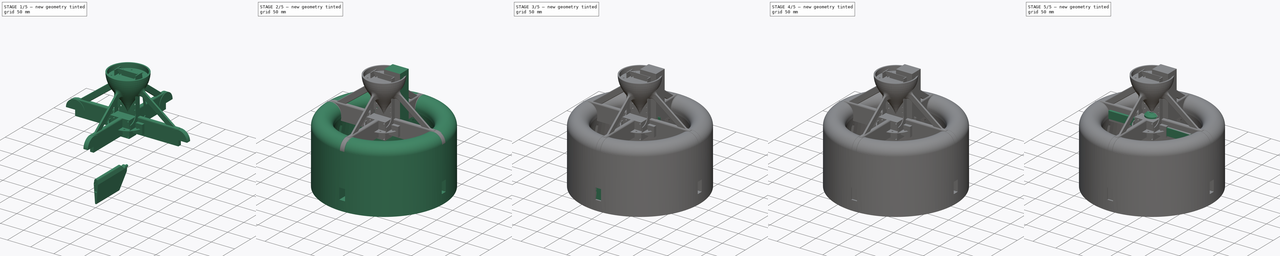
[diagram: build sequence overview — one tinted view per stage of 5, left to right]
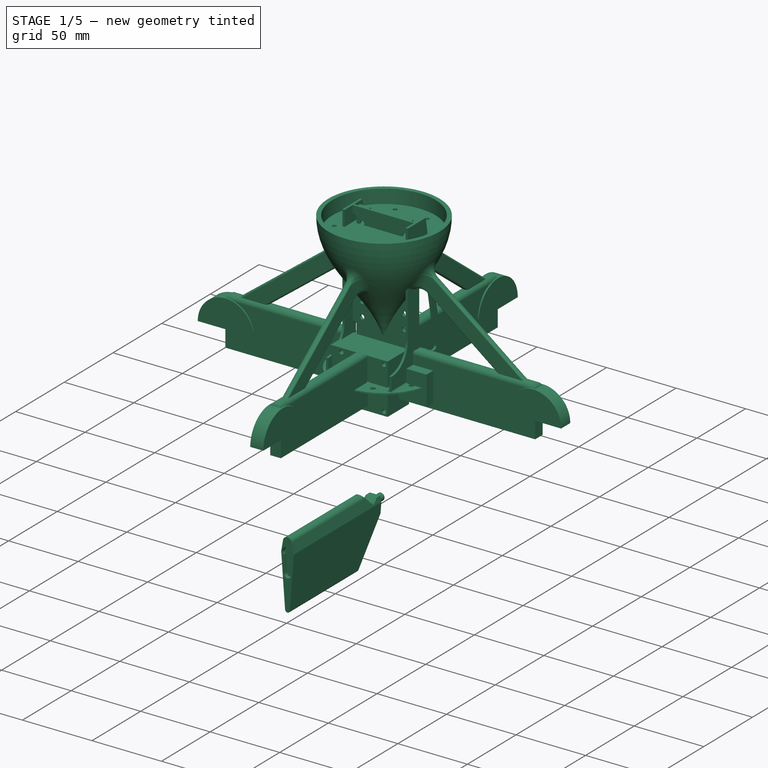
[diagram: stage 1 of 5 — iso view after this stage's code; geometry added in this stage tinted green]
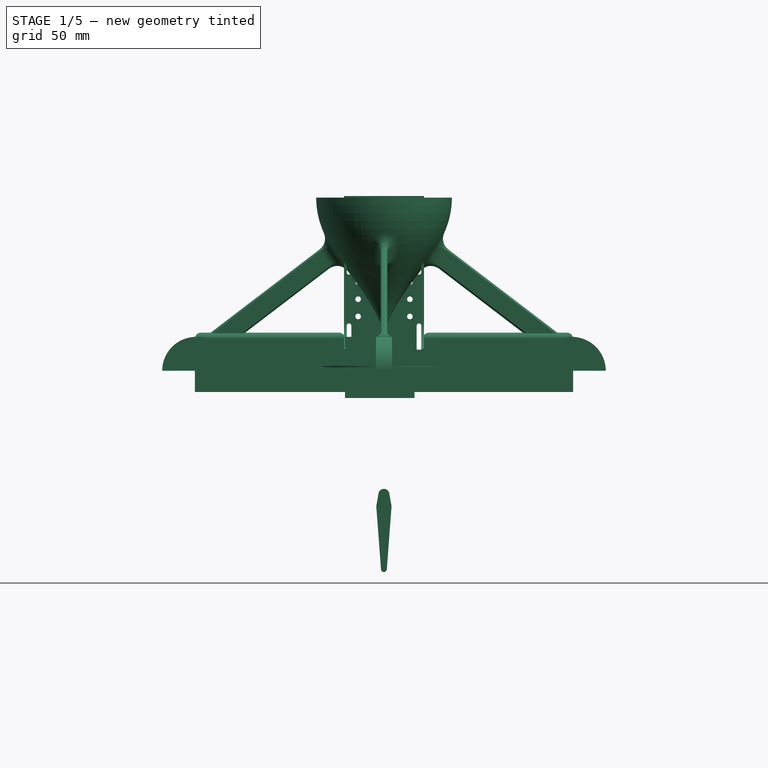
[diagram: stage 1 of 5 — front view after this stage's code; geometry added in this stage tinted green]
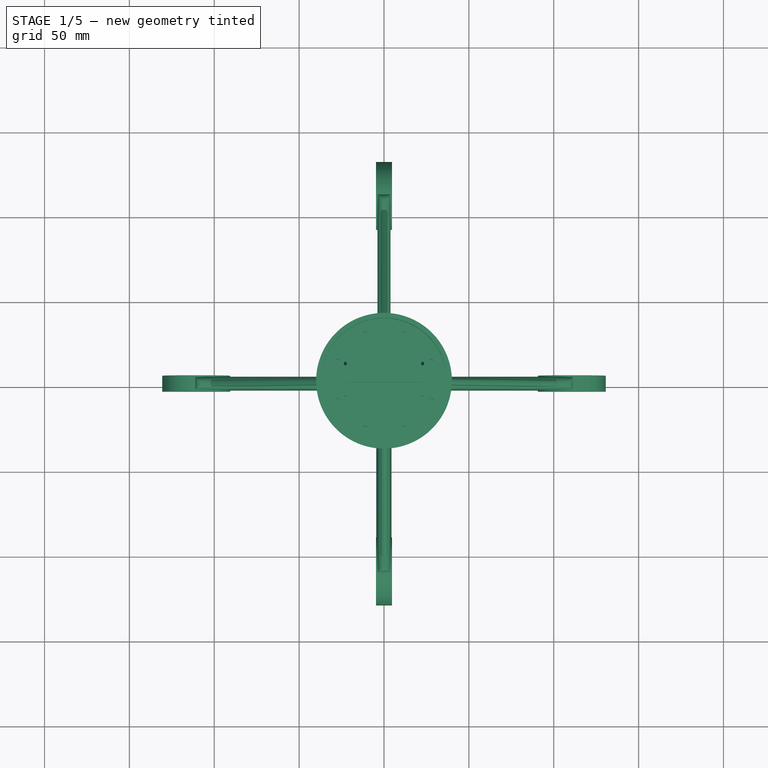
[diagram: stage 1 of 5 — top view after this stage's code; geometry added in this stage tinted green]
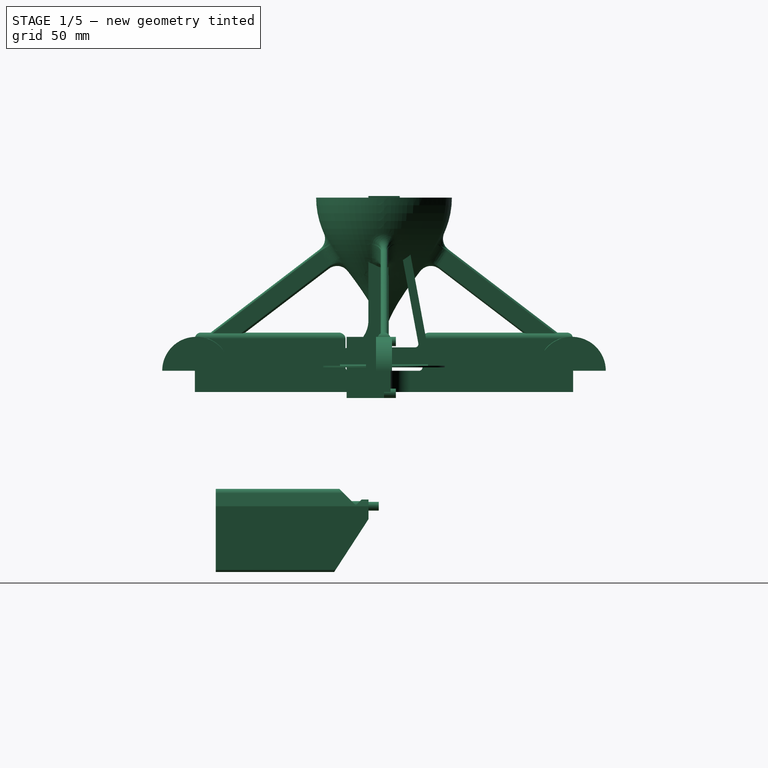
[diagram: stage 1 of 5 — right view after this stage's code; geometry added in this stage tinted green]
FCSTD DOCUMENT  (FreeCAD 0.18R16155 (Git))
Label: simple_duct
License: All rights reserved
LicenseURL: http://en.wikipedia.org/wiki/All_rights_reserved
objects: Sketcher::SketchObject×47, Part::MultiFuse×32, Part::Cylinder×32, Part::Box×29, PartDesign::Pad×20, PartDesign::Pocket×19, Part::Cut×16, PartDesign::Body×15, App::Part×15, PartDesign::PolarPattern×10, PartDesign::Fillet×10, PartDesign::ShapeBinder×4, PartDesign::Revolution×3, PartDesign::Hole×3, PartDesign::FeatureBase×1, PartDesign::AdditivePipe×1, Part::Part2DObjectPython×1, PartDesign::Plane×1, Part::Feature×1
note: 291 computed .brp shape members not serialized (recipe doc carries the construction recipe); baked Part::Feature solids carry a one-line shape summary decoded from their .brp

FEATURE [PartDesign::Body] Body001
  Group = -> [Sketch001,Revolution001]
  Origin = -> Origin003
  Tip = -> Revolution001
FEATURE [App::Part] Part001  label="motor_housing"
  Group = -> [Body001]
  License = CC BY 3.0
  LicenseURL = http://creativecommons.org/licenses/by/3.0/
  Origin = -> Origin002
FEATURE [Sketcher::SketchObject] Sketch002
  MapMode = 5
  Support = -> [XY_Plane005]
  expr: Constraints[59] = 41.8 / 2 - Constraints.arm_width / 2mm
  expr: Constraints[43] = Constraints.arm_width
  expr: Constraints[12] = Constraints.hold_dia
  expr: Constraints[11] = Constraints.hold_dia
  expr: Constraints[10] = Constraints.hold_dia
  sketch-geometry (40):
    g0: Circle CenterX=0 CenterY=0 CenterZ=0 NormalX=0 NormalY=0 NormalZ=1 AngleXU=0 Radius=5
    g1: Circle [constr] CenterX=0 CenterY=0 CenterZ=0 NormalX=0 NormalY=0 NormalZ=1 AngleXU=0 Radius=16.5
    g2: Circle CenterX=0 CenterY=16.5 CenterZ=0 NormalX=0 NormalY=0 NormalZ=1 AngleXU=0 Radius=1.5
    g3: Circle CenterX=16.5 CenterY=0 CenterZ=0 NormalX=0 NormalY=0 NormalZ=1 AngleXU=0 Radius=1.5
    g4: Circle CenterX=0 CenterY=-16.5 CenterZ=0 NormalX=0 NormalY=0 NormalZ=1 AngleXU=0 Radius=1.5
    g5: Circle CenterX=-16.5 CenterY=0 CenterZ=0 NormalX=0 NormalY=0 NormalZ=1 AngleXU=0 Radius=1.5
    g6: Circle [constr] CenterX=0 CenterY=0 CenterZ=0 NormalX=0 NormalY=0 NormalZ=1 AngleXU=0 Radius=17
    g7: LineSegment [constr] StartX=-16.5466 StartY=-3.9 StartZ=0 EndX=16.5466 EndY=-3.9 EndZ=0
    g8: LineSegment [constr] StartX=16.5466 StartY=-3.9 StartZ=0 EndX=16.5466 EndY=3.9 EndZ=0
    g9: LineSegment [constr] StartX=16.5466 StartY=3.9 StartZ=0 EndX=-16.5466 EndY=3.9 EndZ=0
    g10: LineSegment [constr] StartX=-16.5466 StartY=3.9 StartZ=0 EndX=-16.5466 EndY=-3.9 EndZ=0
    g11: GeomPoint X=-16.5466 Y=0 Z=0
    g12: LineSegment [constr] StartX=-3.9 StartY=-16.5466 StartZ=0 EndX=3.9 EndY=-16.5466 EndZ=0
    g13: LineSegment [constr] StartX=3.9 StartY=-16.5466 StartZ=0 EndX=3.9 EndY=16.5466 EndZ=0
    g14: LineSegment [constr] StartX=3.9 StartY=16.5466 StartZ=0 EndX=-3.9 EndY=16.5466 EndZ=0
    g15: LineSegment [constr] StartX=-3.9 StartY=16.5466 StartZ=0 EndX=-3.9 EndY=-16.5466 EndZ=0
    g16: GeomPoint X=0 Y=16.5466 Z=0
    g17: ArcOfCircle CenterX=-16.5466 CenterY=0 CenterZ=0 NormalX=0 NormalY=0 NormalZ=1 AngleXU=0 Radius=3.9 StartAngle=1.5708 EndAngle=4.71239
    g18: GeomPoint X=16.5466 Y=0 Z=0
    g19: GeomPoint X=0 Y=-16.5466 Z=0
    g20: ArcOfCircle CenterX=0 CenterY=-16.5466 CenterZ=0 NormalX=0 NormalY=0 NormalZ=1 AngleXU=0 Radius=3.9 StartAngle=3.14159 EndAngle=6.28319
    g21: ArcOfCircle CenterX=16.5466 CenterY=0 CenterZ=0 NormalX=0 NormalY=0 NormalZ=1 AngleXU=0 Radius=3.9 StartAngle=4.71239 EndAngle=7.85398
    g22: ArcOfCircle CenterX=0 CenterY=16.5466 CenterZ=0 NormalX=0 NormalY=0 NormalZ=1 AngleXU=0 Radius=3.9 StartAngle=0 EndAngle=3.14159
    g23: LineSegment StartX=16.5466 StartY=3.9 StartZ=0 EndX=9.19239 EndY=3.9 EndZ=0
    g24: LineSegment StartX=16.5466 StartY=-3.9 StartZ=0 EndX=9.19239 EndY=-3.9 EndZ=0
    g25: LineSegment StartX=3.9 StartY=-16.5466 StartZ=0 EndX=3.9 EndY=-9.19239 EndZ=0
    g26: LineSegment StartX=-3.9 StartY=-16.5466 StartZ=0 EndX=-3.9 EndY=-9.19239 EndZ=0
    g27: LineSegment StartX=-16.5466 StartY=-3.9 StartZ=0 EndX=-9.19239 EndY=-3.9 EndZ=0
    g28: LineSegment StartX=-16.5466 StartY=3.9 StartZ=0 EndX=-9.19239 EndY=3.9 EndZ=0
    g29: LineSegment StartX=-3.9 StartY=16.5466 StartZ=0 EndX=-3.9 EndY=9.19239 EndZ=0
    g30: LineSegment StartX=3.9 StartY=16.5466 StartZ=0 EndX=3.9 EndY=9.19239 EndZ=0
    g31: ArcOfCircle CenterX=9.19239 CenterY=9.19239 CenterZ=0 NormalX=0 NormalY=0 NormalZ=1 AngleXU=0 Radius=5.29239 StartAngle=3.14159 EndAngle=4.71239
    g32: ArcOfCircle CenterX=9.19239 CenterY=-9.19239 CenterZ=0 NormalX=0 NormalY=0 NormalZ=1 AngleXU=0 Radius=5.29239 StartAngle=1.5708 EndAngle=3.14159
    g33: ArcOfCircle CenterX=-9.19239 CenterY=-9.19239 CenterZ=0 NormalX=0 NormalY=0 NormalZ=1 AngleXU=0 Radius=5.29239 StartAngle=0 EndAngle=1.5708
    g34: ArcOfCircle CenterX=-9.19239 CenterY=9.19239 CenterZ=0 NormalX=0 NormalY=0 NormalZ=1 AngleXU=0 Radius=5.29239 StartAngle=4.71239 EndAngle=6.28319
    g35: Circle [constr] CenterX=0 CenterY=0 CenterZ=0 NormalX=0 NormalY=0 NormalZ=1 AngleXU=0 Radius=13
    g36: LineSegment [constr] StartX=-9.19239 StartY=9.19239 StartZ=0 EndX=9.19239 EndY=9.19239 EndZ=0
    g37: LineSegment [constr] StartX=9.19239 StartY=9.19239 StartZ=0 EndX=9.19239 EndY=-9.19239 EndZ=0
    g38: LineSegment [constr] StartX=9.19239 StartY=-9.19239 StartZ=0 EndX=-9.19239 EndY=-9.19239 EndZ=0
    g39: LineSegment [constr] StartX=-9.19239 StartY=-9.19239 StartZ=0 EndX=-9.19239 EndY=9.19239 EndZ=0
  constraints (100):
    c: Coincident(g0,g-1)
    c: Radius(g0) = 5
    c: Coincident(g1,g-1)
    c: Radius(g1) = 16.5  'mount_hole_radius'
    c: PointOnObject(g2,g1)
    c: Vertical(g2,g-1)
    c: PointOnObject(g3,g1)
    c: PointOnObject(g4,g1)
    c: PointOnObject(g5,g1)
    c: Radius(g2) = 1.5  'hold_dia'
    c: Radius(g3) = 1.5
    c: Radius(g4) = 1.5
    c: Radius(g5) = 1.5
    c: Vertical(g-1,g4)
    c: Horizontal(g3,g-1)
    c: Horizontal(g5,g-1)
    c: Coincident(g6,g-1)
    c: Coincident(g7,g8)
    c: Coincident(g8,g9)
    c: Coincident(g9,g10)
    c: Coincident(g10,g7)
    c: Horizontal(g7)
    c: Vertical(g8)
    c: Vertical(g10)
    c: PointOnObject(g7,g6)
    c: PointOnObject(g8,g6)
    c: PointOnObject(g11,g10)
    c: Symmetric(g9,g7,g11)
    c: Horizontal(g11,g-1)
    c: Coincident(g12,g13)
    c: Coincident(g13,g14)
    c: Coincident(g14,g15)
    c: Coincident(g15,g12)
    c: Horizontal(g12)
    c: Horizontal(g14)
    c: Vertical(g13)
    c: Vertical(g15)
    c: PointOnObject(g12,g6)
    c: PointOnObject(g16,g14)
    c: PointOnObject(g13,g6)
    c: Symmetric(g14,g13,g16)
    c: Vertical(g16,g-1)
    c: DistanceY(g10,g10) = 7.8  'arm_width'
    c: DistanceX(g14,g14) = 7.8
    c: Coincident(g17,g11)
    c: Coincident(g17,g7)
    c: Coincident(g17,g9)
    c: PointOnObject(g18,g8)
    c: Symmetric(g7,g8,g18)
    c: Symmetric(g12,g12,g19)
    c: Coincident(g20,g19)
    c: Coincident(g20,g12)
    c: Coincident(g20,g12)
    c: Coincident(g21,g18)
    c: Coincident(g21,g7)
    c: Coincident(g21,g8)
    c: Coincident(g22,g16)
    c: Coincident(g22,g13)
    c: Coincident(g22,g14)
    c: Radius(g6) = 17
    c: Coincident(g23,g8)
    c: Horizontal(g23)
    c: Coincident(g24,g7)
    c: Coincident(g25,g12)
    c: Vertical(g25)
    c: Coincident(g26,g12)
    c: Vertical(g26)
    c: Coincident(g27,g7)
    c: Coincident(g28,g9)
    c: Coincident(g29,g14)
    c: Vertical(g29)
    c: Coincident(g30,g13)
    c: Vertical(g30)
    c: Tangent(g23,g31) = 1.5708
    c: Tangent(g30,g31) = -1.5708
    c: Tangent(g24,g32) = -1.5708
    c: Tangent(g25,g32) = 1.5708
    c: Tangent(g26,g33) = -1.5708
    c: Tangent(g27,g33) = 1.5708
    c: Tangent(g28,g34) = -1.5708
    c: Tangent(g29,g34) = 1.5708
    c: Coincident(g35,g-1)
    c: PointOnObject(g31,g35)
    c: PointOnObject(g32,g35)
    c: PointOnObject(g33,g35)
    c: PointOnObject(g34,g35)
    c: Coincident(g36,g37)
    c: Coincident(g37,g38)
    c: Coincident(g38,g39)
    c: Coincident(g39,g36)
    c: Horizontal(g36)
    c: Horizontal(g38)
    c: Vertical(g37)
    c: Vertical(g39)
    c: Coincident(g36,g34)
    c: Coincident(g37,g32)
    c: Coincident(g31,g36)
    c: Coincident(g38,g33)
    c: Equal(g36,g37)
    c: Radius(g35) = 13
FEATURE [PartDesign::Pad] Pad
  Length = 2
  Length2 = 100
  Profile = -> Sketch002
  Reversed = true
  Type = 0
FEATURE [Sketcher::SketchObject] Sketch006
  MapMode = 5
  Placement = pos=(0,0,-2) rot=(1,0,0;3.14159rad)
  Support = -> [Pad]
  expr: Constraints[46] = Constraints.frame_leg_len
  expr: Constraints[45] = Constraints.frame_leg_len
  expr: Constraints[44] = Constraints.frame_leg_len
  sketch-geometry (23):
    g0: Circle [constr] CenterX=0 CenterY=0 CenterZ=0 NormalX=0 NormalY=0 NormalZ=1 AngleXU=0 Radius=22
    g1: LineSegment StartX=-111.4 StartY=-3.8 StartZ=0 EndX=-15.5563 EndY=-3.8 EndZ=0
    g2: LineSegment StartX=111.4 StartY=-3.8 StartZ=0 EndX=111.4 EndY=3.8 EndZ=0
    g3: LineSegment StartX=111.4 StartY=3.8 StartZ=0 EndX=15.5563 EndY=3.8 EndZ=0
    g4: LineSegment StartX=-111.4 StartY=3.8 StartZ=0 EndX=-111.4 EndY=-3.8 EndZ=0
    g5: LineSegment StartX=-3.8 StartY=111.4 StartZ=0 EndX=3.8 EndY=111.4 EndZ=0
    g6: LineSegment StartX=3.8 StartY=111.4 StartZ=0 EndX=3.8 EndY=15.5563 EndZ=0
    g7: LineSegment StartX=3.8 StartY=-111.4 StartZ=0 EndX=-3.8 EndY=-111.4 EndZ=0
    g8: LineSegment StartX=-3.8 StartY=-111.4 StartZ=0 EndX=-3.8 EndY=-15.5563 EndZ=0
    g9: Circle [constr] CenterX=0 CenterY=0 CenterZ=0 NormalX=0 NormalY=0 NormalZ=1 AngleXU=0 Radius=3.8
    g10: ArcOfCircle CenterX=15.5563 CenterY=15.5563 CenterZ=0 NormalX=0 NormalY=0 NormalZ=1 AngleXU=0 Radius=11.7563 StartAngle=3.14159 EndAngle=4.71239
    g11: ArcOfCircle CenterX=-15.5563 CenterY=-15.5563 CenterZ=0 NormalX=0 NormalY=0 NormalZ=1 AngleXU=0 Radius=11.7563 StartAngle=-1.03e-13 EndAngle=1.5708
    g12: LineSegment StartX=3.8 StartY=-111.4 StartZ=0 EndX=3.8 EndY=-15.5563 EndZ=0
    g13: LineSegment StartX=111.4 StartY=-3.8 StartZ=0 EndX=15.5563 EndY=-3.8 EndZ=0
    g14: LineSegment StartX=-111.4 StartY=3.8 StartZ=0 EndX=-15.5563 EndY=3.8 EndZ=0
    g15: LineSegment StartX=-3.8 StartY=111.4 StartZ=0 EndX=-3.8 EndY=15.5563 EndZ=0
    g16: ArcOfCircle CenterX=15.5563 CenterY=-15.5563 CenterZ=0 NormalX=0 NormalY=0 NormalZ=1 AngleXU=0 Radius=11.7563 StartAngle=1.5708 EndAngle=3.14159
    g17: ArcOfCircle CenterX=-15.5563 CenterY=15.5563 CenterZ=0 NormalX=0 NormalY=0 NormalZ=1 AngleXU=0 Radius=11.7563 StartAngle=4.71239 EndAngle=6.28319
    g18: Circle CenterX=-16.5 CenterY=0 CenterZ=0 NormalX=0 NormalY=0 NormalZ=1 AngleXU=0 Radius=1.6
    g19: Circle [constr] CenterX=0 CenterY=0 CenterZ=0 NormalX=0 NormalY=0 NormalZ=1 AngleXU=0 Radius=16.5
    g20: Circle CenterX=0 CenterY=-16.5 CenterZ=0 NormalX=0 NormalY=0 NormalZ=1 AngleXU=0 Radius=1.6
    g21: Circle CenterX=16.5 CenterY=0 CenterZ=0 NormalX=0 NormalY=0 NormalZ=1 AngleXU=0 Radius=1.6
    g22: Circle CenterX=0 CenterY=16.5 CenterZ=0 NormalX=0 NormalY=0 NormalZ=1 AngleXU=0 Radius=1.6
  constraints (62):
    c: Coincident(g0,g-1)
    c: Coincident(g2,g3)
    c: Coincident(g4,g1)
    c: Horizontal(g1)
    c: Horizontal(g3)
    c: Vertical(g2)
    c: Vertical(g4)
    c: Coincident(g5,g6)
    c: Coincident(g7,g8)
    c: Horizontal(g5)
    c: Horizontal(g7)
    c: Vertical(g6)
    c: Vertical(g8)
    c: Coincident(g9,g-1)
    c: Tangent(g6,g9)
    c: Tangent(g9,g8)
    c: Tangent(g1,g9)
    c: Tangent(g3,g9)
    c: Tangent(g3,g10) = 1.5708
    c: Tangent(g6,g10) = -1.5708
    c: PointOnObject(g10,g0)
    c: Radius(g0) = 22  'fillet_construct'
    c: Tangent(g8,g11) = -1.5708
    c: Tangent(g1,g11) = 1.5708
    c: PointOnObject(g11,g0)
    c: Coincident(g12,g7)
    c: Vertical(g12)
    c: Coincident(g13,g2)
    c: Horizontal(g13)
    c: Coincident(g14,g4)
    c: Horizontal(g14)
    c: Coincident(g15,g5)
    c: Vertical(g15)
    c: Tangent(g13,g16) = -1.5708
    c: Tangent(g12,g16) = 1.5708
    c: Tangent(g14,g17) = -1.5708
    c: Tangent(g15,g17) = 1.5708
    c: PointOnObject(g17,g0)
    c: PointOnObject(g16,g0)
    c: Tangent(g13,g9)
    c: Tangent(g14,g9)
    c: Tangent(g15,g9)
    c: Tangent(g12,g9)
    c: DistanceY(g7,g-1) = 111.4  'frame_leg_len'
    c: DistanceX(g4,g-1) = 111.4
    c: DistanceX(g-1,g2) = 111.4
    c: DistanceY(g-1,g5) = 111.4
    c: PointOnObject(g18,g-1)
    c: Coincident(g19,g-1)
    c: PointOnObject(g18,g19)
    c: Radius(g19) = 16.5
    c: Diameter(g18) = 3.2
    c: Equal(g18,g20) = 3.2
    c: PointOnObject(g20,g19)
    c: PointOnObject(g20,g-2)
    c: Equal(g18,g21) = 3.2
    c: PointOnObject(g21,g19)
    c: PointOnObject(g21,g-1)
    c: Equal(g18,g22) = 3.2
    c: PointOnObject(g22,g19)
    c: PointOnObject(g22,g-2)
    c: Diameter(g9) = 7.6
FEATURE [PartDesign::Pad] Pad003
  Length = 45
  Length2 = 100
  Midplane = true
  Profile = -> Sketch006
  Type = 0
FEATURE [PartDesign::ShapeBinder] CopyFusion010
  Placement = pos=(-0.05,-128.5,-81.8) rot=(0.57735,-0.57735,-0.57735;4.18879rad)
  TraceSupport = false
FEATURE [Sketcher::SketchObject] Sketch008
  MapMode = 5
  Placement = pos=(-0.05,-99.1,-81.8) rot=(0.57735,-0.57735,-0.57735;4.18879rad)
  Support = -> [CopyFusion010]
  sketch-geometry (15):
    g0: LineSegment [constr] StartX=-7 StartY=-4.5 StartZ=0 EndX=37.05 EndY=-4.5 EndZ=0
    g1: LineSegment [constr] StartX=37.05 StartY=-4.5 StartZ=0 EndX=37.05 EndY=4.5 EndZ=0
    g2: LineSegment [constr] StartX=37.05 StartY=4.5 StartZ=0 EndX=-7 EndY=4.5 EndZ=0
    g3: LineSegment [constr] StartX=-7 StartY=4.5 StartZ=0 EndX=-7 EndY=-4.5 EndZ=0
    g4: GeomPoint X=15.025 Y=0 Z=0
    g5: GeomPoint X=-7 Y=0 Z=0
    g6: GeomPoint X=37.05 Y=0 Z=0
    g7: LineSegment StartX=0 StartY=-4.5 StartZ=0 EndX=-7.55512 EndY=-3.18194 EndZ=0
    g8: LineSegment StartX=-7.55512 StartY=3.18194 StartZ=0 EndX=0 EndY=4.5 EndZ=0
    g9: ArcOfCircle CenterX=-7 CenterY=0 CenterZ=0 NormalX=0 NormalY=0 NormalZ=1 AngleXU=0 Radius=3.23 StartAngle=1.74352 EndAngle=4.53967
    g10: LineSegment StartX=0 StartY=-4.5 StartZ=0 EndX=37.1785 EndY=-1.7152 EndZ=0
    g11: LineSegment StartX=37.1785 StartY=1.7152 StartZ=0 EndX=0 EndY=4.5 EndZ=0
    g12: ArcOfCircle CenterX=37.05 CenterY=0 CenterZ=0 NormalX=0 NormalY=0 NormalZ=1 AngleXU=0 Radius=1.72 StartAngle=4.78715 EndAngle=7.77922
    g13: GeomPoint X=-10.23 Y=0 Z=0
    g14: GeomPoint X=38.77 Y=0 Z=0
  constraints (35):
    c: Coincident(g0,g1)
    c: Coincident(g1,g2)
    c: Coincident(g2,g3)
    c: Coincident(g3,g0)
    c: Horizontal(g0)
    c: Horizontal(g2)
    c: Vertical(g1)
    c: Vertical(g3)
    c: PointOnObject(g4,g-1)
    c: Symmetric(g2,g0,g4)
    c: PointOnObject(g8,g2)
    c: PointOnObject(g7,g0)
    c: Vertical(g7,g-1)
    c: Vertical(g8,g-1)
    c: PointOnObject(g5,g3)
    c: PointOnObject(g6,g1)
    c: Horizontal(g5,g-1)
    c: Horizontal(g6,g5)
    c: Tangent(g7,g9) = 1.5708
    c: Tangent(g8,g9) = 1.5708
    c: Coincident(g5,g9)
    c: Coincident(g10,g7)
    c: Coincident(g11,g8)
    c: Tangent(g10,g12) = -1.5708
    c: Tangent(g11,g12) = -1.5708
    c: Coincident(g6,g12)
    c: DistanceY(g7,g8) = 9
    c: PointOnObject(g13,g9)
    c: PointOnObject(g13,g-1)
    c: PointOnObject(g14,g-1)
    c: PointOnObject(g14,g12)
    c: DistanceX(g13,g14) = 49
    c: DistanceX(g13,g-1) = 10.23
    c: DistanceX(g5,g-1) = 7
    c: DistanceX(g-1,g6) = 37.05
FEATURE [PartDesign::Pad] Pad004
  Length = 90
  Length2 = 100
  Placement = pos=(-0.05,-128.5,-81.8) rot=(0.57735,-0.57735,-0.57735;4.18879rad)
  Profile = -> Sketch008
  Type = 0
FEATURE [PartDesign::Body] Body009  label="Body014"
  Group = -> [CopyFusion013,Sketch011,Pad007]
  Origin = -> Origin021
  Tip = -> Pad007
FEATURE [App::Part] Part011  label="servo005"
  Group = -> [Fusion036,Cylinder036,Cut018,Fusion038,Box031,Box032,Cylinder033,Fusion035,Fusion039,Cut019,Fusion040,Box033,Box034,Fusion041,Box030,Cylinder032,Cylinder039,Cut016,Cylinder038,Cylinder037,Box029,Cylinder034,Cut017,Cylinder035,Box028,Fusion037,Fusion042,Body009]
  License = CC BY 3.0
  LicenseURL = http://creativecommons.org/licenses/by/3.0/
  Origin = -> Origin020
  Placement = pos=(0,0,0) rot=(0,0,1;4.71239rad)
FEATURE [Sketcher::SketchObject] Sketch012
  MapMode = 5
  Placement = pos=(0,0,0) rot=(1,0,0;1.5708rad)
  Support = -> [XZ_Plane023]
  expr: Constraints[19] = 0.4 * Constraints.cone_height
  expr: Constraints[17] = 0.4 * Constraints.cone_height
  expr: Constraints[16] = 0.25 * Constraints.base_radius
  expr: Constraints[15] = Constraints.base_radius
  sketch-geometry (13):
    g0: LineSegment [constr] StartX=0 StartY=20 StartZ=0 EndX=0 EndY=100 EndZ=0
    g1: LineSegment [constr] StartX=0 StartY=100 StartZ=0 EndX=40 EndY=100 EndZ=0
    g2-g5: Circle [constr] x4 (B-spline internal-alignment scaffolding for g6; pole/knot coordinates omitted)
    g6: BSplineCurve PolesCount=4 KnotsCount=2 Degree=3 IsPeriodic=0
    g7: GeomPoint [constr] X=0 Y=20 Z=0
    g8: GeomPoint [constr] X=40 Y=100 Z=0
    g9: LineSegment StartX=0 StartY=20 StartZ=0 EndX=0 EndY=90 EndZ=0
    g10: LineSegment StartX=0 StartY=90 StartZ=0 EndX=37 EndY=90 EndZ=0
    g11: LineSegment StartX=37 StartY=90 StartZ=0 EndX=37 EndY=100 EndZ=0
    g12: LineSegment StartX=37 StartY=100 StartZ=0 EndX=40 EndY=100 EndZ=0
  constraints (31):
    c: PointOnObject(g0,g-2)
    c: Coincident(g1,g0)
    c: Horizontal(g1)
    c: Radius(g2) = 10
    c: Equal(g2,g3)
    c: Equal(g2,g4)
    c: Equal(g2,g5)
    c: Coincident(g6,g1)
    c: InternalAlignment(g2-g5 -> g6) x4
    c: InternalAlignment(g7,g6)
    c: InternalAlignment(g8,g6)
    c: DistanceX(g1,g1) = 40  'base_radius'
    c: DistanceX(g0,g4) = 40
    c: DistanceX(g0,g3) = 10
    c: DistanceY(g0,g3) = 32
    c: DistanceY(g0,g0) = 80  'cone_height'
    c: DistanceY(g4,g1) = 32
    c: Coincident(g6,g0)
    c: Vertical(g0)
    c: DistanceY(g-1,g0) = 20  'cone_offset_bottom'
    c: Vertical(g9)
    c: Tangent(g9,g3)
    c: Coincident(g10,g9)
    c: Horizontal(g10)
    c: Coincident(g11,g10)
    c: Coincident(g12,g6)
    c: Horizontal(g12)
    c: Coincident(g12,g11)
    c: Vertical(g11)
    c: DistanceY(g9,g0) = 10  'cone_hole_depth'
    c: DistanceX(g10,g10) = 37  'payload_radii'
FEATURE [PartDesign::Revolution] Revolution002
  Angle = 360
  Axis = (0,-2e-16,1)
  Base = (0,0,0)
  Placement = pos=(0,0,0) rot=(1,0,0;1.5708rad)
  Profile = -> Sketch012
  ReferenceAxis = -> Sketch012 [V_Axis]
  Reversed = true
FEATURE [PartDesign::Body] Body011  label="Body016"
  BaseFeature = -> Box035
  Group = -> [BaseFeature]
  Origin = -> Origin025
  Tip = -> BaseFeature
FEATURE [App::Part] Part013  label="battery_3300mAh_3S1P"
  Group = -> [Body011,Box035]
  Origin = -> Origin024
  Placement = pos=(-21.6,7.2,93) rot=(0,0,1;0rad)
FEATURE [Sketcher::SketchObject] Sketch014
  MapMode = 5
  Placement = pos=(0,0,0) rot=(1,0,0;1.5708rad)
  Support = -> [XZ_Plane023]
  expr: Constraints[9] = Sketch012.Constraints.cone_height - Sketch012.Constraints.cone_hole_depth + Sketch012.Constraints.cone_offset_bottom
  sketch-geometry (4):
    g0: LineSegment StartX=108.026 StartY=0 StartZ=0 EndX=123.026 EndY=0 EndZ=0
    g1: LineSegment StartX=123.026 StartY=0 StartZ=0 EndX=30.1066 EndY=90 EndZ=0
    g2: LineSegment StartX=30.1066 StartY=90 StartZ=0 EndX=15.1066 EndY=90 EndZ=0
    g3: LineSegment StartX=15.1066 StartY=90 StartZ=0 EndX=108.026 EndY=0 EndZ=0
  constraints (10):
    c: PointOnObject(g0,g-1)
    c: Horizontal(g0)
    c: Coincident(g0,g1)
    c: Coincident(g1,g2)
    c: Horizontal(g2)
    c: Coincident(g2,g3)
    c: Coincident(g3,g0)
    c: Equal(g0,g2)
    c: DistanceX(g0,g0) = 15
    c: DistanceY(g-1,g2) = 90
FEATURE [Sketcher::SketchObject] Sketch015
  MapMode = 5
  Placement = pos=(0,0,0) rot=(1,0,0;1.5708rad)
  Support = -> [XZ_Plane023]
  expr: Constraints[1] = Sketch012.Constraints.cone_height - Sketch012.Constraints.cone_hole_depth + Sketch012.Constraints.cone_offset_bottom
  sketch-geometry (1):
    g0: LineSegment StartX=0.241352 StartY=90 StartZ=0 EndX=118.177 EndY=0 EndZ=0
  constraints (2):
    c: PointOnObject(g0,g-1)
    c: DistanceY(g-1,g0) = 90
FEATURE [Sketcher::SketchObject] Sketch016
  MapMode = 5
  Support = -> [XY_Plane023]
  sketch-geometry (4):
    g0: ArcOfCircle CenterX=110.641 CenterY=0 CenterZ=0 NormalX=0 NormalY=0 NormalZ=1 AngleXU=0 Radius=1.9877 StartAngle=1.5708 EndAngle=4.71239
    g1: ArcOfCircle CenterX=127.021 CenterY=0 CenterZ=0 NormalX=0 NormalY=0 NormalZ=1 AngleXU=0 Radius=1.9877 StartAngle=4.71239 EndAngle=7.85398
    g2: LineSegment StartX=110.641 StartY=-1.9877 StartZ=0 EndX=127.021 EndY=-1.9877 EndZ=0
    g3: LineSegment StartX=110.641 StartY=1.9877 StartZ=0 EndX=127.021 EndY=1.9877 EndZ=0
  constraints (8):
    c: Tangent(g0,g3) = 1.5708
    c: Tangent(g0,g2) = -1.5708
    c: Tangent(g2,g1) = -1.5708
    c: Tangent(g3,g1) = 1.5708
    c: Horizontal(g2)
    c: Equal(g0,g1)
    c: PointOnObject(g0,g-1)
    c: DistanceX(g0,g1) = 16.38
FEATURE [PartDesign::AdditivePipe] AdditivePipe
  AuxilleryCurvelinear = true
  AuxillerySpineTangent = false
  BaseFeature = -> Revolution002
  Binormal = (0,0,0)
  Mode = 0
  Placement = pos=(0,0,0) rot=(1,0,0;1.5708rad)
  Profile = -> Sketch016
  Spine = -> Sketch015
  SpineTangent = false
  Transformation = 0
  Transition = 0
FEATURE [PartDesign::PolarPattern] PolarPattern
  Angle = 360
  Axis = -> Sketch016 [N_Axis]
  BaseFeature = -> AdditivePipe
  Occurrences = 4
  Originals = -> [AdditivePipe]
  Placement = pos=(0,0,0) rot=(1,0,0;1.5708rad)
FEATURE [PartDesign::Fillet] Fillet002
  Base = -> PolarPattern [Edge3,Edge17,Edge11,Edge19]
  BaseFeature = -> PolarPattern
  Placement = pos=(0,0,0) rot=(1,0,0;1.5708rad)
  Radius = 8
FEATURE [PartDesign::Body] Body
  Group = -> [Sketch,Revolution,Sketch017,Pocket001,PolarPattern001,Sketch018,Pocket002,PolarPattern002,Sketch019,Pocket003,PolarPattern003,Sketch020,Pocket004,PolarPattern004,Sketch021,Pocket005,PolarPattern005]
  Origin = -> Origin001
  Tip = -> PolarPattern005
FEATURE [App::Part] Part  label="duct"
  Group = -> [Body]
  License = CC BY 3.0
  LicenseURL = http://creativecommons.org/licenses/by/3.0/
  Origin = -> Origin
FEATURE [Sketcher::SketchObject] Sketch022
  MapMode = 5
  Placement = pos=(0,0,0) rot=(1,0,0;1.5708rad)
  Support = -> [XZ_Plane023]
  expr: Constraints[8] = Sketch.Constraints.radii_from_center_to_center_of_lip
  expr: Constraints[2] = Sketch.Constraints.lip_radii
  sketch-geometry (3):
    g0: LineSegment StartX=90.678 StartY=-2 StartZ=0 EndX=130.678 EndY=-2 EndZ=0
    g1: ArcOfCircle CenterX=110.678 CenterY=-2 CenterZ=0 NormalX=0 NormalY=0 NormalZ=1 AngleXU=0 Radius=20 StartAngle=0 EndAngle=3.14159
    g2: GeomPoint X=110.678 Y=0 Z=0
  constraints (9):
    c: Coincident(g1,g0)
    c: Coincident(g1,g0)
    c: Radius(g1) = 20
    c: Horizontal(g0)
    c: PointOnObject(g1,g0)
    c: PointOnObject(g2,g-1)
    c: Vertical(g2,g1)
    c: DistanceY(g1,g2) = 2
    c: DistanceX(g-1,g1) = 110.678
FEATURE [PartDesign::Pad] Pad008
  BaseFeature = -> Fillet002
  Length = 9.4
  Length2 = 100
  Midplane = true
  Placement = pos=(0,0,0) rot=(1,0,0;1.5708rad)
  Profile = -> Sketch022
  Type = 0
FEATURE [PartDesign::PolarPattern] PolarPattern006
  Angle = 360
  Axis = -> Z_Axis023
  BaseFeature = -> Pad008
  Occurrences = 4
  Originals = -> [Pad008]
  Placement = pos=(0,0,0) rot=(1,0,0;1.5708rad)
FEATURE [PartDesign::Fillet] Fillet003
  Base = -> PolarPattern006 [Edge76,Edge96,Edge84,Edge88]
  BaseFeature = -> PolarPattern006
  Placement = pos=(0,0,0) rot=(1,0,0;1.5708rad)
  Radius = 3
FEATURE [Sketcher::SketchObject] Sketch023
  MapMode = 5
  Placement = pos=(0,0,-24.5) rot=(1,0,0;3.14159rad)
  sketch-geometry (4):
    g0: LineSegment StartX=-112 StartY=112 StartZ=0 EndX=112 EndY=112 EndZ=0
    g1: LineSegment StartX=112 StartY=112 StartZ=0 EndX=112 EndY=-112 EndZ=0
    g2: LineSegment StartX=112 StartY=-112 StartZ=0 EndX=-112 EndY=-112 EndZ=0
    g3: LineSegment StartX=-112 StartY=-112 StartZ=0 EndX=-112 EndY=112 EndZ=0
  constraints (9):
    c: Coincident(g0,g1)
    c: Coincident(g1,g2)
    c: Coincident(g2,g3)
    c: Coincident(g3,g0)
    c: Horizontal(g0)
    c: Horizontal(g2)
    c: Vertical(g1)
    c: Vertical(g3)
    c: Symmetric(g0,g2,g-1)
FEATURE [PartDesign::Pocket] Pocket006
  BaseFeature = -> Pad003
  Length = 10
  Length2 = 100
  Profile = -> Sketch023
  Type = 0
FEATURE [Sketcher::SketchObject] Sketch025
  MapMode = 5
  Placement = pos=(0,0,20.5) rot=(0,0,1;0rad)
  sketch-geometry (1):
    g0: Circle CenterX=0 CenterY=0 CenterZ=0 NormalX=0 NormalY=0 NormalZ=1 AngleXU=0 Radius=23
  constraints (2):
    c: Coincident(g0,g-1)
    c: Radius(g0) = 23
FEATURE [PartDesign::Pocket] Pocket007
  BaseFeature = -> Pocket006
  Length = 22.5
  Length2 = 100
  Profile = -> Sketch025
  Type = 0
FEATURE [Sketcher::SketchObject] Sketch027
  ExternalGeometry = -> [Pad004]
  MapMode = 5
  Placement = pos=(0,0,0) rot=(0.57735,0.57735,0.57735;2.0944rad)
  Support = -> [YZ_Plane015]
  sketch-geometry (14):
    g0: LineSegment StartX=-9.1 StartY=-139.355 StartZ=0 EndX=-41.5704 EndY=-139.355 EndZ=0
    g1: LineSegment StartX=-41.5704 StartY=-139.355 StartZ=0 EndX=-9.1 EndY=-89.3551 EndZ=0
    g2: LineSegment StartX=-9.1 StartY=-139.355 StartZ=0 EndX=-9.1 EndY=-89.3551 EndZ=0
    g3: LineSegment [constr] StartX=-9.1 StartY=-81.8 StartZ=0 EndX=-9.1 EndY=-89.3551 EndZ=0
    g4: LineSegment [constr] StartX=-9.1 StartY=-81.8 StartZ=0 EndX=40.9 EndY=-81.8 EndZ=0
    g5: LineSegment StartX=-9.1 StartY=-27.8 StartZ=0 EndX=-70.1 EndY=-27.8 EndZ=0
    g6: LineSegment StartX=-9.1 StartY=-27.8 StartZ=0 EndX=-9.1 EndY=-77.8 EndZ=0
    g7: LineSegment [constr] StartX=-9.1 StartY=-81.8 StartZ=0 EndX=-9.1 EndY=-74.2449 EndZ=0
    g8: LineSegment StartX=-14.1 StartY=-78.8 StartZ=0 EndX=-19.1 EndY=-78.8 EndZ=0
    g9: LineSegment StartX=-19.1 StartY=-78.8 StartZ=0 EndX=-70.1 EndY=-27.8 EndZ=0
    g10: LineSegment StartX=-14.1 StartY=-78.8 StartZ=0 EndX=-13.1 EndY=-77.8 EndZ=0
    g11: LineSegment StartX=-13.1 StartY=-77.8 StartZ=0 EndX=-9.1 EndY=-77.8 EndZ=0
    g12: GeomPoint X=-16.6 Y=-78.8 Z=0
    g13: GeomPoint X=-14.1 Y=-71.8 Z=0
  constraints (38):
    c: Horizontal(g0)
    c: Coincident(g2,g0)
    c: PointOnObject(g2,g-4)
    c: Vertical(g2)
    c: Coincident(g1,g2)
    c: Coincident(g0,g1)
    c: DistanceY(g-3,g-3) = 7.55512  'dist_to_tip_center'
    c: Coincident(g3,g1)
    c: Angle(g1,g2) = 0.575959
    c: DistanceY(g2,g2) = 50
    c: Horizontal(g4)
    c: Horizontal(g5)
    c: Coincident(g6,g5)
    c: Vertical(g6)
    c: Equal(g2,g6)
    c: Equal(g2,g4)
    c: Coincident(g3,g7)
    c: Coincident(g3,g4)
    c: Coincident(g3,g-3)
    c: Equal(g7,g3)
    c: Horizontal(g8)
    c: Coincident(g8,g9)
    c: Coincident(g8,g10)
    c: Coincident(g10,g11)
    c: Horizontal(g11)
    c: Coincident(g11,g6)
    c: Coincident(g9,g5)
    c: Coincident(g7,g-3)
    c: Angle(g10,g8) = 2.35619
    c: DistanceX(g8,g8) = 5
    c: Angle(g8,g9) = 2.35619
    c: Symmetric(g8,g8,g12)
    c: DistanceX(g12,g6) = 7.5
    c: PointOnObject(g6,g-4)
    c: Vertical(g13,g8)
    c: DistanceY(g8,g13) = 7
    c: DistanceY(g3,g8) = 3
    c: DistanceY(g3,g6) = 4
FEATURE [PartDesign::Pocket] Pocket
  BaseFeature = -> Pad004
  Length = 5
  Length2 = 100
  Midplane = true
  Placement = pos=(-0.05,-128.5,-81.8) rot=(0.57735,-0.57735,-0.57735;4.18879rad)
  Profile = -> Sketch027
  Type = 1
FEATURE [Sketcher::SketchObject] Sketch028
  MapMode = 5
  Placement = pos=(-0.05,-9.1,-81.8) rot=(0.57735,-0.57735,-0.57735;4.18879rad)
  Support = -> [Pocket]
  sketch-geometry (1):
    g0: Circle CenterX=0 CenterY=0 CenterZ=0 NormalX=0 NormalY=0 NormalZ=1 AngleXU=0 Radius=2.6
  constraints (2):
    c: Coincident(g0,g-1)
    c: Diameter(g0) = 5.2
FEATURE [PartDesign::Pad] Pad011
  BaseFeature = -> Pocket
  Length = 6
  Length2 = 100
  Placement = pos=(-0.05,-128.5,-81.8) rot=(0.57735,-0.57735,-0.57735;4.18879rad)
  Profile = -> Sketch028
  Type = 0
FEATURE [PartDesign::Body] Body014  label="Body018"
  Group = -> [DatumPlane,Sketch034,Pad013,Sketch035,Pocket012,Sketch036,Pocket013,PolarPattern007,Sketch037,Hole,Fillet009]
  Origin = -> Origin031
  Tip = -> Fillet009
FEATURE [App::Part] Part015  label="frame_bottom_cap"
  Group = -> [Body014]
  Origin = -> Origin030
FEATURE [Part::Feature] Servo_Arm_HXT900_Micro
  Placement = pos=(-5.6,-94.4,-81.8) rot=(0,0.707107,0.707107;3.14159rad)
  shape: bbox 7.223 x 4.191 x 19.64 mm, 28 faces, 0 solids (baked)
FEATURE [PartDesign::Fillet] Fillet
  Base = -> Pocket007 [Edge15,Edge28,Edge36,Edge23]
  BaseFeature = -> Pocket007
  Radius = 2
FEATURE [PartDesign::Fillet] Fillet010
  Base = -> Fillet [Face32,Face24,Face29,Face35]
  BaseFeature = -> Fillet
  Radius = 3.6
FEATURE [PartDesign::Body] Body005  label="Body006"
  Group = -> [Sketch006,Pad003,Sketch023,Pocket006,Sketch025,Pocket007,Fillet,Fillet010]
  Origin = -> Origin012
  Tip = -> Fillet010
FEATURE [App::Part] Part006  label="frame"
  Group = -> [Body005]
  License = CC BY 3.0
  LicenseURL = http://creativecommons.org/licenses/by/3.0/
  Origin = -> Origin011
  Placement = pos=(0,0,-45.5) rot=(0,0,1;0rad)
FEATURE [Sketcher::SketchObject] Sketch038
  MapMode = 5
  Placement = pos=(-0.05,-99.1,-81.8) rot=(0.57735,0.57735,-0.57735;2.0944rad)
  Support = -> [Pad011]
  sketch-geometry (13):
    g0: Circle [constr] CenterX=0 CenterY=0 CenterZ=0 NormalX=0 NormalY=0 NormalZ=1 AngleXU=0 Radius=3.75
    g1: Circle [constr] CenterX=14 CenterY=0 CenterZ=0 NormalX=0 NormalY=0 NormalZ=1 AngleXU=0 Radius=2.5
    g2: Circle [constr] CenterX=0 CenterY=0 CenterZ=0 NormalX=0 NormalY=0 NormalZ=1 AngleXU=0 Radius=3.3
    g3: LineSegment [constr] StartX=0.188567 StartY=3.29461 StartZ=0 EndX=14.1428 EndY=2.49592 EndZ=0
    g4: LineSegment [constr] StartX=14.1428 StartY=-2.49592 StartZ=0 EndX=0.188567 EndY=-3.29461 EndZ=0
    g5: GeomPoint X=1.96681 Y=3.19283 Z=0
    g6: GeomPoint X=1.96681 Y=-3.19283 Z=0
    g7: ArcOfCircle CenterX=0 CenterY=0 CenterZ=0 NormalX=0 NormalY=0 NormalZ=1 AngleXU=0 Radius=3.75 StartAngle=1.01869 EndAngle=5.2645
    g8: ArcOfCircle CenterX=14 CenterY=0 CenterZ=0 NormalX=0 NormalY=0 NormalZ=1 AngleXU=0 Radius=2.5 StartAngle=4.76956 EndAngle=7.79681
    g9: LineSegment StartX=1.96681 StartY=3.19283 StartZ=0 EndX=14.1428 EndY=2.49592 EndZ=0
    g10: LineSegment StartX=14.1428 StartY=-2.49592 StartZ=0 EndX=1.96681 EndY=-3.19283 EndZ=0
    g11: GeomPoint X=-3.75 Y=0 Z=0
    g12: GeomPoint X=16.5 Y=0 Z=0
  constraints (32):
    c: Coincident(g0,g-1)
    c: PointOnObject(g1,g-1)
    c: Coincident(g2,g0)
    c: Tangent(g4,g2)
    c: Tangent(g3,g2)
    c: Tangent(g4,g1)
    c: Tangent(g3,g1)
    c: PointOnObject(g5,g3)
    c: PointOnObject(g6,g4)
    c: PointOnObject(g6,g0)
    c: DistanceX(g0,g1) = 14
    c: Coincident(g7,g-1)
    c: Coincident(g7,g5)
    c: Coincident(g7,g6)
    c: Coincident(g8,g1)
    c: Coincident(g8,g3)
    c: Coincident(g8,g4)
    c: Coincident(g9,g5)
    c: Coincident(g9,g8)
    c: Coincident(g10,g8)
    c: Coincident(g10,g6)
    c: Diameter(g2) = 6.6
    c: Diameter(g0) = 7.5
    c: Diameter(g1) = 5
    c: PointOnObject(g3,g2)
    c: PointOnObject(g4,g2)
    c: PointOnObject(g8,g1)
    c: PointOnObject(g12,g8)
    c: PointOnObject(g12,g-1)
    c: PointOnObject(g11,g-1)
    c: DistanceX(g11,g12) = 20.25
    c: PointOnObject(g11,g7)
FEATURE [PartDesign::Pocket] Pocket014
  BaseFeature = -> Pad011
  Length = 3
  Length2 = 100
  Placement = pos=(-0.05,-128.5,-81.8) rot=(0.57735,-0.57735,-0.57735;4.18879rad)
  Profile = -> Sketch038
  Type = 0
FEATURE [PartDesign::Fillet] Fillet011
  Base = -> Pocket014 [Edge4,Edge22]
  BaseFeature = -> Pocket014
  Placement = pos=(-0.05,-128.5,-81.8) rot=(0.57735,-0.57735,-0.57735;4.18879rad)
  Radius = 3
FEATURE [PartDesign::Body] Body006  label="Body008"
  Group = -> [CopyFusion010,Sketch008,Pad004,Sketch027,Pocket,Sketch028,Pad011,Sketch038,Pocket014,Fillet011]
  Origin = -> Origin015
  Tip = -> Fillet011
FEATURE [App::Part] Part007  label="servo1"
  Group = -> [Fusion008,Cylinder004,Cut002,Fusion004,Box003,Box004,Cylinder002,Fusion005,Fusion,Cut003,Fusion003,Box005,Box006,Fusion009,Box001,Cylinder,Cylinder007,Cut,Cylinder006,Cylinder005,Box002,Cylinder001,Cut001,Cylinder003,Box,Fusion007,Fusion010,Body006,Servo_Arm_HXT900_Micro]
  License = CC BY 3.0
  LicenseURL = http://creativecommons.org/licenses/by/3.0/
  Origin = -> Origin013
FEATURE [Sketcher::SketchObject] Sketch039
  MapMode = 5
  Placement = pos=(0,0,90) rot=(0,0,1;3.14159rad)
  Support = -> [Fillet003]
  expr: Constraints[0] = Sketch052.Constraints.payload_mounting_radii
  sketch-geometry (2):
    g0: Circle CenterX=11.4805 CenterY=27.7164 CenterZ=0 NormalX=0 NormalY=0 NormalZ=1 AngleXU=0 Radius=1.5
    g1: LineSegment [constr] StartX=11.4805 StartY=27.7164 StartZ=0 EndX=0 EndY=0 EndZ=0
  constraints (5):
    c: Distance(g-1,g0) = 30
    c: Coincident(g1,g0)
    c: Coincident(g1,g-1)
    c: Angle(g1,g-2) = 0.392699
    c: Diameter(g0) = 3
FEATURE [Sketcher::SketchObject] Sketch040
  MapMode = 5
  Placement = pos=(0,0,0) rot=(1,0,0;1.5708rad)
  Support = -> [XZ_Plane033]
  sketch-geometry (14):
    g0: LineSegment [constr] StartX=-15.25 StartY=15.25 StartZ=0 EndX=15.25 EndY=15.25 EndZ=0
    g1: LineSegment [constr] StartX=15.25 StartY=15.25 StartZ=0 EndX=15.25 EndY=-15.25 EndZ=0
    g2: LineSegment [constr] StartX=15.25 StartY=-15.25 StartZ=0 EndX=-15.25 EndY=-15.25 EndZ=0
    g3: LineSegment [constr] StartX=-15.25 StartY=-15.25 StartZ=0 EndX=-15.25 EndY=15.25 EndZ=0
    g4: Circle CenterX=15.25 CenterY=15.25 CenterZ=0 NormalX=0 NormalY=0 NormalZ=1 AngleXU=0 Radius=1.5
    g5: Circle CenterX=15.25 CenterY=-15.25 CenterZ=0 NormalX=0 NormalY=0 NormalZ=1 AngleXU=0 Radius=1.5
    g6: Circle CenterX=-15.25 CenterY=-15.25 CenterZ=0 NormalX=0 NormalY=0 NormalZ=1 AngleXU=0 Radius=1.5
    g7: Circle CenterX=-15.25 CenterY=15.25 CenterZ=0 NormalX=0 NormalY=0 NormalZ=1 AngleXU=0 Radius=1.5
    g8: LineSegment StartX=-23 StartY=18 StartZ=0 EndX=18 EndY=18 EndZ=0
    g9: LineSegment StartX=18 StartY=18 StartZ=0 EndX=18 EndY=-18 EndZ=0
    g10: LineSegment StartX=18 StartY=-18 StartZ=0 EndX=-23 EndY=-18 EndZ=0
    g11: LineSegment StartX=-23 StartY=-18 StartZ=0 EndX=-23 EndY=18 EndZ=0
    g12: GeomPoint X=18 Y=0 Z=0
    g13: LineSegment [constr] StartX=0 StartY=0 StartZ=0 EndX=15.25 EndY=15.25 EndZ=0
  constraints (34):
    c: Coincident(g0,g1)
    c: Coincident(g1,g2)
    c: Coincident(g2,g3)
    c: Coincident(g3,g0)
    c: Horizontal(g0)
    c: Horizontal(g2)
    c: Vertical(g1)
    c: Vertical(g3)
    c: Symmetric(g0,g2,g-1)
    c: DistanceY(g1,g1) = 30.5
    c: Equal(g0,g1)
    c: Coincident(g4,g0)
    c: Diameter(g4) = 3
    c: Equal(g4,g5) = 6
    c: Coincident(g5,g1)
    c: Equal(g4,g6) = 6
    c: Coincident(g6,g2)
    c: Equal(g4,g7) = 6
    c: Coincident(g7,g0)
    c: Coincident(g8,g9)
    c: Coincident(g9,g10)
    c: Coincident(g10,g11)
    c: Coincident(g11,g8)
    c: Horizontal(g8)
    c: Horizontal(g10)
    c: Vertical(g9)
    c: Vertical(g11)
    c: DistanceY(g9,g9) = 36
    c: PointOnObject(g12,g-1)
    c: Symmetric(g9,g8,g12)
    c: Coincident(g13,g-1)
    c: Coincident(g13,g4)
    c: PointOnObject(g8,g13)
    c: DistanceX(g10,g10) = 41
FEATURE [PartDesign::Pad] Pad014
  Length = 22
  Length2 = 100
  Placement = pos=(0,0,0) rot=(1,0,0;1.5708rad)
  Profile = -> Sketch040
  Type = 0
FEATURE [Sketcher::SketchObject] Sketch041
  ExternalGeometry = -> [Pad014]
  MapMode = 5
  Placement = pos=(0,0,0) rot=(-1,0,0;1.5708rad)
  Support = -> [Pad014]
  sketch-geometry (4):
    g0: Circle CenterX=15.25 CenterY=15.25 CenterZ=0 NormalX=0 NormalY=0 NormalZ=1 AngleXU=0 Radius=2.75
    g1: Circle CenterX=15.25 CenterY=-15.25 CenterZ=0 NormalX=0 NormalY=0 NormalZ=1 AngleXU=0 Radius=2.75
    g2: Circle CenterX=-15.25 CenterY=-15.25 CenterZ=0 NormalX=0 NormalY=0 NormalZ=1 AngleXU=0 Radius=2.75
    g3: Circle CenterX=-15.25 CenterY=15.25 CenterZ=0 NormalX=0 NormalY=0 NormalZ=1 AngleXU=0 Radius=2.75
  constraints (8):
    c: Coincident(g0,g-3)
    c: Tangent(g0,g-8)
    c: Coincident(g1,g-6)
    c: Coincident(g2,g-5)
    c: Coincident(g3,g-4)
    c: Tangent(g2,g-9)
    c: Tangent(g1,g-9)
    c: Tangent(g3,g-7)
FEATURE [PartDesign::Pad] Pad015
  BaseFeature = -> Pad014
  Length = 7
  Length2 = 100
  Placement = pos=(0,0,0) rot=(1,0,0;1.5708rad)
  Profile = -> Sketch041
  Type = 0
FEATURE [Sketcher::SketchObject] Sketch042
  MapMode = 5
  Placement = pos=(18,0,0) rot=(0.707107,0,0.707107;3.14159rad)
  Support = -> [Pad015]
  sketch-geometry (5):
    g0: LineSegment StartX=-10.5 StartY=10.6 StartZ=0 EndX=10.5 EndY=10.6 EndZ=0
    g1: LineSegment StartX=10.5 StartY=10.6 StartZ=0 EndX=10.5 EndY=1.6 EndZ=0
    g2: LineSegment StartX=10.5 StartY=1.6 StartZ=0 EndX=-10.5 EndY=1.6 EndZ=0
    g3: LineSegment StartX=-10.5 StartY=1.6 StartZ=0 EndX=-10.5 EndY=10.6 EndZ=0
    g4: GeomPoint X=0 Y=6.1 Z=0
  constraints (13):
    c: Coincident(g0,g1)
    c: Coincident(g1,g2)
    c: Coincident(g2,g3)
    c: Coincident(g3,g0)
    c: Horizontal(g0)
    c: Horizontal(g2)
    c: Vertical(g1)
    c: Vertical(g3)
    c: DistanceY(g-1,g1) = 1.6
    c: DistanceY(g1,g1) = 9
    c: DistanceX(g0,g0) = 21
    c: PointOnObject(g4,g-2)
    c: Symmetric(g0,g2,g4)
FEATURE [PartDesign::Pad] Pad016
  BaseFeature = -> Pad015
  Length = 20
  Length2 = 100
  Placement = pos=(0,0,0) rot=(1,0,0;1.5708rad)
  Profile = -> Sketch042
  Type = 0
FEATURE [Sketcher::SketchObject] Sketch043
  ExternalGeometry = -> [Pad016]
  MapMode = 5
  Placement = pos=(-23,0,0) rot=(0.707107,0,-0.707107;3.14159rad)
  Support = -> [Pad016]
  sketch-geometry (6):
    g0: Circle CenterX=-11.5 CenterY=2 CenterZ=0 NormalX=0 NormalY=0 NormalZ=1 AngleXU=0 Radius=1.5
    g1: Circle CenterX=-7.5 CenterY=2 CenterZ=0 NormalX=0 NormalY=0 NormalZ=1 AngleXU=0 Radius=1.5
    g2: Circle CenterX=7.5 CenterY=2 CenterZ=0 NormalX=0 NormalY=0 NormalZ=1 AngleXU=0 Radius=1.5
    g3: Circle CenterX=11.5 CenterY=2 CenterZ=0 NormalX=0 NormalY=0 NormalZ=1 AngleXU=0 Radius=1.5
    g4: LineSegment [constr] StartX=-18 StartY=2 StartZ=0 EndX=18 EndY=2 EndZ=0
    g5: GeomPoint X=0 Y=2 Z=0
  constraints (17):
    c: Diameter(g0) = 3
    c: Equal(g0,g1) = 3
    c: Equal(g0,g2) = 3
    c: Equal(g0,g3) = 3
    c: PointOnObject(g4,g-3)
    c: PointOnObject(g4,g-4)
    c: Horizontal(g4)
    c: PointOnObject(g3,g4)
    c: PointOnObject(g2,g4)
    c: PointOnObject(g0,g4)
    c: PointOnObject(g1,g4)
    c: DistanceX(g0,g1) = 4
    c: DistanceX(g2,g3) = 4
    c: DistanceX(g1,g2) = 15
    c: PointOnObject(g5,g-2)
    c: Symmetric(g2,g1,g5)
    c: DistanceY(g-4,g4) = 2
FEATURE [PartDesign::Pad] Pad017
  BaseFeature = -> Pad016
  Length = 10
  Length2 = 100
  Placement = pos=(0,0,0) rot=(1,0,0;1.5708rad)
  Profile = -> Sketch043
  Type = 0
FEATURE [Sketcher::SketchObject] Sketch044
  MapMode = 5
  Placement = pos=(0,-22,4.8e-15) rot=(1,0,0;1.5708rad)
  Support = -> [Pad017]
  sketch-geometry (5):
    g0: LineSegment StartX=-4.10688 StartY=-4.71994 StartZ=0 EndX=7.24077 EndY=0 EndZ=0
    g1: LineSegment StartX=7.24077 StartY=0 StartZ=0 EndX=-4.10688 EndY=4.71994 EndZ=0
    g2: GeomPoint X=-4.10688 Y=0 Z=0
    g3: LineSegment StartX=0 StartY=0 StartZ=0 EndX=-4.10688 EndY=-4.71994 EndZ=0
    g4: LineSegment StartX=0 StartY=0 StartZ=0 EndX=-4.10688 EndY=4.71994 EndZ=0
  constraints (9):
    c: PointOnObject(g0,g-1)
    c: Coincident(g1,g0)
    c: Vertical(g1,g0)
    c: PointOnObject(g2,g-1)
    c: Symmetric(g1,g0,g2)
    c: Coincident(g3,g-1)
    c: Coincident(g3,g0)
    c: Coincident(g4,g3)
    c: Coincident(g4,g1)
FEATURE [PartDesign::Pocket] Pocket016
  BaseFeature = -> Pad017
  Length = 1
  Length2 = 100
  Placement = pos=(0,0,0) rot=(1,0,0;1.5708rad)
  Profile = -> Sketch044
  Type = 0
FEATURE [PartDesign::Body] Body015  label="Body019"
  Group = -> [Sketch040,Pad014,Sketch041,Pad015,Sketch042,Pad016,Sketch043,Pad017,Sketch044,Pocket016]
  Origin = -> Origin033
  Tip = -> Pocket016
FEATURE [App::Part] Part016  label="flight_controller"
  Group = -> [Body015]
  Origin = -> Origin032
  Placement = pos=(-5.6e-15,-9,155) rot=(0,1,0;1.5708rad)
FEATURE [Sketcher::SketchObject] Sketch045
  MapMode = 5
  Support = -> [XY_Plane027]
  expr: Constraints[1] = Sketch012.Constraints.payload_radii - 1mm
  sketch-geometry (1):
    g0: Circle CenterX=0 CenterY=0 CenterZ=0 NormalX=0 NormalY=0 NormalZ=1 AngleXU=0 Radius=36
  constraints (2):
    c: Coincident(g0,g-1)
    c: Radius(g0) = 36
FEATURE [PartDesign::Pocket] Pocket015
  BaseFeature = -> Fillet003
  Length = 10
  Length2 = 100
  Placement = pos=(0,0,0) rot=(1,0,0;1.5708rad)
  Profile = -> Sketch039
  Type = 0
FEATURE [PartDesign::Pad] Pad019
  Length = 1
  Length2 = 100
  Profile = -> Sketch045
  Type = 0
FEATURE [Sketcher::SketchObject] Sketch046
  ExternalGeometry = -> [Pad019]
  MapMode = 5
  Placement = pos=(0,0,1) rot=(0,0,1;0rad)
  Support = -> [Pad019]
  expr: Constraints[18] = Sketch012.Constraints.payload_radii - 2mm
  sketch-geometry (20):
    g0: LineSegment [constr] StartX=-21.9475 StartY=0.8 StartZ=0 EndX=21.9475 EndY=0.8 EndZ=0
    g1: LineSegment [constr] StartX=21.9475 StartY=0.8 StartZ=0 EndX=21.9475 EndY=-0.8 EndZ=0
    g2: LineSegment [constr] StartX=21.9475 StartY=-0.8 StartZ=0 EndX=-21.9475 EndY=-0.8 EndZ=0
    g3: LineSegment [constr] StartX=-21.9475 StartY=-0.8 StartZ=0 EndX=-21.9475 EndY=0.8 EndZ=0
    g4: LineSegment [constr] StartX=23.5475 StartY=25.8943 StartZ=0 EndX=-23.5475 EndY=25.8943 EndZ=0
    g5: LineSegment [constr] StartX=-23.5475 StartY=25.8943 StartZ=0 EndX=-23.5475 EndY=-25.8943 EndZ=0
    g6: LineSegment [constr] StartX=-23.5475 StartY=-25.8943 StartZ=0 EndX=23.5475 EndY=-25.8943 EndZ=0
    g7: LineSegment [constr] StartX=23.5475 StartY=-25.8943 StartZ=0 EndX=23.5475 EndY=25.8943 EndZ=0
    g8: LineSegment StartX=21.9475 StartY=-0.8 StartZ=0 EndX=21.9475 EndY=-25.8943 EndZ=0
    g9: LineSegment StartX=21.9475 StartY=-25.8943 StartZ=0 EndX=23.5475 EndY=-25.8943 EndZ=0
    g10: LineSegment StartX=23.5475 StartY=-25.8943 StartZ=0 EndX=23.5475 EndY=25.8943 EndZ=0
    g11: LineSegment StartX=23.5475 StartY=25.8943 StartZ=0 EndX=21.9475 EndY=25.8943 EndZ=0
    g12: LineSegment StartX=21.9475 StartY=25.8943 StartZ=0 EndX=21.9475 EndY=0.8 EndZ=0
    g13: LineSegment StartX=21.9475 StartY=0.8 StartZ=0 EndX=-21.9475 EndY=0.8 EndZ=0
    g14: LineSegment StartX=-21.9475 StartY=0.8 StartZ=0 EndX=-21.9475 EndY=25.8943 EndZ=0
    g15: LineSegment StartX=-23.5475 StartY=25.8943 StartZ=0 EndX=-21.9475 EndY=25.8943 EndZ=0
    g16: LineSegment StartX=-23.5475 StartY=25.8943 StartZ=0 EndX=-23.5475 EndY=-25.8943 EndZ=0
    g17: LineSegment StartX=-23.5475 StartY=-25.8943 StartZ=0 EndX=-21.9475 EndY=-25.8943 EndZ=0
    g18: LineSegment StartX=-21.9475 StartY=-25.8943 StartZ=0 EndX=-21.9475 EndY=-0.8 EndZ=0
    g19: LineSegment StartX=-21.9475 StartY=-0.8 StartZ=0 EndX=21.9475 EndY=-0.8 EndZ=0
  constraints (49):
    c: Coincident(g0,g1)
    c: Coincident(g1,g2)
    c: Coincident(g2,g3)
    c: Coincident(g3,g0)
    c: Horizontal(g0)
    c: Horizontal(g2)
    c: Vertical(g1)
    c: Vertical(g3)
    c: Symmetric(g0,g2,g-1)
    c: Coincident(g4,g5)
    c: Coincident(g5,g6)
    c: Coincident(g6,g7)
    c: Coincident(g7,g4)
    c: Horizontal(g4)
    c: Horizontal(g6)
    c: Vertical(g5)
    c: Vertical(g7)
    c: Symmetric(g4,g5,g-1)
    c: Distance(g-1,g4) = 35
    c: Coincident(g8,g1)
    c: PointOnObject(g8,g6)
    c: Vertical(g8)
    c: Coincident(g9,g8)
    c: Coincident(g9,g6)
    c: Coincident(g9,g10)
    c: Coincident(g10,g4)
    c: Coincident(g10,g11)
    c: PointOnObject(g11,g4)
    c: Coincident(g11,g12)
    c: Coincident(g12,g0)
    c: Vertical(g12)
    c: Coincident(g12,g13)
    c: Coincident(g13,g0)
    c: Coincident(g13,g14)
    c: PointOnObject(g14,g4)
    c: Vertical(g14)
    c: Coincident(g15,g4)
    c: Coincident(g15,g14)
    c: Coincident(g16,g15)
    c: Coincident(g16,g5)
    c: Coincident(g17,g16)
    c: PointOnObject(g17,g6)
    c: Coincident(g18,g17)
    c: Coincident(g18,g2)
    c: Vertical(g18)
    c: Coincident(g19,g18)
    c: Coincident(g19,g8)
    c: Equal(g1,g9)
    c: DistanceY(g1,g1) = 1.6
FEATURE [PartDesign::Pad] Pad020
  BaseFeature = -> Pad019
  Length = 100
  Length2 = 100
  Profile = -> Sketch046
  Type = 0
FEATURE [Sketcher::SketchObject] Sketch047
  ExternalGeometry = -> [Pad020]
  MapMode = 5
  Placement = pos=(-23.5475,0,0) rot=(0.57735,-0.57735,-0.57735;2.0944rad)
  Support = -> [Pad020]
  sketch-geometry (20):
    g0: ArcOfCircle [constr] CenterX=25.8943 CenterY=27.7116 CenterZ=0 NormalX=0 NormalY=0 NormalZ=1 AngleXU=0 Radius=16.7116 StartAngle=3.14159 EndAngle=6.28319
    g1: ArcOfCircle [constr] CenterX=25.8943 CenterY=101 CenterZ=0 NormalX=0 NormalY=0 NormalZ=1 AngleXU=0 Radius=16.7116 StartAngle=2e-16 EndAngle=3.14159
    g2: LineSegment [constr] StartX=42.606 StartY=27.7116 StartZ=0 EndX=42.606 EndY=101 EndZ=0
    g3: LineSegment [constr] StartX=9.1827 StartY=27.7116 StartZ=0 EndX=9.1827 EndY=101 EndZ=0
    g4: GeomPoint X=25.8943 Y=11 Z=0
    g5: LineSegment StartX=-25.8943 StartY=101 StartZ=0 EndX=-9.1827 EndY=101 EndZ=0
    g6: LineSegment StartX=-9.1827 StartY=101 StartZ=0 EndX=-25.8943 EndY=11 EndZ=0
    g7: LineSegment StartX=-25.8943 StartY=11 StartZ=0 EndX=-25.8943 EndY=101 EndZ=0
    g8: LineSegment StartX=9.1827 StartY=101 StartZ=0 EndX=25.8943 EndY=101 EndZ=0
    g9: LineSegment StartX=25.8943 StartY=101 StartZ=0 EndX=25.8943 EndY=11 EndZ=0
    g10: ArcOfCircle CenterX=25.8943 CenterY=27.7116 CenterZ=0 NormalX=0 NormalY=0 NormalZ=1 AngleXU=0 Radius=16.7116 StartAngle=3.14159 EndAngle=4.71239
    g11: LineSegment StartX=9.1827 StartY=27.7116 StartZ=0 EndX=9.1827 EndY=101 EndZ=0
    g12: LineSegment StartX=-6.59692 StartY=87.538 StartZ=0 EndX=-20.2248 EndY=14.1454 EndZ=0
    g13: LineSegment StartX=-18.2584 StartY=11.7803 StartZ=0 EndX=-4.63053 EndY=11.7803 EndZ=0
    g14: LineSegment StartX=-2.63053 StartY=13.7803 StartZ=0 EndX=-2.63053 EndY=87.1729 EndZ=0
    g15: LineSegment [constr] StartX=-24.8132 StartY=16.8225 StartZ=0 EndX=-19.8972 EndY=15.9097 EndZ=0
    g16: ArcOfCircle CenterX=-18.2584 CenterY=13.7803 CenterZ=0 NormalX=0 NormalY=0 NormalZ=1 AngleXU=0 Radius=2 StartAngle=2.958 EndAngle=4.71239
    g17: ArcOfCircle CenterX=-4.63053 CenterY=13.7803 CenterZ=0 NormalX=0 NormalY=0 NormalZ=1 AngleXU=0 Radius=2 StartAngle=4.71239 EndAngle=6.28319
    g18: ArcOfCircle CenterX=-4.63053 CenterY=87.1729 CenterZ=0 NormalX=0 NormalY=0 NormalZ=1 AngleXU=0 Radius=2 StartAngle=3e-15 EndAngle=2.958
    g19: GeomPoint X=0 Y=101 Z=0
  constraints (43):
    c: Tangent(g0,g3) = 1.5708
    c: Tangent(g0,g2) = -1.5708
    c: Tangent(g2,g1) = -1.5708
    c: Tangent(g3,g1) = 1.5708
    c: Vertical(g2)
    c: Equal(g0,g1)
    c: Coincident(g1,g-4)
    c: PointOnObject(g4,g-4)
    c: DistanceY(g-4,g4) = 10
    c: Coincident(g5,g-5)
    c: PointOnObject(g5,g-3)
    c: Coincident(g6,g5)
    c: PointOnObject(g6,g-5)
    c: Coincident(g7,g6)
    c: Coincident(g7,g5)
    c: Horizontal(g4,g6)
    c: Coincident(g8,g1)
    c: Coincident(g8,g1)
    c: Coincident(g9,g8)
    c: Coincident(g9,g4)
    c: Coincident(g10,g0)
    c: Coincident(g10,g0)
    c: Coincident(g10,g4)
    c: Coincident(g11,g10)
    c: Coincident(g11,g8)
    c: Horizontal(g13)
    c: Vertical(g14)
    c: Parallel(g12,g6)
    c: PointOnObject(g15,g6)
    c: PointOnObject(g15,g12)
    c: Perpendicular(g12,g15)
    c: Distance(g15) = 5
    c: Tangent(g12,g16) = -1.5708
    c: Tangent(g13,g16) = -1.5708
    c: Tangent(g13,g17) = -1.5708
    c: Tangent(g14,g17) = -1.5708
    c: Tangent(g12,g18) = -1.5708
    c: Tangent(g14,g18) = -1.5708
    c: Equal(g17,g16)
    c: Equal(g17,g18)
    c: DistanceY(g13,g17) = 2
    c: PointOnObject(g19,g-2)
    c: Symmetric(g8,g5,g19)
FEATURE [PartDesign::Pocket] Pocket017
  BaseFeature = -> Pad020
  Length = 5
  Length2 = 100
  Profile = -> Sketch047
  Type = 1
FEATURE [Sketcher::SketchObject] Sketch048
  ExternalGeometry = -> [Pocket017]
  MapMode = 5
  Placement = pos=(0,0.8,0) rot=(0,0.707107,0.707107;3.14159rad)
  Support = -> [Pocket017]
  sketch-geometry (14):
    g0: LineSegment [constr] StartX=-15.25 StartY=82.7762 StartZ=0 EndX=15.25 EndY=82.7762 EndZ=0
    g1: LineSegment [constr] StartX=15.25 StartY=82.7762 StartZ=0 EndX=15.25 EndY=52.2762 EndZ=0
    g2: LineSegment [constr] StartX=15.25 StartY=52.2762 StartZ=0 EndX=-15.25 EndY=52.2762 EndZ=0
    g3: LineSegment [constr] StartX=-15.25 StartY=52.2762 StartZ=0 EndX=-15.25 EndY=82.7762 EndZ=0
    g4: GeomPoint X=-1e-16 Y=67.5262 Z=0
    g5: Circle [constr] CenterX=15.25 CenterY=82.7762 CenterZ=0 NormalX=0 NormalY=0 NormalZ=1 AngleXU=0 Radius=4
    g6: LineSegment StartX=11.25 StartY=101 StartZ=0 EndX=19.25 EndY=101 EndZ=0
    g7: LineSegment StartX=19.25 StartY=101 StartZ=0 EndX=19.25 EndY=1 EndZ=0
    g8: LineSegment StartX=19.25 StartY=1 StartZ=0 EndX=11.25 EndY=1 EndZ=0
    g9: LineSegment StartX=11.25 StartY=1 StartZ=0 EndX=11.25 EndY=101 EndZ=0
    g10: LineSegment StartX=-11.25 StartY=1 StartZ=0 EndX=-11.25 EndY=101 EndZ=0
    g11: LineSegment StartX=-11.25 StartY=101 StartZ=0 EndX=-19.25 EndY=101 EndZ=0
    g12: LineSegment StartX=-19.25 StartY=101 StartZ=0 EndX=-19.25 EndY=1 EndZ=0
    g13: LineSegment StartX=-19.25 StartY=1 StartZ=0 EndX=-11.25 EndY=1 EndZ=0
  constraints (35):
    c: Coincident(g0,g1)
    c: Coincident(g1,g2)
    c: Coincident(g2,g3)
    c: Coincident(g3,g0)
    c: Horizontal(g0)
    c: Horizontal(g2)
    c: Vertical(g1)
    c: Vertical(g3)
    c: PointOnObject(g4,g-2)
    c: Symmetric(g0,g2,g4)
    c: Coincident(g5,g0)
    c: Coincident(g6,g7)
    c: Coincident(g7,g8)
    c: Coincident(g8,g9)
    c: Coincident(g9,g6)
    c: Horizontal(g6)
    c: Horizontal(g8)
    c: Vertical(g7)
    c: Vertical(g9)
    c: PointOnObject(g6,g-3)
    c: PointOnObject(g7,g-4)
    c: Diameter(g5) = 8
    c: Tangent(g5,g7)
    c: Tangent(g9,g5)
    c: DistanceY(g1,g1) = 30.5
    c: Equal(g1,g0)
    c: Distance(g-3,g-3) = 43.8949
    c: Coincident(g11,g12)
    c: Coincident(g12,g13)
    c: Coincident(g13,g10)
    c: Coincident(g10,g11)
    c: Horizontal(g11)
    c: Horizontal(g13)
    c: Vertical(g12)
    c: Vertical(g10)
FEATURE [PartDesign::Pad] Pad021
  BaseFeature = -> Pocket017
  Length = 2
  Length2 = 100
  Profile = -> Sketch048
  Type = 0
FEATURE [Sketcher::SketchObject] Sketch049
  ExternalGeometry = -> [Pad021]
  MapMode = 5
  Placement = pos=(0,2.8,-6e-16) rot=(0,0.707107,0.707107;3.14159rad)
  Support = -> [Pad021]
  sketch-geometry (37):
    g0: LineSegment [constr] StartX=-15.25 StartY=91 StartZ=0 EndX=15.25 EndY=91 EndZ=0
    g1: LineSegment [constr] StartX=15.25 StartY=91 StartZ=0 EndX=15.25 EndY=60.5 EndZ=0
    g2: LineSegment [constr] StartX=15.25 StartY=60.5 StartZ=0 EndX=-15.25 EndY=60.5 EndZ=0
    g3: LineSegment [constr] StartX=-15.25 StartY=60.5 StartZ=0 EndX=-15.25 EndY=91 EndZ=0
    g4: GeomPoint X=0 Y=75.75 Z=0
    g5: Circle CenterX=15.25 CenterY=91 CenterZ=0 NormalX=0 NormalY=0 NormalZ=1 AngleXU=0 Radius=3.10285
    g6: Circle CenterX=-15.25 CenterY=91 CenterZ=0 NormalX=0 NormalY=0 NormalZ=1 AngleXU=0 Radius=2.13363
    g7: LineSegment [constr] StartX=-15.25 StartY=80.8333 StartZ=0 EndX=15.25 EndY=80.8333 EndZ=0
    g8: LineSegment [constr] StartX=15.25 StartY=80.8333 StartZ=0 EndX=15.25 EndY=50.3333 EndZ=0
    g9: LineSegment [constr] StartX=15.25 StartY=50.3333 StartZ=0 EndX=-15.25 EndY=50.3333 EndZ=0
    g10: LineSegment [constr] StartX=-15.25 StartY=50.3333 StartZ=0 EndX=-15.25 EndY=80.8333 EndZ=0
    g11: GeomPoint X=-3e-16 Y=65.5833 Z=0
    g12: Circle CenterX=15.25 CenterY=80.8333 CenterZ=0 NormalX=0 NormalY=0 NormalZ=1 AngleXU=0 Radius=3.10285
    g13: Circle CenterX=15.25 CenterY=50.3333 CenterZ=0 NormalX=0 NormalY=0 NormalZ=1 AngleXU=0 Radius=1.86102
    g14: Circle CenterX=-15.25 CenterY=50.3333 CenterZ=0 NormalX=0 NormalY=0 NormalZ=1 AngleXU=0 Radius=2.19211
    g15: Circle CenterX=-15.25 CenterY=80.8333 CenterZ=0 NormalX=0 NormalY=0 NormalZ=1 AngleXU=0 Radius=2.13363
    g16: LineSegment [constr] StartX=-15.25 StartY=91 StartZ=0 EndX=-15.25 EndY=80.8333 EndZ=0
    g17: LineSegment [constr] StartX=-15.25 StartY=70.6667 StartZ=0 EndX=15.25 EndY=70.6667 EndZ=0
    g18: LineSegment [constr] StartX=15.25 StartY=70.6667 StartZ=0 EndX=15.25 EndY=40.1667 EndZ=0
    g19: LineSegment [constr] StartX=15.25 StartY=40.1667 StartZ=0 EndX=-15.25 EndY=40.1667 EndZ=0
    g20: LineSegment [constr] StartX=-15.25 StartY=40.1667 StartZ=0 EndX=-15.25 EndY=70.6667 EndZ=0
    g21: GeomPoint X=2e-15 Y=55.4167 Z=0
    g22: Circle CenterX=15.25 CenterY=70.6667 CenterZ=0 NormalX=0 NormalY=0 NormalZ=1 AngleXU=0 Radius=3.10285
    g23: Circle CenterX=15.25 CenterY=40.1667 CenterZ=0 NormalX=0 NormalY=0 NormalZ=1 AngleXU=0 Radius=1.86102
    g24: Circle CenterX=-15.25 CenterY=40.1667 CenterZ=0 NormalX=0 NormalY=0 NormalZ=1 AngleXU=0 Radius=2.19211
    g25: Circle CenterX=-15.25 CenterY=70.6667 CenterZ=0 NormalX=0 NormalY=0 NormalZ=1 AngleXU=0 Radius=2.13363
    g26: LineSegment [constr] StartX=-15.25 StartY=80.8333 StartZ=0 EndX=-15.25 EndY=70.6667 EndZ=0
    g27: LineSegment [constr] StartX=-15.25 StartY=60.5 StartZ=0 EndX=15.25 EndY=60.5 EndZ=0
    g28: LineSegment [constr] StartX=15.25 StartY=60.5 StartZ=0 EndX=15.25 EndY=30 EndZ=0
    g29: LineSegment [constr] StartX=15.25 StartY=30 StartZ=0 EndX=-15.25 EndY=30 EndZ=0
    g30: LineSegment [constr] StartX=-15.25 StartY=30 StartZ=0 EndX=-15.25 EndY=60.5 EndZ=0
    g31: GeomPoint X=1.3e-15 Y=45.25 Z=0
    g32: Circle CenterX=15.25 CenterY=60.5 CenterZ=0 NormalX=0 NormalY=0 NormalZ=1 AngleXU=0 Radius=3.10285
    g33: Circle CenterX=15.25 CenterY=30 CenterZ=0 NormalX=0 NormalY=0 NormalZ=1 AngleXU=0 Radius=1.86102
    g34: Circle CenterX=-15.25 CenterY=30 CenterZ=0 NormalX=0 NormalY=0 NormalZ=1 AngleXU=0 Radius=2.19211
    g35: Circle CenterX=-15.25 CenterY=60.5 CenterZ=0 NormalX=0 NormalY=0 NormalZ=1 AngleXU=0 Radius=2.13363
    g36: LineSegment [constr] StartX=-15.25 StartY=70.6667 StartZ=0 EndX=-15.25 EndY=60.5 EndZ=0
  constraints (72):
    c: Coincident(g0,g1)
    c: Coincident(g1,g2)
    c: Coincident(g2,g3)
    c: Coincident(g3,g0)
    c: Horizontal(g0)
    c: Horizontal(g2)
    c: Vertical(g1)
    c: Vertical(g3)
    c: PointOnObject(g4,g-2)
    c: Symmetric(g0,g2,g4)
    c: DistanceY(g1,g1) = 30.5
    c: Equal(g1,g0)
    c: Coincident(g5,g0)
    c: Coincident(g0,g6)
    c: DistanceY(g5,g-3) = 10
    c: Coincident(g7,g8)
    c: Coincident(g8,g9)
    c: Coincident(g9,g10)
    c: Coincident(g10,g7)
    c: Horizontal(g7)
    c: Horizontal(g9)
    c: Vertical(g8)
    c: Vertical(g10)
    c: Symmetric(g7,g9,g11)
    c: Equal(g1,g8) = 30.5
    c: Equal(g8,g7)
    c: Coincident(g12,g7)
    c: Coincident(g13,g8)
    c: Coincident(g14,g9)
    c: Coincident(g7,g15)
    c: Coincident(g0,g16)
    c: Coincident(g7,g16)
    c: Distance(g16) = 10.1667
    c: Coincident(g17,g18)
    c: Coincident(g18,g19)
    c: Coincident(g19,g20)
    c: Coincident(g20,g17)
    c: Horizontal(g17)
    c: Horizontal(g19)
    c: Vertical(g18)
    c: Vertical(g20)
    c: Symmetric(g17,g19,g21)
    c: Equal(g1,g18) = 30.5
    c: Equal(g18,g17)
    c: Coincident(g22,g17)
    c: Coincident(g23,g18)
    c: Coincident(g24,g19)
    c: Coincident(g17,g25)
    c: Coincident(g7,g26)
    c: Coincident(g17,g26)
    c: Equal(g16,g26)
    c: Parallel(g26,g16)
    c: Coincident(g27,g28)
    c: Coincident(g28,g29)
    c: Coincident(g29,g30)
    c: Coincident(g30,g27)
    c: Horizontal(g27)
    c: Horizontal(g29)
    c: Vertical(g28)
    c: Vertical(g30)
    c: Symmetric(g27,g29,g31)
    c: Equal(g1,g28) = 30.5
    c: Equal(g28,g27)
    c: Coincident(g32,g27)
    c: Coincident(g33,g28)
    c: Coincident(g34,g29)
    c: Coincident(g27,g35)
    c: Coincident(g17,g36)
    c: Coincident(g27,g36)
    c: Equal(g16,g36)
    c: Parallel(g36,g16)
    c: Vertical(g16)
FEATURE [PartDesign::Hole] Hole001
  BaseFeature = -> Pad021
  Depth = 25
  DepthType = 0
  Diameter = 3.3
  DrillPoint = 1
  DrillPointAngle = 118
  HoleCutCountersinkAngle = 90
  HoleCutDepth = 1.8
  HoleCutDiameter = 6
  HoleCutType = 1
  ModelActualThread = false
  Profile = -> Sketch049
  Tapered = false
  TaperedAngle = 90
  ThreadAngle = 0
  ThreadClass = 0
  ThreadCutOffInner = 0
  ThreadCutOffOuter = 0
  ThreadDirection = 0
  ThreadFit = 0
  ThreadPitch = 0
  ThreadSize = 3
  ThreadType = 1
  Threaded = false
FEATURE [Sketcher::SketchObject] Sketch051
  ExternalGeometry = -> [Hole001]
  MapMode = 5
  Placement = pos=(0,2.8,-6e-16) rot=(0,0.707107,0.707107;3.14159rad)
  Support = -> [Hole001]
  sketch-geometry (16):
    g0: ArcOfCircle CenterX=20.5987 CenterY=24.5652 CenterZ=0 NormalX=0 NormalY=0 NormalZ=1 AngleXU=0 Radius=1.34874 StartAngle=5e-16 EndAngle=3.14159
    g1: ArcOfCircle CenterX=20.5987 CenterY=4.56517 CenterZ=0 NormalX=0 NormalY=0 NormalZ=1 AngleXU=0 Radius=1.34874 StartAngle=3.14159 EndAngle=6.28319
    g2: LineSegment StartX=19.25 StartY=24.5652 StartZ=0 EndX=19.25 EndY=4.56517 EndZ=0
    g3: LineSegment StartX=21.9475 StartY=24.5652 StartZ=0 EndX=21.9475 EndY=4.56517 EndZ=0
    g4: ArcOfCircle CenterX=20.5987 CenterY=94.0049 CenterZ=0 NormalX=0 NormalY=0 NormalZ=1 AngleXU=0 Radius=1.34874 StartAngle=-4.4e-15 EndAngle=3.14159
    g5: ArcOfCircle CenterX=20.5987 CenterY=56.0049 CenterZ=0 NormalX=0 NormalY=0 NormalZ=1 AngleXU=0 Radius=1.34874 StartAngle=3.14159 EndAngle=6.28319
    g6: LineSegment StartX=19.25 StartY=94.0049 StartZ=0 EndX=19.25 EndY=56.0049 EndZ=0
    g7: LineSegment StartX=21.9475 StartY=94.0049 StartZ=0 EndX=21.9475 EndY=56.0049 EndZ=0
    g8: ArcOfCircle CenterX=-20.5987 CenterY=24.5652 CenterZ=0 NormalX=0 NormalY=0 NormalZ=1 AngleXU=0 Radius=1.34874 StartAngle=0 EndAngle=3.14159
    g9: ArcOfCircle CenterX=-20.5987 CenterY=4.56517 CenterZ=0 NormalX=0 NormalY=0 NormalZ=1 AngleXU=0 Radius=1.34874 StartAngle=3.14159 EndAngle=6.28319
    g10: LineSegment StartX=-19.25 StartY=24.5652 StartZ=0 EndX=-19.25 EndY=4.56517 EndZ=0
    g11: LineSegment StartX=-21.9475 StartY=24.5652 StartZ=0 EndX=-21.9475 EndY=4.56517 EndZ=0
    g12: ArcOfCircle CenterX=-20.5987 CenterY=94.0049 CenterZ=0 NormalX=0 NormalY=0 NormalZ=1 AngleXU=0 Radius=1.34874 StartAngle=0 EndAngle=3.14159
    g13: ArcOfCircle CenterX=-20.5987 CenterY=56.0049 CenterZ=0 NormalX=0 NormalY=0 NormalZ=1 AngleXU=0 Radius=1.34874 StartAngle=3.14159 EndAngle=6.28319
    g14: LineSegment StartX=-19.25 StartY=94.0049 StartZ=0 EndX=-19.25 EndY=56.0049 EndZ=0
    g15: LineSegment StartX=-21.9475 StartY=94.0049 StartZ=0 EndX=-21.9475 EndY=56.0049 EndZ=0
  constraints (30):
    c: Tangent(g0,g3) = 1.5708
    c: Tangent(g0,g2) = -1.5708
    c: Tangent(g2,g1) = -1.5708
    c: Tangent(g3,g1) = 1.5708
    c: Vertical(g2)
    c: Equal(g0,g1)
    c: Tangent(g1,g-3)
    c: PointOnObject(g1,g-4)
    c: DistanceY(g1,g0) = 20
    c: Tangent(g4,g7) = 1.5708
    c: Tangent(g4,g6) = -1.5708
    c: Tangent(g6,g5) = -1.5708
    c: Tangent(g7,g5) = 1.5708
    c: Vertical(g6)
    c: Equal(g4,g5)
    c: Tangent(g5,g-4)
    c: PointOnObject(g4,g-3)
    c: DistanceY(g5,g4) = 38
    c: Tangent(g8,g11) = -1.5708
    c: Tangent(g8,g10) = 1.5708
    c: Tangent(g10,g9) = 1.5708
    c: Tangent(g11,g9) = -1.5708
    c: Vertical(g10)
    c: Equal(g8,g9)
    c: Tangent(g12,g15) = -1.5708
    c: Tangent(g12,g14) = 1.5708
    c: Tangent(g14,g13) = 1.5708
    c: Tangent(g15,g13) = -1.5708
    c: Vertical(g14)
    c: Equal(g12,g13)
FEATURE [PartDesign::Pocket] Pocket018
  BaseFeature = -> Hole001
  Length = 5
  Length2 = 100
  Profile = -> Sketch051
  Type = 1
FEATURE [PartDesign::Fillet] Fillet012
  Base = -> Pocket018 [Edge8,Edge13,Edge18,Edge4,Edge23,Edge22]
  BaseFeature = -> Pocket018
  Radius = 2
FEATURE [PartDesign::Fillet] Fillet013
  Base = -> Fillet012 [Edge8,Edge21]
  BaseFeature = -> Fillet012
  Radius = 1
FEATURE [Sketcher::SketchObject] Sketch052
  MapMode = 5
  Placement = pos=(0,0,0) rot=(1,0,0;3.14159rad)
  Support = -> [Fillet013]
  sketch-geometry (3):
    g0: Circle [constr] CenterX=0 CenterY=0 CenterZ=0 NormalX=0 NormalY=0 NormalZ=1 AngleXU=0 Radius=30
    g1: Circle CenterX=11.4805 CenterY=27.7164 CenterZ=0 NormalX=0 NormalY=0 NormalZ=1 AngleXU=0 Radius=2.22974
    g2: LineSegment [constr] StartX=11.4805 StartY=27.7164 StartZ=0 EndX=0 EndY=0 EndZ=0
  constraints (6):
    c: Coincident(g0,g-1)
    c: Radius(g0) = 30  'payload_mounting_radii'
    c: PointOnObject(g1,g0)
    c: Coincident(g2,g1)
    c: Coincident(g2,g-1)
    c: Angle(g2,g-2) = 0.392699
FEATURE [PartDesign::Hole] Hole002
  BaseFeature = -> Fillet013
  Depth = 25
  DepthType = 0
  Diameter = 3.3
  DrillPoint = 1
  DrillPointAngle = 118
  HoleCutCountersinkAngle = 90
  HoleCutDepth = 0
  HoleCutDiameter = 3
  HoleCutType = 0
  ModelActualThread = false
  Profile = -> Sketch052
  Tapered = false
  TaperedAngle = 90
  ThreadAngle = 60
  ThreadClass = 0
  ThreadCutOffInner = 0.0541266
  ThreadCutOffOuter = 0.108253
  ThreadDirection = 0
  ThreadFit = 0
  ThreadPitch = 0.5
  ThreadSize = 3
  ThreadType = 1
  Threaded = false
FEATURE [PartDesign::PolarPattern] PolarPattern008
  Angle = 360
  Axis = -> Z_Axis027
  BaseFeature = -> Hole002
  Occurrences = 8
  Originals = -> [Hole002]
FEATURE [PartDesign::Body] Body012  label="Body_payload_stud"
  Group = -> [Sketch045,Pad019,Sketch046,Pad020,Sketch047,Pocket017,Sketch048,Pad021,Sketch049,Hole001,Sketch051,Pocket018,Fillet012,Fillet013,Sketch052,Hole002,PolarPattern008]
  Origin = -> Origin027
  Placement = pos=(0,0,90) rot=(0,0,1;0rad)
  Tip = -> PolarPattern008
FEATURE [PartDesign::PolarPattern] PolarPattern009
  Angle = 360
  Axis = -> Z_Axis023
  BaseFeature = -> Pocket015
  Occurrences = 8
  Originals = -> [Pocket015]
  Placement = pos=(0,0,0) rot=(1,0,0;1.5708rad)
FEATURE [PartDesign::Body] Body010  label="Body015"
  Group = -> [Sketch012,Revolution002,Sketch014,Sketch015,Sketch016,AdditivePipe,PolarPattern,Fillet002,Sketch022,Pad008,PolarPattern006,Fillet003,Sketch039,Pocket015,PolarPattern009]
  Origin = -> Origin023
  Tip = -> PolarPattern009
FEATURE [App::Part] Part012  label="electronics_base"
  Group = -> [Body010,Body012]
  Origin = -> Origin022
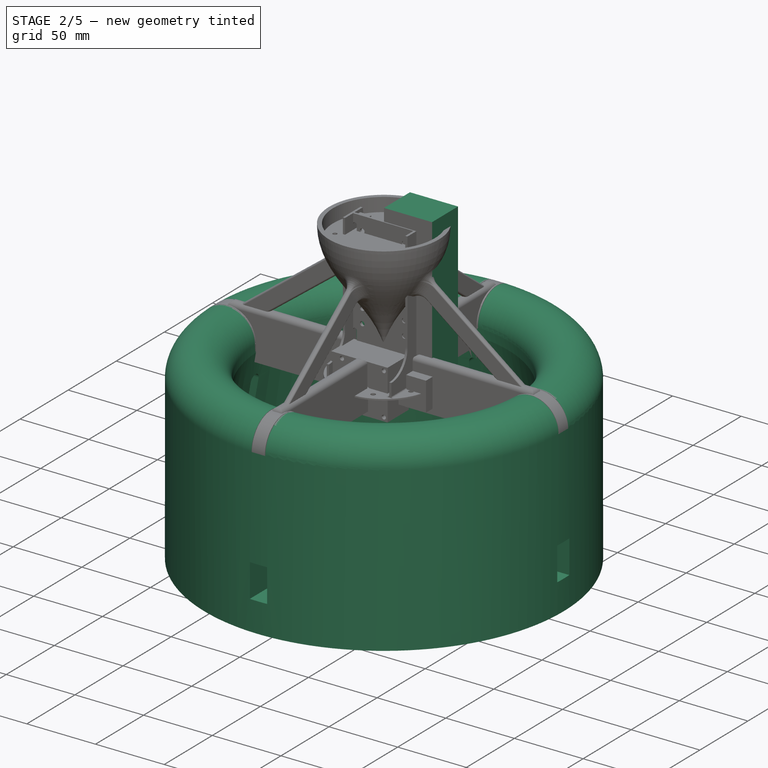
[diagram: stage 2 of 5 — iso view after this stage's code; geometry added in this stage tinted green]
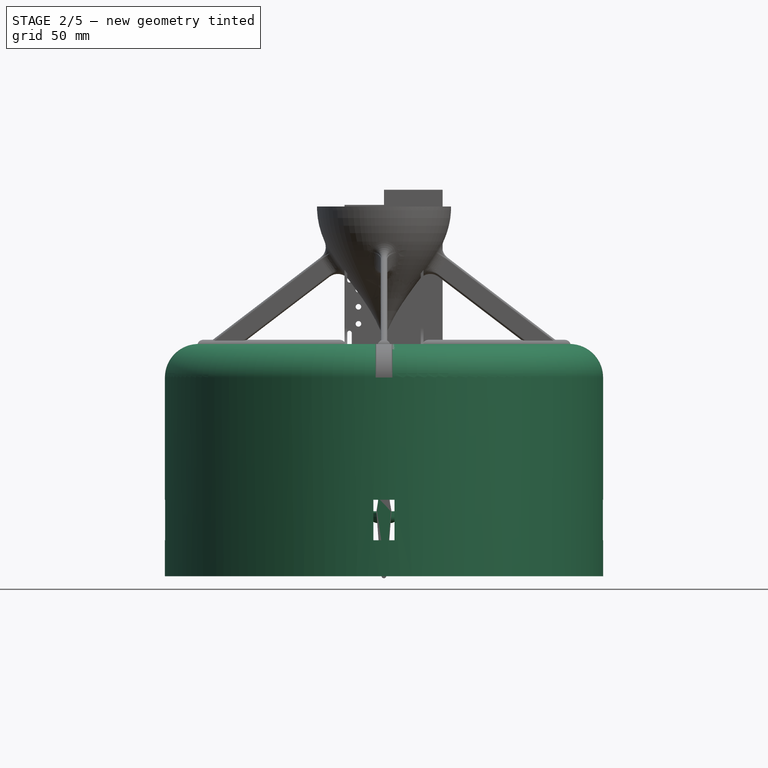
[diagram: stage 2 of 5 — front view after this stage's code; geometry added in this stage tinted green]
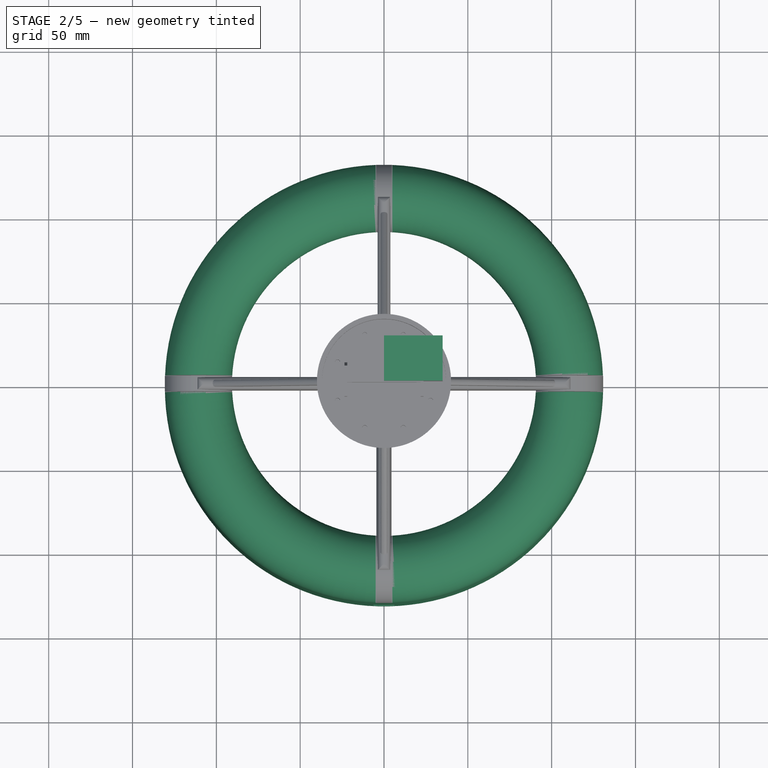
[diagram: stage 2 of 5 — top view after this stage's code; geometry added in this stage tinted green]
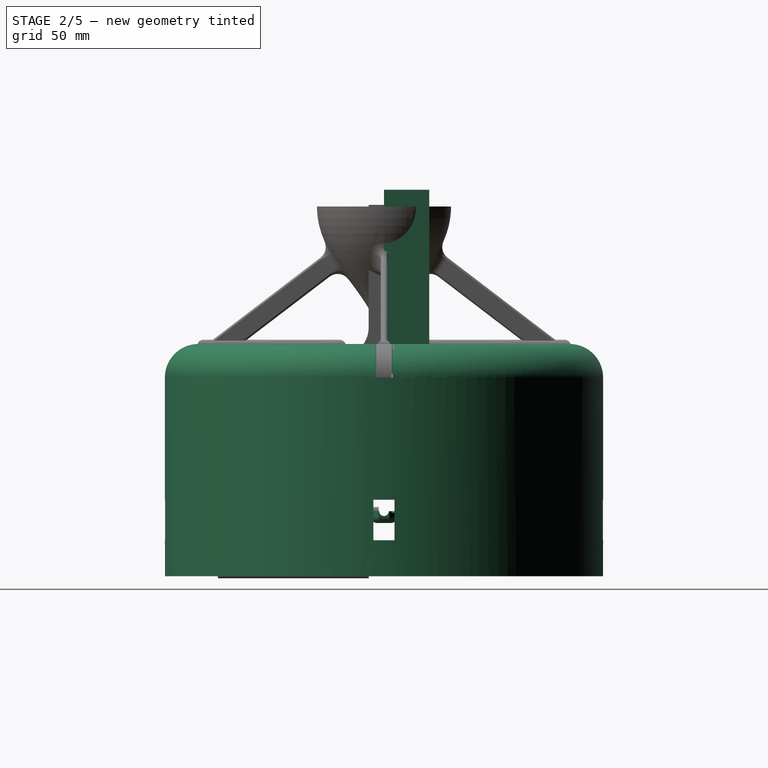
[diagram: stage 2 of 5 — right view after this stage's code; geometry added in this stage tinted green]
FEATURE [Sketcher::SketchObject] Sketch
  MapMode = 5
  Placement = pos=(0,0,0) rot=(1,0,0;1.5708rad)
  Support = -> [XZ_Plane001]
  expr: Constraints[30] = Constraints.prop_len * 0.65
  expr: Constraints[29] = 180deg - 10deg
  expr: Constraints[23] = Constraints.prop_len * 0.01
  sketch-geometry (14):
    g0: LineSegment [constr] StartX=-88.9 StartY=-10 StartZ=0 EndX=88.9 EndY=-10 EndZ=0
    g1: LineSegment [constr] StartX=88.9 StartY=-10 StartZ=0 EndX=88.9 EndY=0 EndZ=0
    g2: LineSegment [constr] StartX=88.9 StartY=0 StartZ=0 EndX=-88.9 EndY=0 EndZ=0
    g3: LineSegment [constr] StartX=-88.9 StartY=0 StartZ=0 EndX=-88.9 EndY=-10 EndZ=0
    g4: GeomPoint X=0 Y=0 Z=0
    g5: LineSegment StartX=110.527 StartY=-120.57 StartZ=0 EndX=130.678 EndY=-120.57 EndZ=0
    g6: LineSegment StartX=130.678 StartY=-120.57 StartZ=0 EndX=130.678 EndY=-2 EndZ=0
    g7: LineSegment [constr] StartX=90.678 StartY=-2 StartZ=0 EndX=130.678 EndY=-2 EndZ=0
    g8: GeomPoint X=110.678 Y=-2 Z=0
    g9: ArcOfCircle CenterX=110.678 CenterY=-2 CenterZ=0 NormalX=0 NormalY=0 NormalZ=1 AngleXU=0 Radius=20 StartAngle=1.035e-13 EndAngle=3.14159
    g10: LineSegment StartX=90.678 StartY=-2 StartZ=0 EndX=90.678 EndY=-8 EndZ=0
    g11: LineSegment StartX=90.678 StartY=-8 StartZ=0 EndX=110.527 EndY=-120.57 EndZ=0
    g12: GeomPoint X=88.9 Y=-5 Z=0
    g13: GeomPoint X=90.678 Y=-5 Z=0
  constraints (33):
    c: Coincident(g0,g1)
    c: Coincident(g1,g2)
    c: Coincident(g2,g3)
    c: Coincident(g3,g0)
    c: Horizontal(g0)
    c: Horizontal(g2)
    c: Vertical(g1)
    c: Vertical(g3)
    c: DistanceX(g2,g2) = 177.8  'prop_len'
    c: DistanceY(g3,g3) = 10
    c: Symmetric(g1,g2,g4)
    c: Coincident(g4,g-1)
    c: Horizontal(g5)
    c: Coincident(g6,g5)
    c: Vertical(g6)
    c: Coincident(g7,g6)
    c: Symmetric(g7,g6,g8)
    c: Coincident(g9,g8)
    c: Coincident(g10,g7)
    c: Vertical(g10)
    c: Coincident(g11,g10)
    c: Coincident(g11,g5)
    c: DistanceY(g10,g10) = 6
    c: DistanceX(g1,g9) = 1.778
    c: Coincident(g9,g7)
    c: Symmetric(g7,g10,g13)
    c: Symmetric(g0,g1,g12)
    c: Horizontal(g13,g12)
    c: Tangent(g9,g6) = -1.5708
    c: Angle(g11,g10) = 2.96706
    c: DistanceY(g5,g13) = 115.57
    c: Radius(g9) = 20  'lip_radii'
    c: DistanceX(g4,g8) = 110.678  'radii_from_center_to_center_of_lip'
FEATURE [PartDesign::Revolution] Revolution
  Angle = 360
  Axis = (0,-1.035e-13,1)
  Base = (0,0,0)
  Placement = pos=(0,0,0) rot=(1,0,0;1.5708rad)
  Profile = -> Sketch
  ReferenceAxis = -> Sketch [V_Axis]
  Reversed = true
FEATURE [Part::Cylinder] Cylinder038  label="Zylinder008"
  Angle = 360
  AttacherType = Attacher::AttachEngine3D
  Height = 10
  Radius = 1
FEATURE [Part::Box] Box033  label="Würfel008"
  AttacherType = Attacher::AttachEngine3D
  Height = 10
  Length = 10
  Placement = pos=(-10,-0.55,0) rot=(0,0,1;0rad)
  Width = 1.1
FEATURE [Part::MultiFuse] Fusion037  label="DrillSlotB004"
  Placement = pos=(2.4,0,0) rot=(0,0,1;0rad)
  Shapes = -> [Box033,Cylinder038]
FEATURE [Part::Cylinder] Cylinder039  label="Zylinder009"
  Angle = 360
  AttacherType = Attacher::AttachEngine3D
  Height = 10
  Radius = 1
FEATURE [Part::Box] Box034  label="Würfel009"
  AttacherType = Attacher::AttachEngine3D
  Height = 10
  Length = 10
  Placement = pos=(-10,-0.55,0) rot=(0,0,1;0rad)
  Width = 1.1
FEATURE [Part::MultiFuse] Fusion036  label="DrillSlotF004"
  Placement = pos=(30,0,0) rot=(0,0,1;3.14159rad)
  Shapes = -> [Box034,Cylinder039]
FEATURE [Sketcher::SketchObject] Sketch011
  MapMode = 5
  Placement = pos=(-0.05,-99.1,-81.8) rot=(0.57735,-0.57735,-0.57735;4.18879rad)
  Support = -> [CopyFusion013]
  sketch-geometry (13):
    g0: LineSegment [constr] StartX=-7.60224 StartY=-4.13254 StartZ=0 EndX=38.4568 EndY=-4.13254 EndZ=0
    g1: LineSegment [constr] StartX=38.4568 StartY=-4.13254 StartZ=0 EndX=38.4568 EndY=4.13254 EndZ=0
    g2: LineSegment [constr] StartX=38.4568 StartY=4.13254 StartZ=0 EndX=-7.60224 EndY=4.13254 EndZ=0
    g3: LineSegment [constr] StartX=-7.60224 StartY=4.13254 StartZ=0 EndX=-7.60224 EndY=-4.13254 EndZ=0
    g4: GeomPoint X=15.4273 Y=0 Z=0
    g5: GeomPoint X=-7.60224 Y=0 Z=0
    g6: GeomPoint X=38.4568 Y=0 Z=0
    g7: LineSegment StartX=0 StartY=-4.13254 StartZ=0 EndX=-7.94193 EndY=-3.31992 EndZ=0
    g8: LineSegment StartX=-7.94193 StartY=3.31992 StartZ=0 EndX=0 EndY=4.13254 EndZ=0
    g9: ArcOfCircle CenterX=-7.60224 CenterY=0 CenterZ=0 NormalX=0 NormalY=0 NormalZ=1 AngleXU=0 Radius=3.33725 StartAngle=1.67276 EndAngle=4.61042
    g10: LineSegment StartX=0 StartY=-4.13254 StartZ=0 EndX=38.5588 EndY=-1.48688 EndZ=0
    g11: LineSegment StartX=38.5588 StartY=1.48688 StartZ=0 EndX=0 EndY=4.13254 EndZ=0
    g12: ArcOfCircle CenterX=38.4568 CenterY=0 CenterZ=0 NormalX=0 NormalY=0 NormalZ=1 AngleXU=0 Radius=1.49038 StartAngle=4.7809 EndAngle=7.78548
  constraints (27):
    c: Coincident(g0,g1)
    c: Coincident(g1,g2)
    c: Coincident(g2,g3)
    c: Coincident(g3,g0)
    c: Horizontal(g0)
    c: Horizontal(g2)
    c: Vertical(g1)
    c: Vertical(g3)
    c: PointOnObject(g4,g-1)
    c: Symmetric(g2,g0,g4)
    c: PointOnObject(g8,g2)
    c: PointOnObject(g7,g0)
    c: Vertical(g7,g-1)
    c: Vertical(g8,g-1)
    c: PointOnObject(g5,g3)
    c: PointOnObject(g6,g1)
    c: Horizontal(g5,g-1)
    c: Horizontal(g6,g5)
    c: Tangent(g7,g9) = 1.5708
    c: Tangent(g8,g9) = 1.5708
    c: PointOnObject(g9,g-1)
    c: Coincident(g5,g9)
    c: Coincident(g10,g7)
    c: Coincident(g11,g8)
    c: Tangent(g10,g12) = -1.5708
    c: Tangent(g11,g12) = -1.5708
    c: Coincident(g6,g12)
FEATURE [PartDesign::Pad] Pad007
  Length = 90
  Length2 = 100
  Placement = pos=(-0.05,-128.5,-81.8) rot=(0.57735,-0.57735,-0.57735;4.18879rad)
  Profile = -> Sketch011
  Type = 0
FEATURE [Part::Box] Box035  label="Cube"
  AttacherType = Attacher::AttachEngine3D
  Height = 110
  Length = 35
  Placement = pos=(4,-5,0) rot=(0,0,1;0rad)
  Width = 27
FEATURE [PartDesign::FeatureBase] BaseFeature
  BaseFeature = -> Box035
FEATURE [Sketcher::SketchObject] Sketch017
  MapMode = 5
  Placement = pos=(0,0,0) rot=(0.57735,0.57735,0.57735;2.0944rad)
  Support = -> [YZ_Plane001]
  expr: Constraints[8] = 45mm / 2 + Constraints.slot_radii / 2 + 2mm
  sketch-geometry (4):
    g0: ArcOfCircle CenterX=0 CenterY=-148.6 CenterZ=0 NormalX=0 NormalY=0 NormalZ=1 AngleXU=0 Radius=4.1 StartAngle=3.14159 EndAngle=6.28319
    g1: ArcOfCircle CenterX=4e-16 CenterY=-28.6 CenterZ=0 NormalX=0 NormalY=0 NormalZ=1 AngleXU=0 Radius=4.1 StartAngle=0 EndAngle=3.14159
    g2: LineSegment StartX=4.1 StartY=-148.6 StartZ=0 EndX=4.1 EndY=-28.6 EndZ=0
    g3: LineSegment StartX=-4.1 StartY=-148.6 StartZ=0 EndX=-4.1 EndY=-28.6 EndZ=0
  constraints (10):
    c: Tangent(g0,g3) = 1.5708
    c: Tangent(g0,g2) = -1.5708
    c: Tangent(g2,g1) = -1.5708
    c: Tangent(g3,g1) = 1.5708
    c: Vertical(g2)
    c: Equal(g0,g1)
    c: PointOnObject(g0,g-2)
    c: DistanceX(g1,g1) = 8.2  'slot_radii'
    c: DistanceY(g1,g-1) = 28.6
    c: DistanceY(g0,g1) = 120
FEATURE [PartDesign::Pocket] Pocket001
  BaseFeature = -> Revolution
  Length = 111.6
  Length2 = 100
  Placement = pos=(0,0,0) rot=(1,0,0;1.5708rad)
  Profile = -> Sketch017
  Type = 0
  expr: Length = Sketch006.Constraints.frame_leg_len + 0.2mm
FEATURE [PartDesign::PolarPattern] PolarPattern001
  Angle = 360
  Axis = -> Z_Axis001
  BaseFeature = -> Pocket001
  Occurrences = 4
  Originals = -> [Pocket001]
  Placement = pos=(0,0,0) rot=(1,0,0;1.5708rad)
FEATURE [Sketcher::SketchObject] Sketch018
  MapMode = 5
  Placement = pos=(0,0,0) rot=(0.57735,0.57735,0.57735;2.0944rad)
  Support = -> [YZ_Plane001]
  sketch-geometry (5):
    g0: LineSegment StartX=-6.3 StartY=-70.5 StartZ=0 EndX=6.3 EndY=-70.5 EndZ=0
    g1: LineSegment StartX=6.3 StartY=-70.5 StartZ=0 EndX=6.3 EndY=-103.5 EndZ=0
    g2: LineSegment StartX=6.3 StartY=-103.5 StartZ=0 EndX=-6.3 EndY=-103.5 EndZ=0
    g3: LineSegment StartX=-6.3 StartY=-103.5 StartZ=0 EndX=-6.3 EndY=-70.5 EndZ=0
    g4: GeomPoint X=0 Y=-87 Z=0
  constraints (13):
    c: Coincident(g0,g1)
    c: Coincident(g1,g2)
    c: Coincident(g2,g3)
    c: Coincident(g3,g0)
    c: Horizontal(g0)
    c: Horizontal(g2)
    c: Vertical(g1)
    c: Vertical(g3)
    c: PointOnObject(g4,g-2)
    c: Symmetric(g2,g0,g4)
    c: DistanceX(g0,g0) = 12.6  'servo_width'
    c: DistanceY(g1,g1) = 33
    c: DistanceY(g4,g-1) = 87  'servo_block_center'
FEATURE [PartDesign::Pocket] Pocket002
  BaseFeature = -> PolarPattern001
  Length = 111.6
  Length2 = 100
  Placement = pos=(0,0,0) rot=(1,0,0;1.5708rad)
  Profile = -> Sketch018
  Type = 0
  expr: Length = Sketch006.Constraints.frame_leg_len + 0.2mm
FEATURE [PartDesign::PolarPattern] PolarPattern002
  Angle = 360
  Axis = -> Z_Axis001
  BaseFeature = -> Pocket002
  Occurrences = 4
  Originals = -> [Pocket002]
  Placement = pos=(0,0,0) rot=(1,0,0;1.5708rad)
FEATURE [Sketcher::SketchObject] Sketch019
  MapMode = 5
  Placement = pos=(0,0,0) rot=(0.57735,0.57735,0.57735;2.0944rad)
  Support = -> [YZ_Plane001]
  expr: Constraints[12] = Sketch018.Constraints.servo_block_center
  expr: Constraints[10] = Sketch018.Constraints.servo_width
  sketch-geometry (5):
    g0: LineSegment StartX=-6.3 StartY=-74.9 StartZ=0 EndX=6.3 EndY=-74.9 EndZ=0
    g1: LineSegment StartX=6.3 StartY=-74.9 StartZ=0 EndX=6.3 EndY=-99.1 EndZ=0
    g2: LineSegment StartX=6.3 StartY=-99.1 StartZ=0 EndX=-6.3 EndY=-99.1 EndZ=0
    g3: LineSegment StartX=-6.3 StartY=-99.1 StartZ=0 EndX=-6.3 EndY=-74.9 EndZ=0
    g4: GeomPoint X=0 Y=-87 Z=0
  constraints (13):
    c: Coincident(g0,g1)
    c: Coincident(g1,g2)
    c: Coincident(g2,g3)
    c: Coincident(g3,g0)
    c: Horizontal(g0)
    c: Horizontal(g2)
    c: Vertical(g1)
    c: Vertical(g3)
    c: PointOnObject(g4,g-2)
    c: Symmetric(g0,g2,g4)
    c: DistanceX(g0,g0) = 12.6
    c: DistanceY(g1,g1) = 24.2
    c: DistanceY(g4,g-1) = 87
FEATURE [PartDesign::Pocket] Pocket003
  BaseFeature = -> PolarPattern002
  Length = 5
  Length2 = 100
  Placement = pos=(0,0,0) rot=(1,0,0;1.5708rad)
  Profile = -> Sketch019
  Type = 1
FEATURE [PartDesign::PolarPattern] PolarPattern003
  Angle = 360
  Axis = -> Z_Axis001
  BaseFeature = -> Pocket003
  Occurrences = 4
  Originals = -> [Pocket003]
  Placement = pos=(0,0,0) rot=(1,0,0;1.5708rad)
FEATURE [Sketcher::SketchObject] Sketch020
  MapMode = 5
  Placement = pos=(0,0,0) rot=(0.57735,0.57735,0.57735;2.0944rad)
  Support = -> [YZ_Plane001]
  expr: Constraints[6] = Sketch018.Constraints.servo_block_center
  sketch-geometry (3):
    g0: Circle CenterX=0 CenterY=-73.25 CenterZ=0 NormalX=0 NormalY=0 NormalZ=1 AngleXU=0 Radius=0.75
    g1: Circle CenterX=0 CenterY=-100.75 CenterZ=0 NormalX=0 NormalY=0 NormalZ=1 AngleXU=0 Radius=0.75
    g2: GeomPoint X=0 Y=-87 Z=0
  constraints (7):
    c: PointOnObject(g0,g-2)
    c: Diameter(g0) = 1.5
    c: Equal(g0,g1) = 1.5
    c: PointOnObject(g1,g-2)
    c: Symmetric(g1,g0,g2)
    c: DistanceY(g1,g0) = 27.5
    c: DistanceY(g2,g-1) = 87
FEATURE [PartDesign::Pocket] Pocket004
  BaseFeature = -> PolarPattern003
  Length = 121.6
  Length2 = 100
  Placement = pos=(0,0,0) rot=(1,0,0;1.5708rad)
  Profile = -> Sketch020
  Type = 0
  expr: Length = Sketch006.Constraints.frame_leg_len + 0.2mm + 10mm
FEATURE [PartDesign::PolarPattern] PolarPattern004
  Angle = 360
  Axis = -> Z_Axis001
  BaseFeature = -> Pocket004
  Occurrences = 4
  Originals = -> [Pocket004]
  Placement = pos=(0,0,0) rot=(1,0,0;1.5708rad)
FEATURE [Sketcher::SketchObject] Sketch021
  MapMode = 5
  Placement = pos=(0,0,0) rot=(0.57735,0.57735,0.57735;2.0944rad)
  Support = -> [YZ_Plane001]
  sketch-geometry (5):
    g0: LineSegment StartX=-5 StartY=28 StartZ=0 EndX=5 EndY=28 EndZ=0
    g1: LineSegment StartX=5 StartY=28 StartZ=0 EndX=5 EndY=-2 EndZ=0
    g2: LineSegment StartX=5 StartY=-2 StartZ=0 EndX=-5 EndY=-2 EndZ=0
    g3: LineSegment StartX=-5 StartY=-2 StartZ=0 EndX=-5 EndY=28 EndZ=0
    g4: GeomPoint X=0 Y=13 Z=0
  constraints (13):
    c: Coincident(g0,g1)
    c: Coincident(g1,g2)
    c: Coincident(g2,g3)
    c: Coincident(g3,g0)
    c: Horizontal(g0)
    c: Horizontal(g2)
    c: Vertical(g1)
    c: Vertical(g3)
    c: PointOnObject(g4,g-2)
    c: Symmetric(g2,g0,g4)
    c: DistanceX(g2,g1) = 10
    c: DistanceY(g2,g0) = 30
    c: DistanceY(g1,g-1) = 2
FEATURE [PartDesign::Pocket] Pocket005
  BaseFeature = -> PolarPattern004
  Length = 5
  Length2 = 100
  Placement = pos=(0,0,0) rot=(1,0,0;1.5708rad)
  Profile = -> Sketch021
  Type = 1
FEATURE [PartDesign::PolarPattern] PolarPattern005
  Angle = 360
  Axis = -> Z_Axis001
  BaseFeature = -> Pocket005
  Occurrences = 4
  Originals = -> [Pocket005]
  Placement = pos=(0,0,0) rot=(1,0,0;1.5708rad)
FEATURE [Part::Part2DObjectPython] Clone2D  label="Sketch006 (2D)"  # Draft 2D object (typed FeaturePython)
  Fuse = false
  Objects = -> [Sketch006]
  Placement = pos=(0,0,-2) rot=(1,0,0;3.14159rad)
  Scale = (1,1,1)
FEATURE [PartDesign::Pad] Pad009
  Length = 10
  Length2 = 100
  Placement = pos=(0,0,-2) rot=(1,0,0;3.14159rad)
  Profile = -> Clone2D
  Type = 0
FEATURE [Sketcher::SketchObject] Sketch026
  MapMode = 5
  Placement = pos=(0,0,-12) rot=(1,0,0;3.14159rad)
  Support = -> [Pad009]
  sketch-geometry (9):
    g0: LineSegment StartX=3.31371 StartY=-8 StartZ=0 EndX=8 EndY=-3.31371 EndZ=0
    g1: LineSegment StartX=8 StartY=-3.31371 StartZ=0 EndX=8 EndY=3.31371 EndZ=0
    g2: LineSegment StartX=8 StartY=3.31371 StartZ=0 EndX=3.31371 EndY=8 EndZ=0
    g3: LineSegment StartX=3.31371 StartY=8 StartZ=0 EndX=-3.31371 EndY=8 EndZ=0
    g4: LineSegment StartX=-3.31371 StartY=8 StartZ=0 EndX=-8 EndY=3.31371 EndZ=0
    g5: LineSegment StartX=-8 StartY=3.31371 StartZ=0 EndX=-8 EndY=-3.31371 EndZ=0
    g6: LineSegment StartX=-8 StartY=-3.31371 StartZ=0 EndX=-3.31371 EndY=-8 EndZ=0
    g7: LineSegment StartX=-3.31371 StartY=-8 StartZ=0 EndX=3.31371 EndY=-8 EndZ=0
    g8: Circle [constr] CenterX=0 CenterY=0 CenterZ=0 NormalX=0 NormalY=0 NormalZ=1 AngleXU=0 Radius=8.65914
  constraints (20):
    c: Coincident(g0,g1)
    c: Coincident(g1,g2)
    c: Coincident(g2,g3)
    c: Coincident(g3,g4)
    c: Coincident(g4,g5)
    c: Coincident(g5,g6)
    c: Coincident(g6,g7)
    c: Coincident(g7,g0)
    c: Equal(g0, g1-g7) x7
    c: PointOnObject(g0,g8)
    c: PointOnObject(g1,g8)
    c: PointOnObject(g2,g8)
    c: PointOnObject(g3,g8)
    c: PointOnObject(g4,g8)
    c: PointOnObject(g5,g8)
    c: PointOnObject(g6,g8)
    c: PointOnObject(g7,g8)
    c: Coincident(g8,g-1)
    c: Horizontal(g7)
    c: DistanceY(g-1,g2) = 8  'appendage_width'
FEATURE [PartDesign::Pad] Pad010
  BaseFeature = -> Pad009
  Length = 11.8
  Length2 = 100
  Placement = pos=(0,0,-2) rot=(1,0,0;3.14159rad)
  Profile = -> Sketch026
  Type = 0
FEATURE [Sketcher::SketchObject] Sketch029
  MapMode = 5
  Placement = pos=(0,8,-2) rot=(-1,0,0;1.5708rad)
  Support = -> [Pad010]
  sketch-geometry (1):
    g0: Circle CenterX=0 CenterY=21.8 CenterZ=0 NormalX=0 NormalY=0 NormalZ=1 AngleXU=0 Radius=2.8
  constraints (3):
    c: Diameter(g0) = 5.6  'swivel_seat_dia'
    c: DistanceY(g-1,g0) = 21.8  'svivel_point'
    c: PointOnObject(g0,g-2)
FEATURE [PartDesign::Pocket] Pocket008
  BaseFeature = -> Pad010
  Length = 5
  Length2 = 100
  Placement = pos=(0,0,-2) rot=(1,0,0;3.14159rad)
  Profile = -> Sketch029
  Type = 1
FEATURE [Sketcher::SketchObject] Sketch030
  MapMode = 5
  Placement = pos=(-8,0,-2) rot=(0.57735,0.57735,-0.57735;4.18879rad)
  Support = -> [Pocket008]
  expr: Constraints[2] = Sketch029.Constraints.swivel_seat_dia
  expr: Constraints[1] = Sketch029.Constraints.svivel_point
  sketch-geometry (1):
    g0: Circle CenterX=0 CenterY=21.8 CenterZ=0 NormalX=0 NormalY=0 NormalZ=1 AngleXU=0 Radius=2.8
  constraints (3):
    c: PointOnObject(g0,g-2)
    c: DistanceY(g-1,g0) = 21.8
    c: Diameter(g0) = 5.6
FEATURE [PartDesign::Pocket] Pocket009
  BaseFeature = -> Pocket008
  Length = 5
  Length2 = 100
  Placement = pos=(0,0,-2) rot=(1,0,0;3.14159rad)
  Profile = -> Sketch030
  Type = 1
FEATURE [Sketcher::SketchObject] Sketch031
  ExternalGeometry = -> [Pocket009]
  MapMode = 5
  Placement = pos=(0,0,-12) rot=(1,0,0;3.14159rad)
  Support = -> [Pocket009]
  sketch-geometry (4):
    g0: Circle CenterX=0 CenterY=16.5 CenterZ=0 NormalX=0 NormalY=0 NormalZ=1 AngleXU=0 Radius=2.35
    g1: Circle CenterX=16.5 CenterY=0 CenterZ=0 NormalX=0 NormalY=0 NormalZ=1 AngleXU=0 Radius=2.35
    g2: Circle CenterX=0 CenterY=-16.5 CenterZ=0 NormalX=0 NormalY=0 NormalZ=1 AngleXU=0 Radius=2.35
    g3: Circle CenterX=-16.5 CenterY=0 CenterZ=0 NormalX=0 NormalY=0 NormalZ=1 AngleXU=0 Radius=2.35
  constraints (8):
    c: Coincident(g0,g-3)
    c: Diameter(g0) = 4.7  'insert_dia'
    c: Equal(g0,g1) = 4.7
    c: Coincident(g1,g-4)
    c: Equal(g0,g2) = 4.7
    c: Coincident(g2,g-5)
    c: Equal(g0,g3) = 4.7
    c: Coincident(g3,g-6)
FEATURE [PartDesign::Pocket] Pocket010
  BaseFeature = -> Pocket009
  Length = 5
  Length2 = 100
  Placement = pos=(0,0,-2) rot=(1,0,0;3.14159rad)
  Profile = -> Sketch031
  Type = 0
FEATURE [Sketcher::SketchObject] Sketch032
  MapMode = 5
  Placement = pos=(0,4.1e-15,-23.8) rot=(1,0,0;3.14159rad)
  Support = -> [Pocket010]
  expr: Constraints[1] = Sketch031.Constraints.insert_dia
  sketch-geometry (1):
    g0: Circle CenterX=0 CenterY=0 CenterZ=0 NormalX=0 NormalY=0 NormalZ=1 AngleXU=0 Radius=2.35
  constraints (2):
    c: Coincident(g0,g-1)
    c: Diameter(g0) = 4.7
FEATURE [PartDesign::Pocket] Pocket011
  BaseFeature = -> Pocket010
  Length = 12
  Length2 = 100
  Placement = pos=(0,0,-2) rot=(1,0,0;3.14159rad)
  Profile = -> Sketch032
  Type = 0
FEATURE [PartDesign::Fillet] Fillet007
  Base = -> Pocket011 [Edge31,Edge7,Edge34,Edge39]
  BaseFeature = -> Pocket011
  Placement = pos=(0,0,-2) rot=(1,0,0;3.14159rad)
  Radius = 2
FEATURE [Sketcher::SketchObject] Sketch033
  ExternalGeometry = -> [Fillet007]
  MapMode = 5
  Placement = pos=(0,4.1e-15,-23.8) rot=(1,0,0;3.14159rad)
  Support = -> [Fillet007]
  sketch-geometry (23):
    g0: LineSegment [constr] StartX=16.617 StartY=-18.7383 StartZ=0 EndX=18.7383 EndY=-16.617 EndZ=0
    g1: LineSegment [constr] StartX=18.7383 StartY=-16.617 StartZ=0 EndX=-16.617 EndY=18.7383 EndZ=0
    g2: LineSegment [constr] StartX=-16.617 StartY=18.7383 StartZ=0 EndX=-18.7383 EndY=16.617 EndZ=0
    g3: LineSegment [constr] StartX=-18.7383 StartY=16.617 StartZ=0 EndX=16.617 EndY=-18.7383 EndZ=0
    g4: LineSegment [constr] StartX=-16.617 StartY=18.7383 StartZ=0 EndX=16.617 EndY=-18.7383 EndZ=0
    g5: GeomPoint X=-4.59619 Y=6.71751 Z=0
    g6: GeomPoint X=-6.71751 Y=4.59619 Z=0
    g7: GeomPoint X=-4.92132 Y=2.8 Z=0
    g8: GeomPoint X=-2.8 Y=4.92132 Z=0
    g9: LineSegment StartX=-4.59619 StartY=6.71751 StartZ=0 EndX=-6.71751 EndY=4.59619 EndZ=0
    g10: LineSegment StartX=-6.71751 StartY=4.59619 StartZ=0 EndX=-4.92132 EndY=2.8 EndZ=0
    g11: LineSegment StartX=-4.92132 StartY=2.8 StartZ=0 EndX=-2.8 EndY=2.8 EndZ=0
    g12: LineSegment StartX=-2.8 StartY=2.8 StartZ=0 EndX=-2.8 EndY=4.92132 EndZ=0
    g13: LineSegment StartX=-2.8 StartY=4.92132 StartZ=0 EndX=-4.59619 EndY=6.71751 EndZ=0
    g14: GeomPoint X=4.92132 Y=-2.8 Z=0
    g15: GeomPoint X=2.8 Y=-4.92132 Z=0
    g16: GeomPoint X=4.59619 Y=-6.71751 Z=0
    g17: GeomPoint X=6.71751 Y=-4.59619 Z=0
    g18: LineSegment StartX=2.8 StartY=-2.8 StartZ=0 EndX=2.8 EndY=-4.92132 EndZ=0
    g19: LineSegment StartX=2.8 StartY=-4.92132 StartZ=0 EndX=4.59619 EndY=-6.71751 EndZ=0
    g20: LineSegment StartX=4.59619 StartY=-6.71751 StartZ=0 EndX=6.71751 EndY=-4.59619 EndZ=0
    g21: LineSegment StartX=6.71751 StartY=-4.59619 StartZ=0 EndX=4.92132 EndY=-2.8 EndZ=0
    g22: LineSegment StartX=4.92132 StartY=-2.8 StartZ=0 EndX=2.8 EndY=-2.8 EndZ=0
  constraints (49):
    c: Coincident(g0,g1)
    c: Coincident(g3,g0)
    c: Coincident(g4,g0)
    c: Coincident(g1,g4)
    c: Perpendicular(g2,g3)
    c: Angle(g-1,g0) = 0.785398
    c: Symmetric(g0,g1,g-1)
    c: Distance(g1) = 50
    c: PointOnObject(g8,g1)
    c: PointOnObject(g8,g-8)
    c: PointOnObject(g5,g-10)
    c: Coincident(g2,g1)
    c: Coincident(g2,g3)
    c: Perpendicular(g1,g0)
    c: Perpendicular(g3,g0)
    c: Distance(g2) = 3
    c: PointOnObject(g5,g1)
    c: PointOnObject(g6,g3)
    c: PointOnObject(g6,g-10)
    c: PointOnObject(g7,g-11)
    c: PointOnObject(g7,g3)
    c: Coincident(g9,g6)
    c: Coincident(g10,g6)
    c: Coincident(g10,g7)
    c: Coincident(g10,g11)
    c: Coincident(g11,g-11)
    c: Coincident(g11,g12)
    c: Coincident(g12,g8)
    c: Coincident(g12,g13)
    c: Coincident(g13,g5)
    c: PointOnObject(g14,g-3)
    c: PointOnObject(g15,g-4)
    c: PointOnObject(g16,g-6)
    c: PointOnObject(g17,g-6)
    c: PointOnObject(g17,g1)
    c: PointOnObject(g14,g1)
    c: PointOnObject(g15,g3)
    c: PointOnObject(g16,g3)
    c: Coincident(g-4,g18)
    c: Coincident(g18,g15)
    c: Coincident(g18,g19)
    c: Coincident(g19,g16)
    c: Coincident(g19,g20)
    c: Coincident(g20,g17)
    c: Coincident(g20,g21)
    c: Coincident(g21,g14)
    c: Coincident(g21,g22)
    c: Coincident(g22,g18)
    c: Coincident(g9,g5)
FEATURE [PartDesign::Pad] Pad012
  BaseFeature = -> Fillet007
  Length = 1
  Length2 = 100
  Placement = pos=(0,0,-2) rot=(1,0,0;3.14159rad)
  Profile = -> Sketch033
  Type = 0
FEATURE [PartDesign::Fillet] Fillet008
  Base = -> Pad012 [Edge160,Edge159,Edge163,Edge164]
  BaseFeature = -> Pad012
  Placement = pos=(0,0,-2) rot=(1,0,0;3.14159rad)
  Radius = 1.2
FEATURE [PartDesign::Body] Body013  label="Body017"
  Group = -> [Clone2D,Pad009,Sketch026,Pad010,Sketch029,Pocket008,Sketch030,Pocket009,Sketch031,Pocket010,Sketch032,Pocket011,Fillet007,Sketch033,Pad012,Fillet008]
  Origin = -> Origin028
  Placement = pos=(0,0,-58) rot=(0,0,1;0rad)
  Tip = -> Fillet008
FEATURE [App::Part] Part014  label="frame_bottom"
  Group = -> [Body013]
  Origin = -> Origin029
FEATURE [PartDesign::Plane] DatumPlane
  AttachmentOffset = pos=(0,0,81.8) rot=(0,0,1;0rad)
  Length = 24
  MapMode = 5
  Placement = pos=(0,0,-81.8) rot=(0,1,0;3.14159rad)
  ResizeMode = 0
  Support = -> [XY_Plane031]
  Width = 24
FEATURE [Sketcher::SketchObject] Sketch034
  MapMode = 5
  Placement = pos=(0,0,-81.8) rot=(0,1,0;3.14159rad)
  Support = -> [DatumPlane]
  expr: Constraints[23] = Sketch026.Constraints.appendage_width
  sketch-geometry (9):
    g0: LineSegment StartX=3.31371 StartY=-8 StartZ=0 EndX=8 EndY=-3.31371 EndZ=0
    g1: LineSegment StartX=8 StartY=-3.31371 StartZ=0 EndX=8 EndY=3.31371 EndZ=0
    g2: LineSegment StartX=8 StartY=3.31371 StartZ=0 EndX=3.31371 EndY=8 EndZ=0
    g3: LineSegment StartX=3.31371 StartY=8 StartZ=0 EndX=-3.31371 EndY=8 EndZ=0
    g4: LineSegment StartX=-3.31371 StartY=8 StartZ=0 EndX=-8 EndY=3.31371 EndZ=0
    g5: LineSegment StartX=-8 StartY=3.31371 StartZ=0 EndX=-8 EndY=-3.31371 EndZ=0
    g6: LineSegment StartX=-8 StartY=-3.31371 StartZ=0 EndX=-3.31371 EndY=-8 EndZ=0
    g7: LineSegment StartX=-3.31371 StartY=-8 StartZ=0 EndX=3.31371 EndY=-8 EndZ=0
    g8: Circle [constr] CenterX=0 CenterY=0 CenterZ=0 NormalX=0 NormalY=0 NormalZ=1 AngleXU=0 Radius=8.65914
  constraints (20):
    c: Coincident(g0,g1)
    c: Coincident(g1,g2)
    c: Coincident(g2,g3)
    c: Coincident(g3,g4)
    c: Coincident(g4,g5)
    c: Coincident(g5,g6)
    c: Coincident(g6,g7)
    c: Coincident(g7,g0)
    c: Equal(g0, g1-g7) x7
    c: PointOnObject(g0,g8)
    c: PointOnObject(g1,g8)
    c: PointOnObject(g2,g8)
    c: PointOnObject(g3,g8)
    c: PointOnObject(g4,g8)
    c: PointOnObject(g5,g8)
    c: PointOnObject(g6,g8)
    c: PointOnObject(g7,g8)
    c: DistanceY(g8,g2) = 8
    c: Horizontal(g3)
    c: Coincident(g8,g-1)
FEATURE [PartDesign::Pad] Pad013
  Length = 7
  Length2 = 100
  Placement = pos=(0,0,-81.8) rot=(0,1,0;3.14159rad)
  Profile = -> Sketch034
  Type = 0
FEATURE [Sketcher::SketchObject] Sketch035
  MapMode = 5
  Placement = pos=(5.65685,5.65685,-81.8) rot=(-0.862856,0.357407,-0.357407;1.71777rad)
  Support = -> [Pad013]
  sketch-geometry (4):
    g0: LineSegment StartX=-1.6 StartY=0 StartZ=0 EndX=1.6 EndY=0 EndZ=0
    g1: LineSegment StartX=1.6 StartY=0 StartZ=0 EndX=1.6 EndY=1 EndZ=0
    g2: LineSegment StartX=1.6 StartY=1 StartZ=0 EndX=-1.6 EndY=1 EndZ=0
    g3: LineSegment StartX=-1.6 StartY=1 StartZ=0 EndX=-1.6 EndY=0 EndZ=0
  constraints (11):
    c: Coincident(g0,g1)
    c: Coincident(g1,g2)
    c: Coincident(g2,g3)
    c: Coincident(g3,g0)
    c: Horizontal(g0)
    c: Horizontal(g2)
    c: Vertical(g1)
    c: Vertical(g3)
    c: Symmetric(g0,g0,g-1)
    c: DistanceY(g1,g1) = 1
    c: DistanceX(g2,g2) = 3.2
FEATURE [PartDesign::Pocket] Pocket012
  BaseFeature = -> Pad013
  Length = 5
  Length2 = 100
  Placement = pos=(0,0,-81.8) rot=(0,1,0;3.14159rad)
  Profile = -> Sketch035
  Type = 1
FEATURE [Sketcher::SketchObject] Sketch036
  MapMode = 5
  Placement = pos=(8,0,-81.8) rot=(0.57735,-0.57735,0.57735;4.18879rad)
  Support = -> [Pocket012]
  expr: Constraints[1] = Sketch029.Constraints.swivel_seat_dia
  sketch-geometry (1):
    g0: Circle CenterX=0 CenterY=0 CenterZ=0 NormalX=0 NormalY=0 NormalZ=1 AngleXU=0 Radius=2.8
  constraints (2):
    c: Coincident(g0,g-1)
    c: Diameter(g0) = 5.6
FEATURE [PartDesign::Pocket] Pocket013
  BaseFeature = -> Pocket012
  Length = 5
  Length2 = 100
  Placement = pos=(0,0,-81.8) rot=(0,1,0;3.14159rad)
  Profile = -> Sketch036
  Type = 1
FEATURE [PartDesign::PolarPattern] PolarPattern007
  Angle = 90
  Axis = -> Z_Axis031
  BaseFeature = -> Pocket013
  Occurrences = 2
  Originals = -> [Pocket013]
  Placement = pos=(0,0,-81.8) rot=(0,1,0;3.14159rad)
FEATURE [Sketcher::SketchObject] Sketch037
  MapMode = 5
  Placement = pos=(0,0,-88.8) rot=(0,1,0;3.14159rad)
  Support = -> [PolarPattern007]
  sketch-geometry (1):
    g0: Circle CenterX=0 CenterY=0 CenterZ=0 NormalX=0 NormalY=0 NormalZ=1 AngleXU=0 Radius=2.77782
  constraints (1):
    c: Coincident(g0,g-1)
FEATURE [PartDesign::Hole] Hole
  BaseFeature = -> PolarPattern007
  Depth = 25
  DepthType = 0
  Diameter = 1.75
  DrillPoint = 1
  DrillPointAngle = 118
  HoleCutCountersinkAngle = 90
  HoleCutDepth = 0
  HoleCutDiameter = 1.6
  HoleCutType = 0
  ModelActualThread = false
  Placement = pos=(0,0,-81.8) rot=(0,1,0;3.14159rad)
  Profile = -> Sketch037
  Tapered = false
  TaperedAngle = 90
  ThreadAngle = 0
  ThreadClass = 0
  ThreadCutOffInner = 0
  ThreadCutOffOuter = 0
  ThreadDirection = 0
  ThreadFit = 0
  ThreadPitch = 0
  ThreadSize = 0
  ThreadType = 1
  Threaded = false
FEATURE [PartDesign::Fillet] Fillet009
  Base = -> Hole [Edge27,Edge29,Edge30,Edge28,Edge26,Edge25,Edge7,Edge24]
  BaseFeature = -> Hole
  Placement = pos=(0,0,-81.8) rot=(0,1,0;3.14159rad)
  Radius = 4
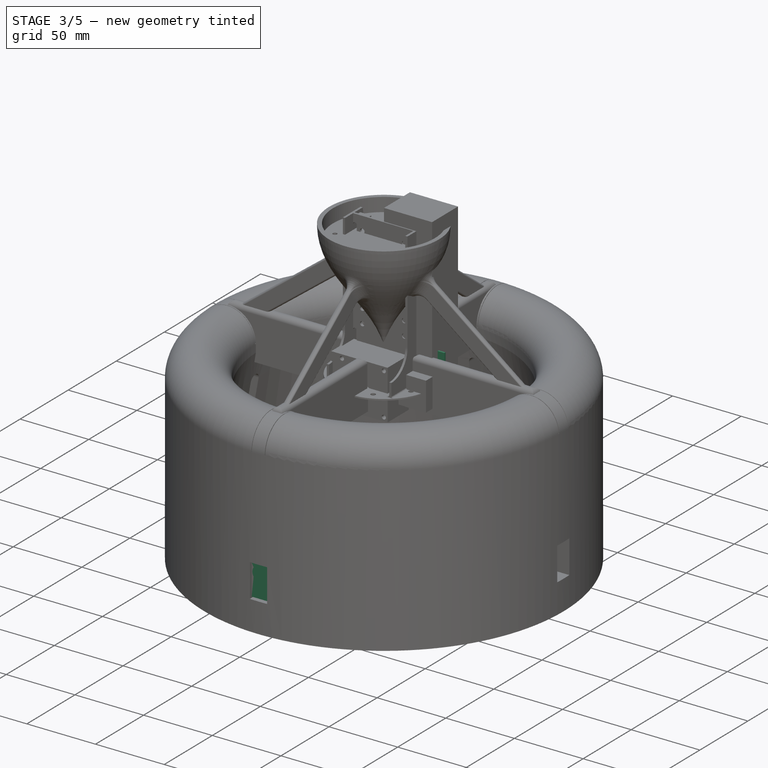
[diagram: stage 3 of 5 — iso view after this stage's code; geometry added in this stage tinted green]
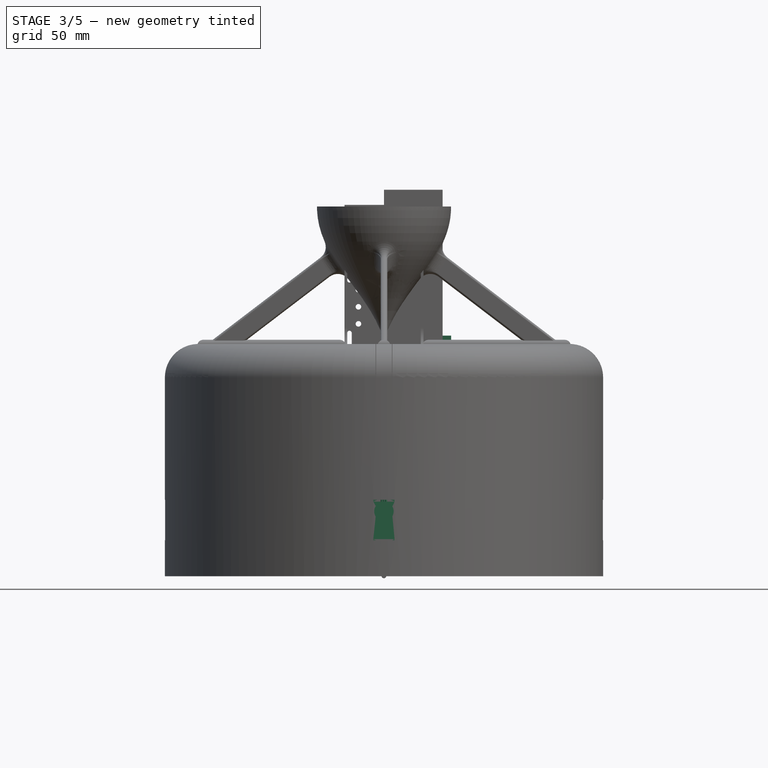
[diagram: stage 3 of 5 — front view after this stage's code; geometry added in this stage tinted green]
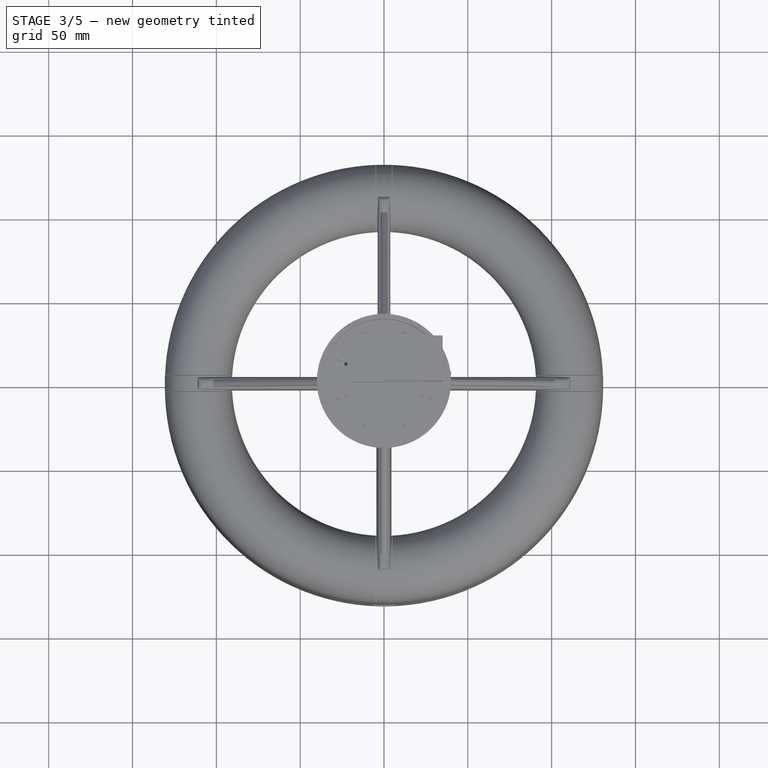
[diagram: stage 3 of 5 — top view after this stage's code; geometry added in this stage tinted green]
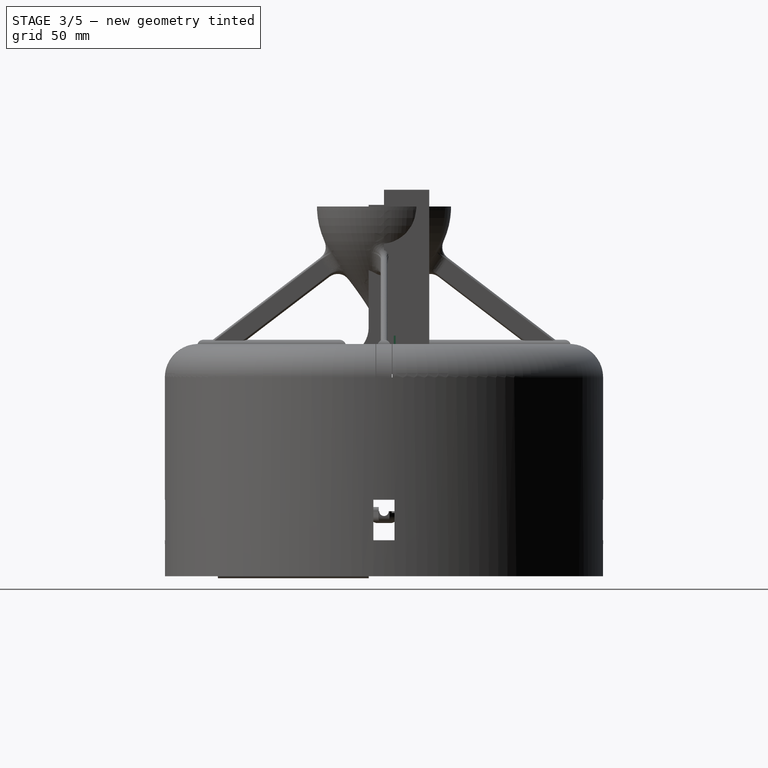
[diagram: stage 3 of 5 — right view after this stage's code; geometry added in this stage tinted green]
FEATURE [Part::Box] Box025  label="UpperCutF003"
  AttacherType = Attacher::AttachEngine3D
  Height = 4.3
  Length = 5
  Placement = pos=(27.4,0,0) rot=(0,0,1;0rad)
  Width = 12.7
FEATURE [Part::Cylinder] Cylinder024  label="BigShaft003"
  Angle = 360
  AttacherType = Attacher::AttachEngine3D
  Height = 26.8
  Placement = pos=(10.8,6.35,0) rot=(0,0,1;0rad)
  Radius = 5.8
FEATURE [Part::Cylinder] Cylinder025  label="SideAxis003"
  Angle = 360
  AttacherType = Attacher::AttachEngine3D
  Height = 26.8
  Placement = pos=(17,6.35,0) rot=(0,0,1;0rad)
  Radius = 2.5
FEATURE [Part::Cylinder] Cylinder026  label="Axis003"
  Angle = 360
  AttacherType = Attacher::AttachEngine3D
  Height = 29.4
  Placement = pos=(10.8,6.35,0) rot=(0,0,1;0rad)
  Radius = 2.3
FEATURE [Part::Cylinder] Cylinder027  label="CableR003"
  Angle = 360
  AttacherType = Attacher::AttachEngine3D
  Height = 10
  Placement = pos=(0,0,0) rot=(0,-1,0;1.5708rad)
  Radius = 0.65
FEATURE [Part::Cylinder] Cylinder028  label="CableB003"
  Angle = 360
  AttacherType = Attacher::AttachEngine3D
  Height = 10
  Placement = pos=(0,1.3,0) rot=(0,-1,0;1.5708rad)
  Radius = 0.65
FEATURE [Part::Cylinder] Cylinder029  label="CableY003"
  Angle = 360
  AttacherType = Attacher::AttachEngine3D
  Height = 10
  Placement = pos=(0,-1.3,0) rot=(0,-1,0;1.5708rad)
  Radius = 0.65
FEATURE [Part::Cylinder] Cylinder030  label="Zylinder006"
  Angle = 360
  AttacherType = Attacher::AttachEngine3D
  Height = 10
  Radius = 1
FEATURE [Part::Box] Box026  label="Würfel006"
  AttacherType = Attacher::AttachEngine3D
  Height = 10
  Length = 10
  Placement = pos=(-10,-0.55,0) rot=(0,0,1;0rad)
  Width = 1.1
FEATURE [Part::MultiFuse] Fusion029  label="DrillSlotB003"
  Placement = pos=(2.4,0,0) rot=(0,0,1;0rad)
  Shapes = -> [Box026,Cylinder030]
FEATURE [Part::Cylinder] Cylinder031  label="Zylinder007"
  Angle = 360
  AttacherType = Attacher::AttachEngine3D
  Height = 10
  Radius = 1
FEATURE [Part::Box] Box027  label="Würfel007"
  AttacherType = Attacher::AttachEngine3D
  Height = 10
  Length = 10
  Placement = pos=(-10,-0.55,0) rot=(0,0,1;0rad)
  Width = 1.1
FEATURE [Part::MultiFuse] Fusion028  label="DrillSlotF003"
  Placement = pos=(30,0,0) rot=(0,0,1;3.14159rad)
  Shapes = -> [Box027,Cylinder031]
FEATURE [Part::MultiFuse] Fusion033  label="DrillSlots003"
  Placement = pos=(0,6.35,13) rot=(0,0,1;0rad)
  Shapes = -> [Fusion028,Fusion029]
FEATURE [Sketcher::SketchObject] Sketch010
  MapMode = 5
  Placement = pos=(-0.05,-99.1,-81.8) rot=(0.57735,-0.57735,-0.57735;4.18879rad)
  Support = -> [CopyFusion012]
  sketch-geometry (13):
    g0: LineSegment [constr] StartX=-7.60224 StartY=-4.13254 StartZ=0 EndX=38.4568 EndY=-4.13254 EndZ=0
    g1: LineSegment [constr] StartX=38.4568 StartY=-4.13254 StartZ=0 EndX=38.4568 EndY=4.13254 EndZ=0
    g2: LineSegment [constr] StartX=38.4568 StartY=4.13254 StartZ=0 EndX=-7.60224 EndY=4.13254 EndZ=0
    g3: LineSegment [constr] StartX=-7.60224 StartY=4.13254 StartZ=0 EndX=-7.60224 EndY=-4.13254 EndZ=0
    g4: GeomPoint X=15.4273 Y=0 Z=0
    g5: GeomPoint X=-7.60224 Y=0 Z=0
    g6: GeomPoint X=38.4568 Y=0 Z=0
    g7: LineSegment StartX=0 StartY=-4.13254 StartZ=0 EndX=-7.94193 EndY=-3.31992 EndZ=0
    g8: LineSegment StartX=-7.94193 StartY=3.31992 StartZ=0 EndX=0 EndY=4.13254 EndZ=0
    g9: ArcOfCircle CenterX=-7.60224 CenterY=0 CenterZ=0 NormalX=0 NormalY=0 NormalZ=1 AngleXU=0 Radius=3.33725 StartAngle=1.67276 EndAngle=4.61042
    g10: LineSegment StartX=0 StartY=-4.13254 StartZ=0 EndX=38.5588 EndY=-1.48688 EndZ=0
    g11: LineSegment StartX=38.5588 StartY=1.48688 StartZ=0 EndX=0 EndY=4.13254 EndZ=0
    g12: ArcOfCircle CenterX=38.4568 CenterY=0 CenterZ=0 NormalX=0 NormalY=0 NormalZ=1 AngleXU=0 Radius=1.49038 StartAngle=4.7809 EndAngle=7.78548
  constraints (27):
    c: Coincident(g0,g1)
    c: Coincident(g1,g2)
    c: Coincident(g2,g3)
    c: Coincident(g3,g0)
    c: Horizontal(g0)
    c: Horizontal(g2)
    c: Vertical(g1)
    c: Vertical(g3)
    c: PointOnObject(g4,g-1)
    c: Symmetric(g2,g0,g4)
    c: PointOnObject(g8,g2)
    c: PointOnObject(g7,g0)
    c: Vertical(g7,g-1)
    c: Vertical(g8,g-1)
    c: PointOnObject(g5,g3)
    c: PointOnObject(g6,g1)
    c: Horizontal(g5,g-1)
    c: Horizontal(g6,g5)
    c: Tangent(g7,g9) = 1.5708
    c: Tangent(g8,g9) = 1.5708
    c: PointOnObject(g9,g-1)
    c: Coincident(g5,g9)
    c: Coincident(g10,g7)
    c: Coincident(g11,g8)
    c: Tangent(g10,g12) = -1.5708
    c: Tangent(g11,g12) = -1.5708
    c: Coincident(g6,g12)
FEATURE [PartDesign::Pad] Pad006
  Length = 90
  Length2 = 100
  Placement = pos=(-0.05,-128.5,-81.8) rot=(0.57735,-0.57735,-0.57735;4.18879rad)
  Profile = -> Sketch010
  Type = 0
FEATURE [PartDesign::Body] Body008  label="Body012"
  Group = -> [CopyFusion012,Sketch010,Pad006]
  Origin = -> Origin019
  Tip = -> Pad006
FEATURE [App::Part] Part010  label="servo004"
  Group = -> [Fusion028,Cylinder028,Cut014,Fusion030,Box024,Box025,Cylinder025,Fusion027,Fusion031,Cut015,Fusion032,Box026,Box027,Fusion033,Box023,Cylinder024,Cylinder031,Cut012,Cylinder030,Cylinder029,Box022,Cylinder026,Cut013,Cylinder027,Box021,Fusion029,Fusion034,Body008]
  License = CC BY 3.0
  LicenseURL = http://creativecommons.org/licenses/by/3.0/
  Origin = -> Origin018
  Placement = pos=(0,0,0) rot=(0,0,1;3.14159rad)
FEATURE [PartDesign::ShapeBinder] CopyFusion013
  Placement = pos=(-0.05,-128.5,-81.8) rot=(0.57735,-0.57735,-0.57735;4.18879rad)
  TraceSupport = false
FEATURE [Part::Box] Box028  label="Body013"
  AttacherType = Attacher::AttachEngine3D
  Height = 22.5
  Length = 32.4
  Width = 12.7
FEATURE [Part::Box] Box029  label="LowerCutF004"
  AttacherType = Attacher::AttachEngine3D
  Height = 16
  Length = 5
  Placement = pos=(27.4,0,0) rot=(0,0,1;0rad)
  Width = 12.7
FEATURE [Part::Cut] Cut016
  Base = -> Box028
  Tool = -> Box029
FEATURE [Part::Box] Box030  label="LowerCutB004"
  AttacherType = Attacher::AttachEngine3D
  Height = 16
  Length = 5
  Width = 12.7
FEATURE [Part::Cut] Cut017  label="LowerBody004"
  Base = -> Cut016
  Tool = -> Box030
FEATURE [Part::Box] Box031  label="UpperCutB004"
  AttacherType = Attacher::AttachEngine3D
  Height = 4.3
  Length = 5
  Width = 12.7
FEATURE [Part::Box] Box032  label="UpperCutF004"
  AttacherType = Attacher::AttachEngine3D
  Height = 4.3
  Length = 5
  Placement = pos=(27.4,0,0) rot=(0,0,1;0rad)
  Width = 12.7
FEATURE [Part::MultiFuse] Fusion039  label="UpperCuts004"
  Placement = pos=(0,0,18.2) rot=(0,0,1;0rad)
  Shapes = -> [Box031,Box032]
FEATURE [Part::Cut] Cut018  label="BasicBody004"
  Base = -> Cut017
  Tool = -> Fusion039
FEATURE [Part::Cylinder] Cylinder032  label="BigShaft004"
  Angle = 360
  AttacherType = Attacher::AttachEngine3D
  Height = 26.8
  Placement = pos=(10.8,6.35,0) rot=(0,0,1;0rad)
  Radius = 5.8
FEATURE [Part::Cylinder] Cylinder033  label="SideAxis004"
  Angle = 360
  AttacherType = Attacher::AttachEngine3D
  Height = 26.8
  Placement = pos=(17,6.35,0) rot=(0,0,1;0rad)
  Radius = 2.5
FEATURE [Part::MultiFuse] Fusion038  label="InternalAxes004"
  Shapes = -> [Cylinder032,Cylinder033]
FEATURE [Part::Cylinder] Cylinder034  label="Axis004"
  Angle = 360
  AttacherType = Attacher::AttachEngine3D
  Height = 29.4
  Placement = pos=(10.8,6.35,0) rot=(0,0,1;0rad)
  Radius = 2.3
FEATURE [Part::MultiFuse] Fusion035  label="Axes004"
  Shapes = -> [Fusion038,Cylinder034]
FEATURE [Part::Cylinder] Cylinder035  label="CableR004"
  Angle = 360
  AttacherType = Attacher::AttachEngine3D
  Height = 10
  Placement = pos=(0,0,0) rot=(0,-1,0;1.5708rad)
  Radius = 0.65
FEATURE [Part::Cylinder] Cylinder036  label="CableB004"
  Angle = 360
  AttacherType = Attacher::AttachEngine3D
  Height = 10
  Placement = pos=(0,1.3,0) rot=(0,-1,0;1.5708rad)
  Radius = 0.65
FEATURE [Part::Cylinder] Cylinder037  label="CableY004"
  Angle = 360
  AttacherType = Attacher::AttachEngine3D
  Height = 10
  Placement = pos=(0,-1.3,0) rot=(0,-1,0;1.5708rad)
  Radius = 0.65
FEATURE [Part::MultiFuse] Fusion040  label="Cables004"
  Placement = pos=(7,6.35,4.65) rot=(0,0,1;0rad)
  Shapes = -> [Cylinder037,Cylinder035,Cylinder036]
FEATURE [Part::MultiFuse] Fusion041  label="DrillSlots004"
  Placement = pos=(0,6.35,13) rot=(0,0,1;0rad)
  Shapes = -> [Fusion036,Fusion037]
FEATURE [Part::Cut] Cut019  label="CutBody004"
  Base = -> Cut018
  Tool = -> Fusion041
FEATURE [Part::MultiFuse] Fusion042  label="SG92R004"
  Placement = pos=(6.3,-128.5,-71) rot=(0.57735,-0.57735,-0.57735;4.18879rad)
  Shapes = -> [Fusion035,Fusion040,Cut019]
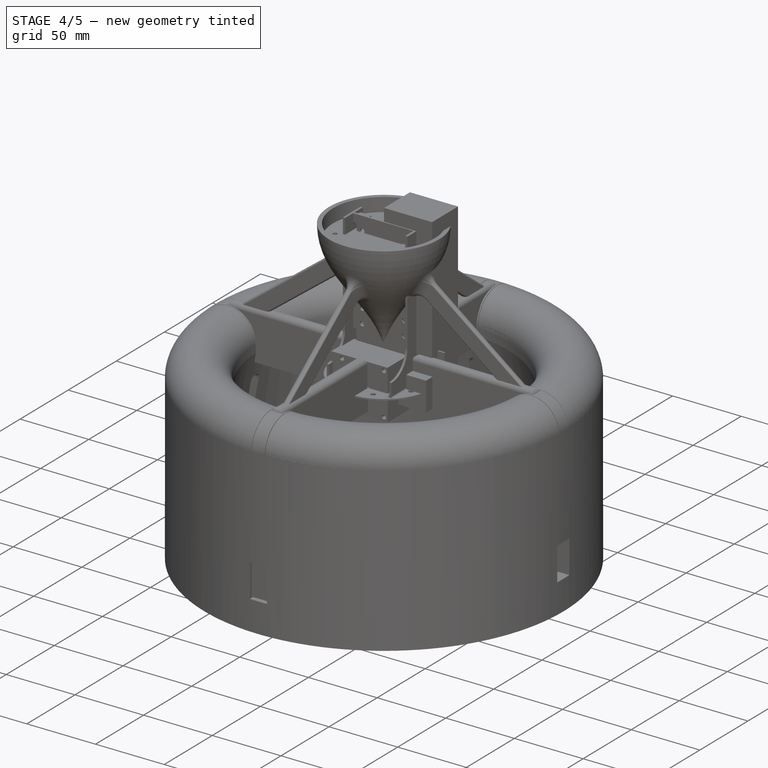
[diagram: stage 4 of 5 — iso view after this stage's code; geometry added in this stage tinted green]
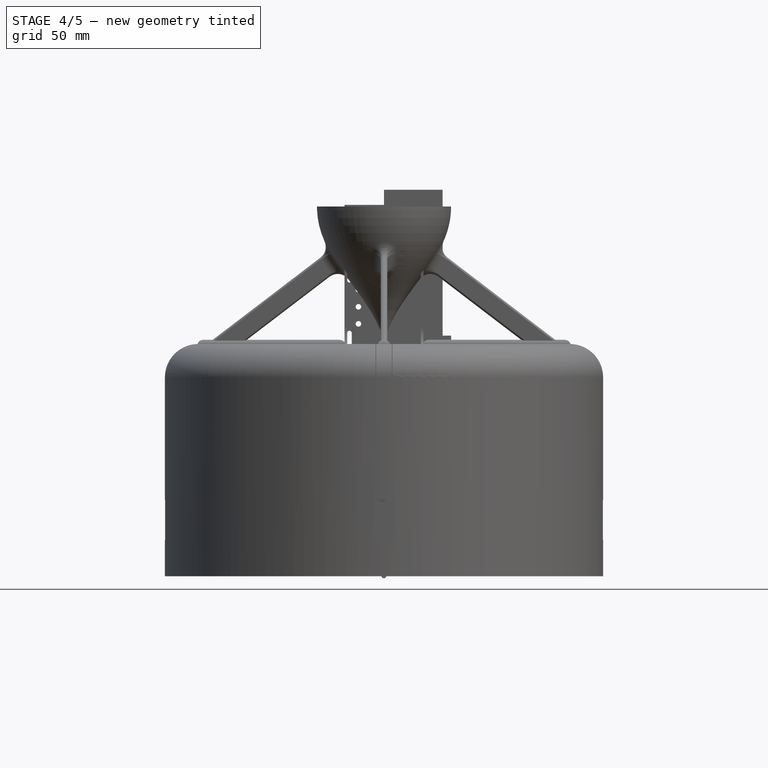
[diagram: stage 4 of 5 — front view after this stage's code; geometry added in this stage tinted green]
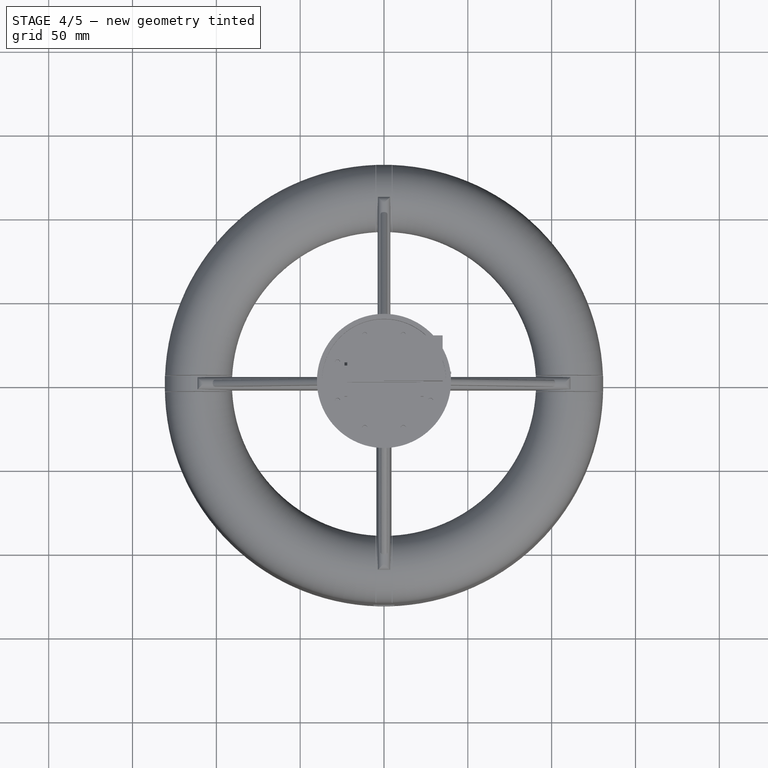
[diagram: stage 4 of 5 — top view after this stage's code; geometry added in this stage tinted green]
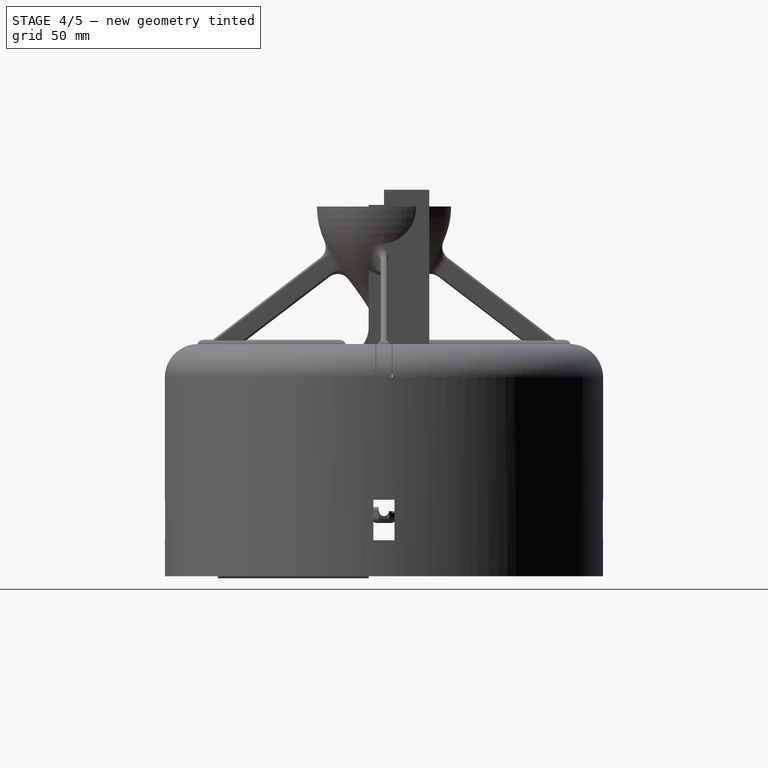
[diagram: stage 4 of 5 — right view after this stage's code; geometry added in this stage tinted green]
FEATURE [PartDesign::ShapeBinder] CopyFusion011
  Placement = pos=(-0.05,-128.5,-81.8) rot=(0.57735,-0.57735,-0.57735;4.18879rad)
  TraceSupport = false
FEATURE [Part::Box] Box014  label="Body009"
  AttacherType = Attacher::AttachEngine3D
  Height = 22.5
  Length = 32.4
  Width = 12.7
FEATURE [Part::Box] Box015  label="LowerCutF002"
  AttacherType = Attacher::AttachEngine3D
  Height = 16
  Length = 5
  Placement = pos=(27.4,0,0) rot=(0,0,1;0rad)
  Width = 12.7
FEATURE [Part::Cut] Cut008
  Base = -> Box014
  Tool = -> Box015
FEATURE [Part::Box] Box016  label="LowerCutB002"
  AttacherType = Attacher::AttachEngine3D
  Height = 16
  Length = 5
  Width = 12.7
FEATURE [Part::Box] Box017  label="UpperCutB002"
  AttacherType = Attacher::AttachEngine3D
  Height = 4.3
  Length = 5
  Width = 12.7
FEATURE [Part::Box] Box018  label="UpperCutF002"
  AttacherType = Attacher::AttachEngine3D
  Height = 4.3
  Length = 5
  Placement = pos=(27.4,0,0) rot=(0,0,1;0rad)
  Width = 12.7
FEATURE [Part::MultiFuse] Fusion023  label="UpperCuts002"
  Placement = pos=(0,0,18.2) rot=(0,0,1;0rad)
  Shapes = -> [Box017,Box018]
FEATURE [Part::Cylinder] Cylinder016  label="BigShaft002"
  Angle = 360
  AttacherType = Attacher::AttachEngine3D
  Height = 26.8
  Placement = pos=(10.8,6.35,0) rot=(0,0,1;0rad)
  Radius = 5.8
FEATURE [Part::Cylinder] Cylinder017  label="SideAxis002"
  Angle = 360
  AttacherType = Attacher::AttachEngine3D
  Height = 26.8
  Placement = pos=(17,6.35,0) rot=(0,0,1;0rad)
  Radius = 2.5
FEATURE [Part::Cylinder] Cylinder018  label="Axis002"
  Angle = 360
  AttacherType = Attacher::AttachEngine3D
  Height = 29.4
  Placement = pos=(10.8,6.35,0) rot=(0,0,1;0rad)
  Radius = 2.3
FEATURE [Part::Cylinder] Cylinder019  label="CableR002"
  Angle = 360
  AttacherType = Attacher::AttachEngine3D
  Height = 10
  Placement = pos=(0,0,0) rot=(0,-1,0;1.5708rad)
  Radius = 0.65
FEATURE [Part::Cylinder] Cylinder020  label="CableB002"
  Angle = 360
  AttacherType = Attacher::AttachEngine3D
  Height = 10
  Placement = pos=(0,1.3,0) rot=(0,-1,0;1.5708rad)
  Radius = 0.65
FEATURE [Part::Cylinder] Cylinder021  label="CableY002"
  Angle = 360
  AttacherType = Attacher::AttachEngine3D
  Height = 10
  Placement = pos=(0,-1.3,0) rot=(0,-1,0;1.5708rad)
  Radius = 0.65
FEATURE [Part::MultiFuse] Fusion024  label="Cables002"
  Placement = pos=(7,6.35,4.65) rot=(0,0,1;0rad)
  Shapes = -> [Cylinder021,Cylinder019,Cylinder020]
FEATURE [Part::Cylinder] Cylinder022  label="Zylinder004"
  Angle = 360
  AttacherType = Attacher::AttachEngine3D
  Height = 10
  Radius = 1
FEATURE [Part::Box] Box019  label="Würfel004"
  AttacherType = Attacher::AttachEngine3D
  Height = 10
  Length = 10
  Placement = pos=(-10,-0.55,0) rot=(0,0,1;0rad)
  Width = 1.1
FEATURE [Part::MultiFuse] Fusion021  label="DrillSlotB002"
  Placement = pos=(2.4,0,0) rot=(0,0,1;0rad)
  Shapes = -> [Box019,Cylinder022]
FEATURE [Part::Cylinder] Cylinder023  label="Zylinder005"
  Angle = 360
  AttacherType = Attacher::AttachEngine3D
  Height = 10
  Radius = 1
FEATURE [Part::Box] Box020  label="Würfel005"
  AttacherType = Attacher::AttachEngine3D
  Height = 10
  Length = 10
  Placement = pos=(-10,-0.55,0) rot=(0,0,1;0rad)
  Width = 1.1
FEATURE [Part::MultiFuse] Fusion020  label="DrillSlotF002"
  Placement = pos=(30,0,0) rot=(0,0,1;3.14159rad)
  Shapes = -> [Box020,Cylinder023]
FEATURE [Part::MultiFuse] Fusion025  label="DrillSlots002"
  Placement = pos=(0,6.35,13) rot=(0,0,1;0rad)
  Shapes = -> [Fusion020,Fusion021]
FEATURE [Sketcher::SketchObject] Sketch009
  MapMode = 5
  Placement = pos=(-0.05,-99.1,-81.8) rot=(0.57735,-0.57735,-0.57735;4.18879rad)
  Support = -> [CopyFusion011]
  sketch-geometry (13):
    g0: LineSegment [constr] StartX=-7.60224 StartY=-4.13254 StartZ=0 EndX=38.4568 EndY=-4.13254 EndZ=0
    g1: LineSegment [constr] StartX=38.4568 StartY=-4.13254 StartZ=0 EndX=38.4568 EndY=4.13254 EndZ=0
    g2: LineSegment [constr] StartX=38.4568 StartY=4.13254 StartZ=0 EndX=-7.60224 EndY=4.13254 EndZ=0
    g3: LineSegment [constr] StartX=-7.60224 StartY=4.13254 StartZ=0 EndX=-7.60224 EndY=-4.13254 EndZ=0
    g4: GeomPoint X=15.4273 Y=0 Z=0
    g5: GeomPoint X=-7.60224 Y=0 Z=0
    g6: GeomPoint X=38.4568 Y=0 Z=0
    g7: LineSegment StartX=0 StartY=-4.13254 StartZ=0 EndX=-7.94193 EndY=-3.31992 EndZ=0
    g8: LineSegment StartX=-7.94193 StartY=3.31992 StartZ=0 EndX=0 EndY=4.13254 EndZ=0
    g9: ArcOfCircle CenterX=-7.60224 CenterY=0 CenterZ=0 NormalX=0 NormalY=0 NormalZ=1 AngleXU=0 Radius=3.33725 StartAngle=1.67276 EndAngle=4.61042
    g10: LineSegment StartX=0 StartY=-4.13254 StartZ=0 EndX=38.5588 EndY=-1.48688 EndZ=0
    g11: LineSegment StartX=38.5588 StartY=1.48688 StartZ=0 EndX=0 EndY=4.13254 EndZ=0
    g12: ArcOfCircle CenterX=38.4568 CenterY=0 CenterZ=0 NormalX=0 NormalY=0 NormalZ=1 AngleXU=0 Radius=1.49038 StartAngle=4.7809 EndAngle=7.78548
  constraints (27):
    c: Coincident(g0,g1)
    c: Coincident(g1,g2)
    c: Coincident(g2,g3)
    c: Coincident(g3,g0)
    c: Horizontal(g0)
    c: Horizontal(g2)
    c: Vertical(g1)
    c: Vertical(g3)
    c: PointOnObject(g4,g-1)
    c: Symmetric(g2,g0,g4)
    c: PointOnObject(g8,g2)
    c: PointOnObject(g7,g0)
    c: Vertical(g7,g-1)
    c: Vertical(g8,g-1)
    c: PointOnObject(g5,g3)
    c: PointOnObject(g6,g1)
    c: Horizontal(g5,g-1)
    c: Horizontal(g6,g5)
    c: Tangent(g7,g9) = 1.5708
    c: Tangent(g8,g9) = 1.5708
    c: PointOnObject(g9,g-1)
    c: Coincident(g5,g9)
    c: Coincident(g10,g7)
    c: Coincident(g11,g8)
    c: Tangent(g10,g12) = -1.5708
    c: Tangent(g11,g12) = -1.5708
    c: Coincident(g6,g12)
FEATURE [PartDesign::Pad] Pad005
  Length = 90
  Length2 = 100
  Placement = pos=(-0.05,-128.5,-81.8) rot=(0.57735,-0.57735,-0.57735;4.18879rad)
  Profile = -> Sketch009
  Type = 0
FEATURE [PartDesign::Body] Body007  label="Body010"
  Group = -> [CopyFusion011,Sketch009,Pad005]
  Origin = -> Origin017
  Tip = -> Pad005
FEATURE [App::Part] Part009  label="servo003"
  Group = -> [Fusion020,Cylinder020,Cut010,Fusion022,Box017,Box018,Cylinder017,Fusion019,Fusion023,Cut011,Fusion024,Box019,Box020,Fusion025,Box016,Cylinder016,Cylinder023,Cut008,Cylinder022,Cylinder021,Box015,Cylinder018,Cut009,Cylinder019,Box014,Fusion021,Fusion026,Body007]
  License = CC BY 3.0
  LicenseURL = http://creativecommons.org/licenses/by/3.0/
  Origin = -> Origin016
  Placement = pos=(0,0,0) rot=(0,0,1;1.5708rad)
FEATURE [PartDesign::ShapeBinder] CopyFusion012
  Placement = pos=(-0.05,-128.5,-81.8) rot=(0.57735,-0.57735,-0.57735;4.18879rad)
  TraceSupport = false
FEATURE [Part::Box] Box021  label="Body011"
  AttacherType = Attacher::AttachEngine3D
  Height = 22.5
  Length = 32.4
  Width = 12.7
FEATURE [Part::Box] Box022  label="LowerCutF003"
  AttacherType = Attacher::AttachEngine3D
  Height = 16
  Length = 5
  Placement = pos=(27.4,0,0) rot=(0,0,1;0rad)
  Width = 12.7
FEATURE [Part::Cut] Cut012
  Base = -> Box021
  Tool = -> Box022
FEATURE [Part::Box] Box023  label="LowerCutB003"
  AttacherType = Attacher::AttachEngine3D
  Height = 16
  Length = 5
  Width = 12.7
FEATURE [Part::Cut] Cut013  label="LowerBody003"
  Base = -> Cut012
  Tool = -> Box023
FEATURE [Part::Box] Box024  label="UpperCutB003"
  AttacherType = Attacher::AttachEngine3D
  Height = 4.3
  Length = 5
  Width = 12.7
FEATURE [Part::MultiFuse] Fusion031  label="UpperCuts003"
  Placement = pos=(0,0,18.2) rot=(0,0,1;0rad)
  Shapes = -> [Box024,Box025]
FEATURE [Part::Cut] Cut014  label="BasicBody003"
  Base = -> Cut013
  Tool = -> Fusion031
FEATURE [Part::MultiFuse] Fusion030  label="InternalAxes003"
  Shapes = -> [Cylinder024,Cylinder025]
FEATURE [Part::MultiFuse] Fusion027  label="Axes003"
  Shapes = -> [Fusion030,Cylinder026]
FEATURE [Part::MultiFuse] Fusion032  label="Cables003"
  Placement = pos=(7,6.35,4.65) rot=(0,0,1;0rad)
  Shapes = -> [Cylinder029,Cylinder027,Cylinder028]
FEATURE [Part::Cut] Cut015  label="CutBody003"
  Base = -> Cut014
  Tool = -> Fusion033
FEATURE [Part::MultiFuse] Fusion034  label="SG92R003"
  Placement = pos=(6.3,-128.5,-71) rot=(0.57735,-0.57735,-0.57735;4.18879rad)
  Shapes = -> [Fusion027,Fusion032,Cut015]
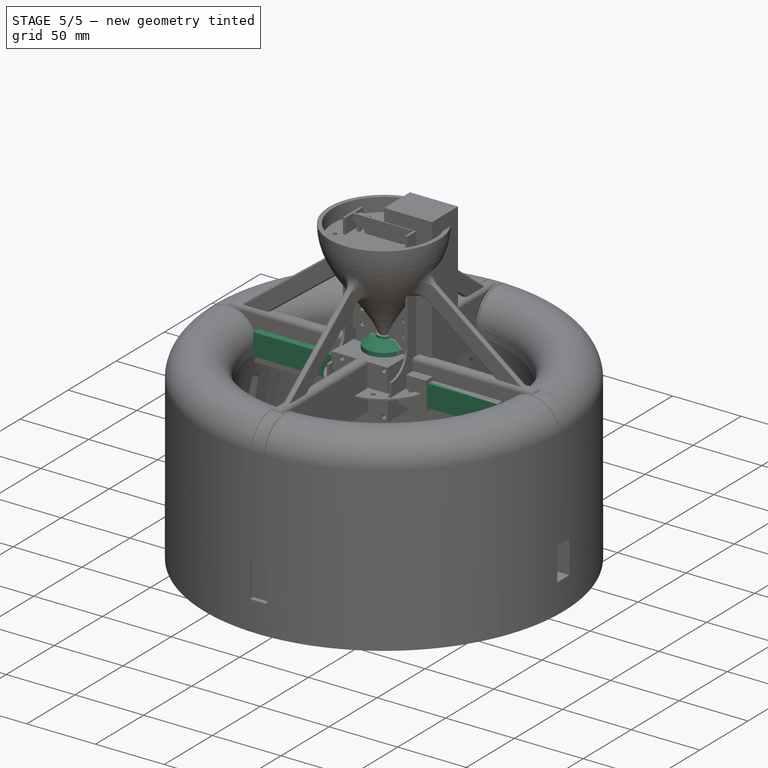
[diagram: stage 5 of 5 — iso view after this stage's code; geometry added in this stage tinted green]
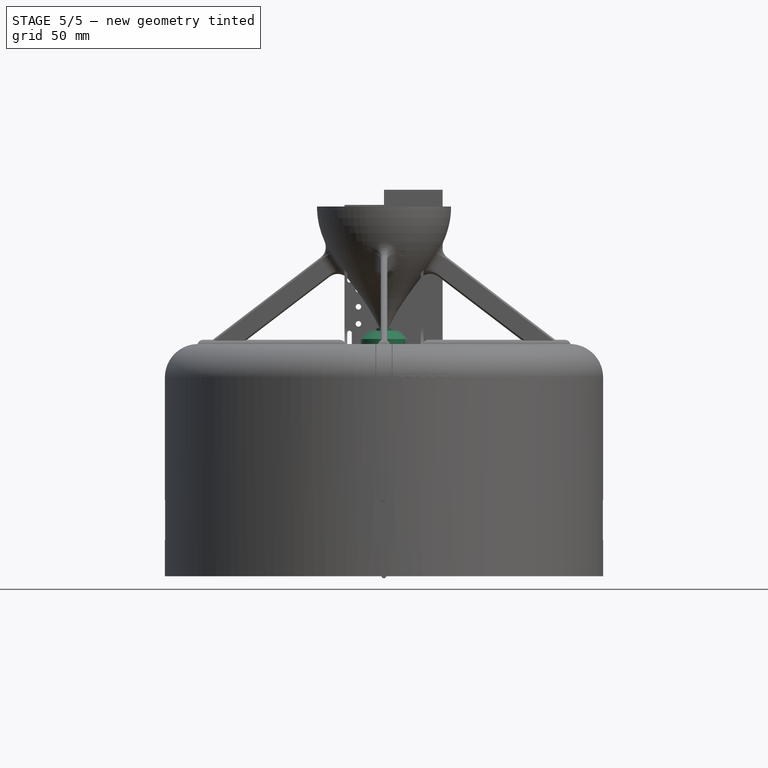
[diagram: stage 5 of 5 — front view after this stage's code; geometry added in this stage tinted green]
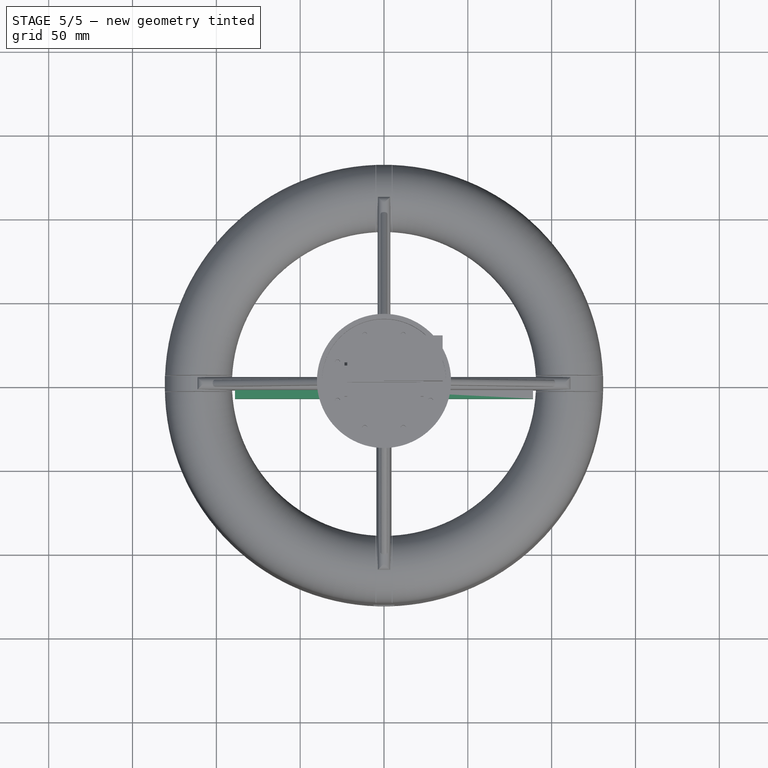
[diagram: stage 5 of 5 — top view after this stage's code; geometry added in this stage tinted green]
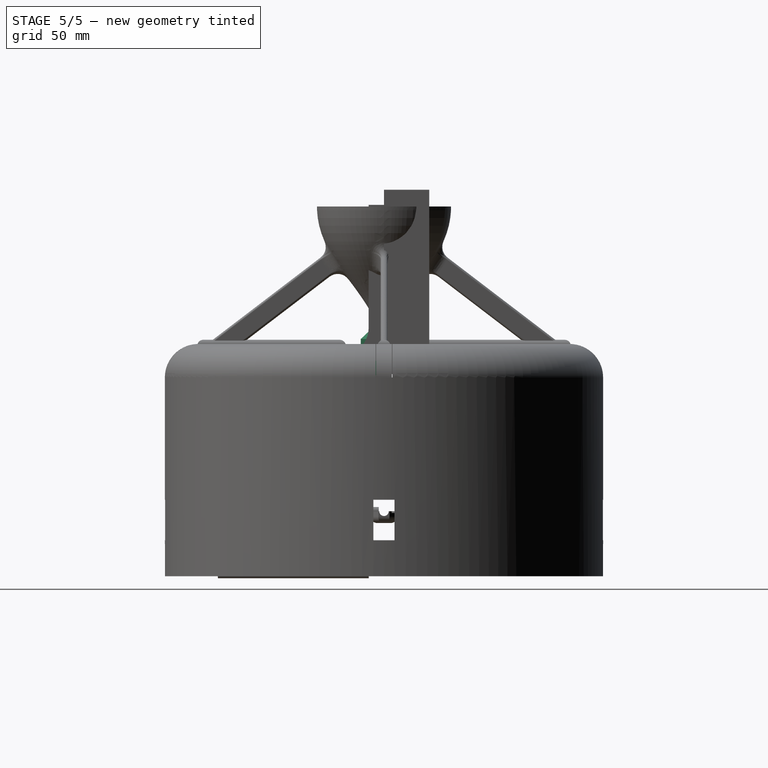
[diagram: stage 5 of 5 — right view after this stage's code; geometry added in this stage tinted green]
FEATURE [Sketcher::SketchObject] Sketch001
  MapMode = 5
  Placement = pos=(0,0,0) rot=(1,0,0;1.5708rad)
  Support = -> [XZ_Plane003]
  sketch-geometry (10):
    g0: LineSegment StartX=0 StartY=0 StartZ=0 EndX=0 EndY=38.8 EndZ=0
    g1: LineSegment StartX=0 StartY=38.8 StartZ=0 EndX=1.6 EndY=38.8 EndZ=0
    g2: LineSegment StartX=1.6 StartY=38.8 StartZ=0 EndX=1.6 EndY=27.4 EndZ=0
    g3: LineSegment StartX=1.6 StartY=27.4 StartZ=0 EndX=4.6 EndY=27.4 EndZ=0
    g4: LineSegment StartX=4.6 StartY=27.4 StartZ=0 EndX=4.6 EndY=25.9 EndZ=0
    g5: LineSegment StartX=4.6 StartY=25.9 StartZ=0 EndX=8.6 EndY=25.9 EndZ=0
    g6: LineSegment StartX=8.6 StartY=25.9 StartZ=0 EndX=13.85 EndY=21 EndZ=0
    g7: LineSegment StartX=13.85 StartY=21 StartZ=0 EndX=13.85 EndY=5 EndZ=0
    g8: LineSegment StartX=13.85 StartY=5 StartZ=0 EndX=12.5 EndY=0 EndZ=0
    g9: LineSegment StartX=12.5 StartY=0 StartZ=0 EndX=0 EndY=0 EndZ=0
  constraints (30):
    c: Coincident(g0,g-1)
    c: PointOnObject(g0,g-2)
    c: Coincident(g1,g0)
    c: Horizontal(g1)
    c: Coincident(g2,g1)
    c: Vertical(g2)
    c: Coincident(g3,g2)
    c: Horizontal(g3)
    c: Coincident(g4,g3)
    c: Vertical(g4)
    c: Coincident(g5,g4)
    c: Horizontal(g5)
    c: Coincident(g6,g5)
    c: Coincident(g7,g6)
    c: Vertical(g7)
    c: Coincident(g8,g7)
    c: PointOnObject(g8,g-1)
    c: Coincident(g9,g8)
    c: Horizontal(g9)
    c: DistanceX(g-1,g7) = 13.85
    c: DistanceX(g-1,g8) = 12.5
    c: DistanceY(g8,g7) = 5
    c: DistanceY(g-1,g0) = 38.8
    c: DistanceY(g2,g1) = 11.4
    c: DistanceY(g4,g3) = 1.5
    c: DistanceX(g4,g5) = 4
    c: DistanceY(g7,g6) = 16
    c: DistanceX(g0,g1) = 1.6
    c: DistanceX(g2,g3) = 3
    c: Coincident(g9,g-1)
FEATURE [PartDesign::Revolution] Revolution001
  Angle = 360
  Axis = (0,-1.035e-13,1)
  Base = (0,0,0)
  Placement = pos=(0,0,0) rot=(1,0,0;1.5708rad)
  Profile = -> Sketch001
  ReferenceAxis = -> Sketch001 [V_Axis]
  Reversed = true
FEATURE [PartDesign::Body] Body002
  Group = -> [Sketch002,Pad]
  Origin = -> Origin005
  Tip = -> Pad
FEATURE [App::Part] Part002  label="motor_bracket"
  Group = -> [Body002]
  License = CC BY 3.0
  LicenseURL = http://creativecommons.org/licenses/by/3.0/
  Origin = -> Origin004
FEATURE [Sketcher::SketchObject] Sketch004
  MapMode = 5
  Placement = pos=(0,0,0) rot=(1,0,0;1.5708rad)
  Support = -> [XZ_Plane009]
  sketch-geometry (4):
    g0: LineSegment StartX=-88.9 StartY=-8 StartZ=0 EndX=88.9 EndY=-8 EndZ=0
    g1: LineSegment StartX=88.9 StartY=-8 StartZ=0 EndX=88.9 EndY=8 EndZ=0
    g2: LineSegment StartX=88.9 StartY=8 StartZ=0 EndX=-88.9 EndY=8 EndZ=0
    g3: LineSegment StartX=-88.9 StartY=8 StartZ=0 EndX=-88.9 EndY=-8 EndZ=0
  constraints (11):
    c: Coincident(g0,g1)
    c: Coincident(g1,g2)
    c: Coincident(g2,g3)
    c: Coincident(g3,g0)
    c: Horizontal(g0)
    c: Horizontal(g2)
    c: Vertical(g1)
    c: Vertical(g3)
    c: Symmetric(g0,g1,g-1)
    c: DistanceX(g2,g2) = 177.8
    c: DistanceY(g3,g3) = 16
FEATURE [PartDesign::Pad] Pad002
  Length = 9
  Length2 = 100
  Placement = pos=(0,0,0) rot=(1,0,0;1.5708rad)
  Profile = -> Sketch004
  Type = 0
FEATURE [PartDesign::Body] Body004
  Group = -> [Sketch004,Pad002]
  Origin = -> Origin009
  Placement = pos=(0,0,-8) rot=(1,0,0;1.5708rad)
  Tip = -> Pad002
FEATURE [App::Part] Part004  label="prop_dummy"
  Group = -> [Body004]
  License = CC BY 3.0
  LicenseURL = http://creativecommons.org/licenses/by/3.0/
  Origin = -> Origin008
  Placement = pos=(0,0,53) rot=(0,0,1;0rad)
FEATURE [App::Part] Part005  label="motor_and_propeller"
  Group = -> [Part004,Part002,Part001]
  License = CC BY 3.0
  LicenseURL = http://creativecommons.org/licenses/by/3.0/
  Origin = -> Origin010
  Placement = pos=(0,0,-45.5) rot=(0,0,1;0rad)
FEATURE [Part::Box] Box  label="Body005"
  AttacherType = Attacher::AttachEngine3D
  Height = 22.5
  Length = 32.4
  Width = 12.7
FEATURE [Part::Box] Box001  label="LowerCutB"
  AttacherType = Attacher::AttachEngine3D
  Height = 16
  Length = 5
  Width = 12.7
FEATURE [Part::Box] Box002  label="LowerCutF"
  AttacherType = Attacher::AttachEngine3D
  Height = 16
  Length = 5
  Placement = pos=(27.4,0,0) rot=(0,0,1;0rad)
  Width = 12.7
FEATURE [Part::Cut] Cut
  Base = -> Box
  Tool = -> Box002
FEATURE [Part::Cut] Cut001  label="LowerBody"
  Base = -> Cut
  Tool = -> Box001
FEATURE [Part::Box] Box003  label="UpperCutB"
  AttacherType = Attacher::AttachEngine3D
  Height = 4.3
  Length = 5
  Width = 12.7
FEATURE [Part::Box] Box004  label="UpperCutF"
  AttacherType = Attacher::AttachEngine3D
  Height = 4.3
  Length = 5
  Placement = pos=(27.4,0,0) rot=(0,0,1;0rad)
  Width = 12.7
FEATURE [Part::MultiFuse] Fusion  label="UpperCuts"
  Placement = pos=(0,0,18.2) rot=(0,0,1;0rad)
  Shapes = -> [Box003,Box004]
FEATURE [Part::Cut] Cut002  label="BasicBody"
  Base = -> Cut001
  Tool = -> Fusion
FEATURE [Part::Cylinder] Cylinder  label="BigShaft"
  Angle = 360
  AttacherType = Attacher::AttachEngine3D
  Height = 26.8
  Placement = pos=(10.8,6.35,0) rot=(0,0,1;0rad)
  Radius = 5.8
FEATURE [Part::Cylinder] Cylinder001  label="Axis"
  Angle = 360
  AttacherType = Attacher::AttachEngine3D
  Height = 29.4
  Placement = pos=(10.8,6.35,0) rot=(0,0,1;0rad)
  Radius = 2.3
FEATURE [Part::Cylinder] Cylinder002  label="SideAxis"
  Angle = 360
  AttacherType = Attacher::AttachEngine3D
  Height = 26.8
  Placement = pos=(17,6.35,0) rot=(0,0,1;0rad)
  Radius = 2.5
FEATURE [Part::Cylinder] Cylinder003  label="CableR"
  Angle = 360
  AttacherType = Attacher::AttachEngine3D
  Height = 10
  Placement = pos=(0,0,0) rot=(0,-1,0;1.5708rad)
  Radius = 0.65
FEATURE [Part::Cylinder] Cylinder004  label="CableB"
  Angle = 360
  AttacherType = Attacher::AttachEngine3D
  Height = 10
  Placement = pos=(0,1.3,0) rot=(0,-1,0;1.5708rad)
  Radius = 0.65
FEATURE [Part::Cylinder] Cylinder005  label="CableY"
  Angle = 360
  AttacherType = Attacher::AttachEngine3D
  Height = 10
  Placement = pos=(0,-1.3,0) rot=(0,-1,0;1.5708rad)
  Radius = 0.65
FEATURE [Part::MultiFuse] Fusion003  label="Cables"
  Placement = pos=(7,6.35,4.65) rot=(0,0,1;0rad)
  Shapes = -> [Cylinder005,Cylinder003,Cylinder004]
FEATURE [Part::MultiFuse] Fusion004  label="InternalAxes"
  Shapes = -> [Cylinder,Cylinder002]
FEATURE [Part::MultiFuse] Fusion005  label="Axes"
  Shapes = -> [Fusion004,Cylinder001]
FEATURE [Part::Cylinder] Cylinder006  label="Zylinder"
  Angle = 360
  AttacherType = Attacher::AttachEngine3D
  Height = 10
  Radius = 1
FEATURE [Part::Box] Box005  label="Würfel"
  AttacherType = Attacher::AttachEngine3D
  Height = 10
  Length = 10
  Placement = pos=(-10,-0.55,0) rot=(0,0,1;0rad)
  Width = 1.1
FEATURE [Part::MultiFuse] Fusion007  label="DrillSlotB"
  Placement = pos=(2.4,0,0) rot=(0,0,1;0rad)
  Shapes = -> [Box005,Cylinder006]
FEATURE [Part::Cylinder] Cylinder007  label="Zylinder001"
  Angle = 360
  AttacherType = Attacher::AttachEngine3D
  Height = 10
  Radius = 1
FEATURE [Part::Box] Box006  label="Würfel001"
  AttacherType = Attacher::AttachEngine3D
  Height = 10
  Length = 10
  Placement = pos=(-10,-0.55,0) rot=(0,0,1;0rad)
  Width = 1.1
FEATURE [Part::MultiFuse] Fusion008  label="DrillSlotF"
  Placement = pos=(30,0,0) rot=(0,0,1;3.14159rad)
  Shapes = -> [Box006,Cylinder007]
FEATURE [Part::MultiFuse] Fusion009  label="DrillSlots"
  Placement = pos=(0,6.35,13) rot=(0,0,1;0rad)
  Shapes = -> [Fusion008,Fusion007]
FEATURE [Part::Cut] Cut003  label="CutBody"
  Base = -> Cut002
  Tool = -> Fusion009
FEATURE [Part::MultiFuse] Fusion010  label="SG92R"
  Placement = pos=(6.3,-128.5,-71) rot=(0.57735,-0.57735,-0.57735;4.18879rad)
  Shapes = -> [Fusion005,Fusion003,Cut003]
FEATURE [Part::Cut] Cut009  label="LowerBody002"
  Base = -> Cut008
  Tool = -> Box016
FEATURE [Part::Cut] Cut010  label="BasicBody002"
  Base = -> Cut009
  Tool = -> Fusion023
FEATURE [Part::MultiFuse] Fusion022  label="InternalAxes002"
  Shapes = -> [Cylinder016,Cylinder017]
FEATURE [Part::MultiFuse] Fusion019  label="Axes002"
  Shapes = -> [Fusion022,Cylinder018]
FEATURE [Part::Cut] Cut011  label="CutBody002"
  Base = -> Cut010
  Tool = -> Fusion025
FEATURE [Part::MultiFuse] Fusion026  label="SG92R002"
  Placement = pos=(6.3,-128.5,-71) rot=(0.57735,-0.57735,-0.57735;4.18879rad)
  Shapes = -> [Fusion019,Fusion024,Cut011]
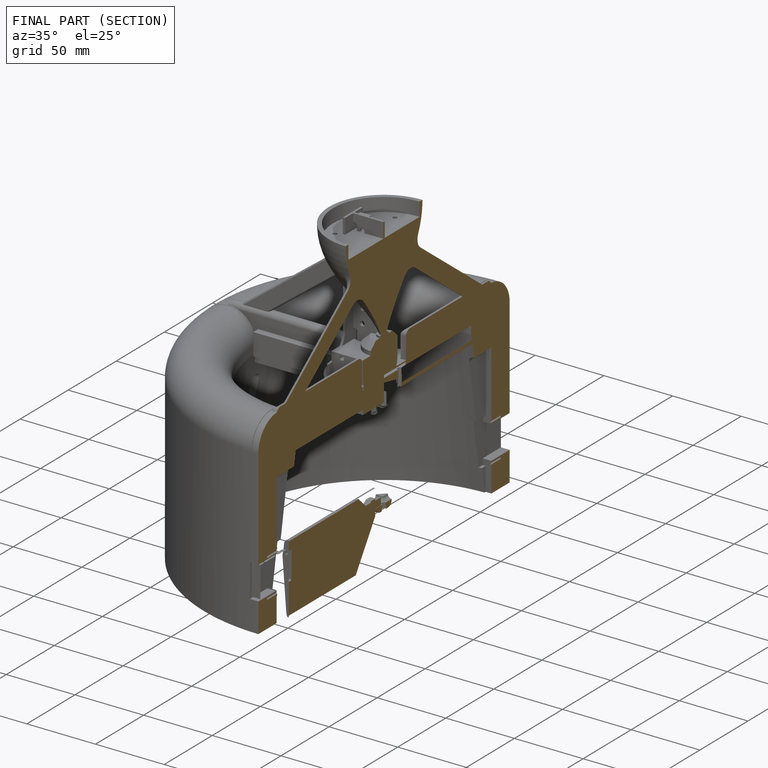
[diagram: finished part — half-section view (interior)]
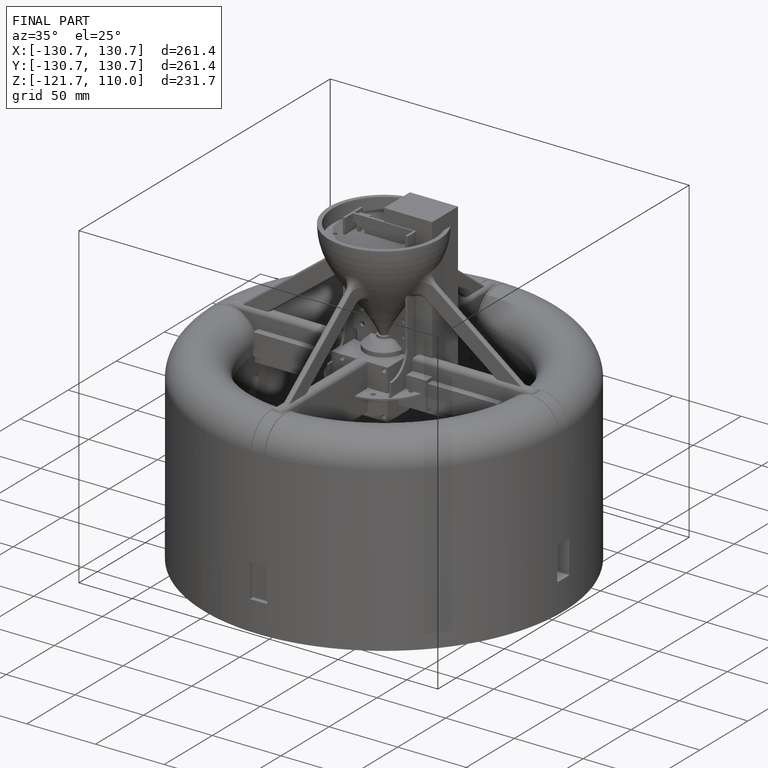
[diagram: finished part — iso view with bounding-box wireframe]
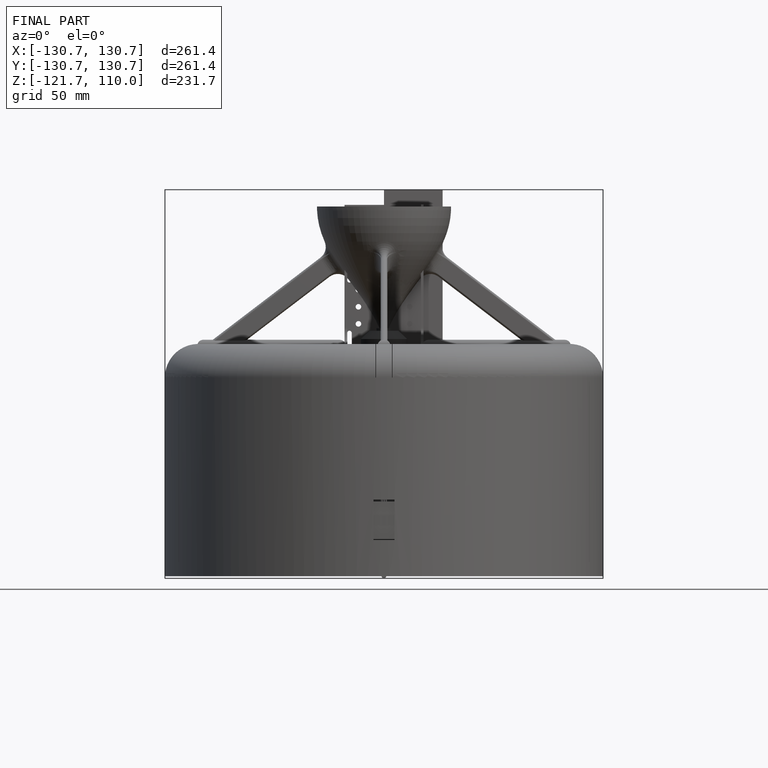
[diagram: finished part — front view with bounding-box wireframe]
